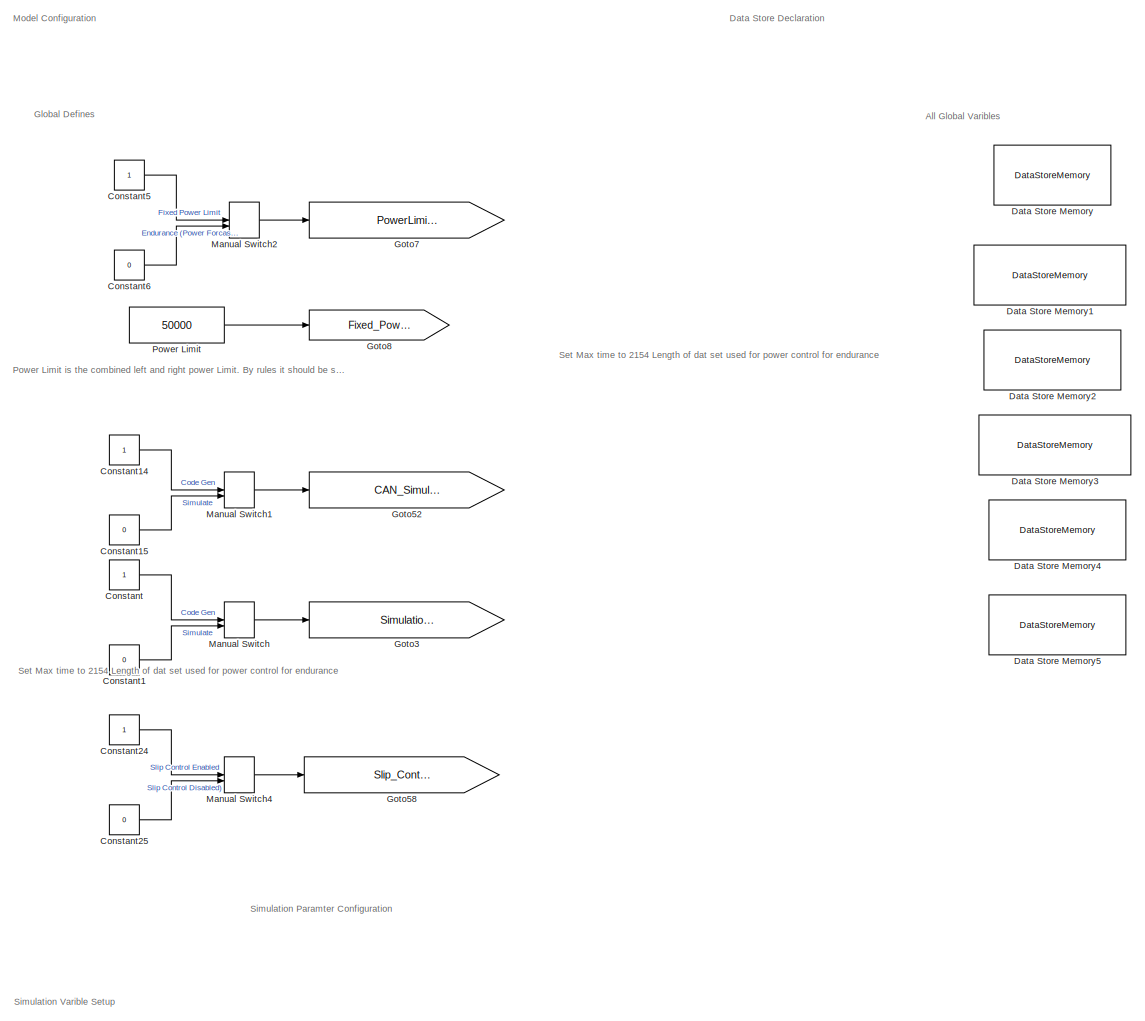
[diagram: root canvas - part 1/13, top left region]
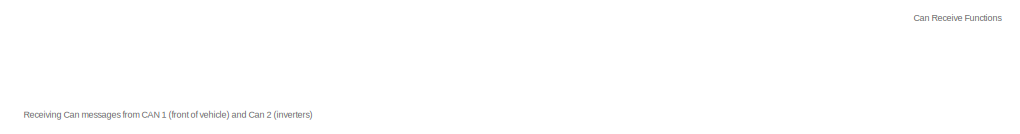
[diagram: root canvas - part 2/13, top center region]
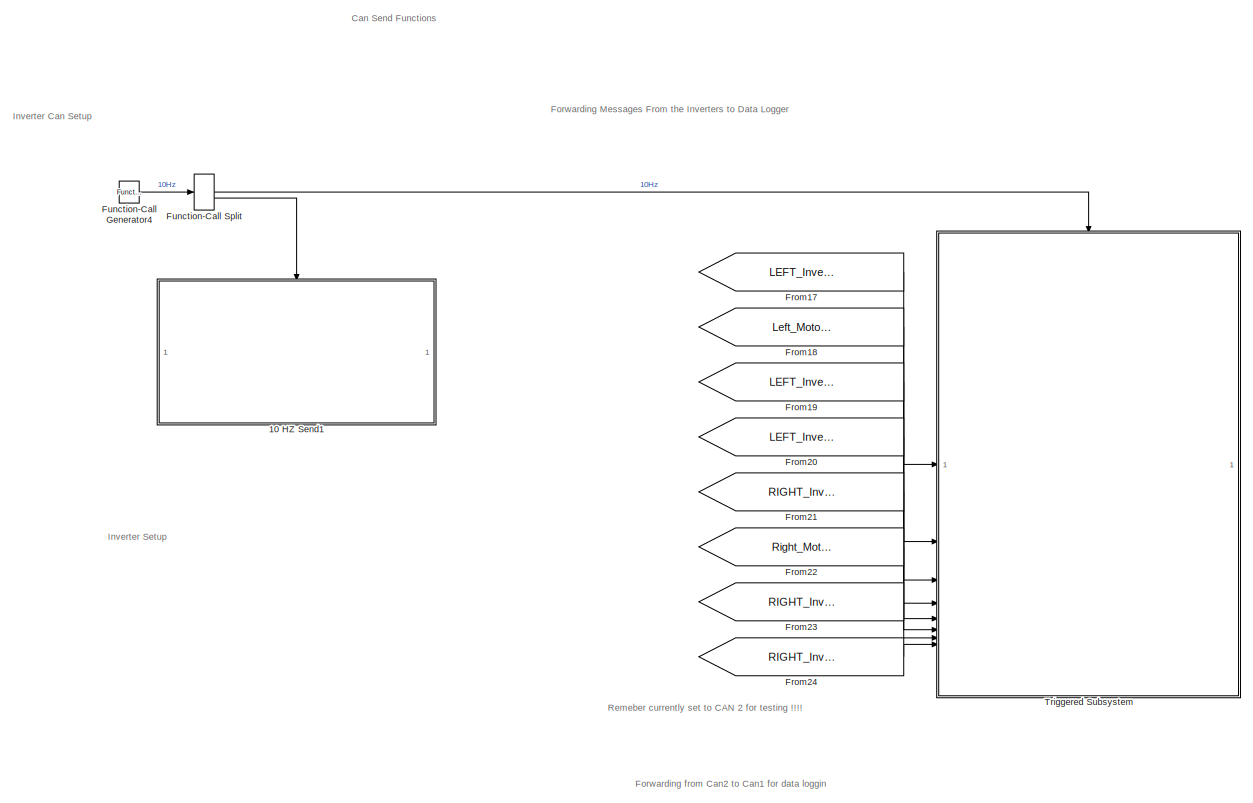
[diagram: root canvas - part 3/13, top right region]
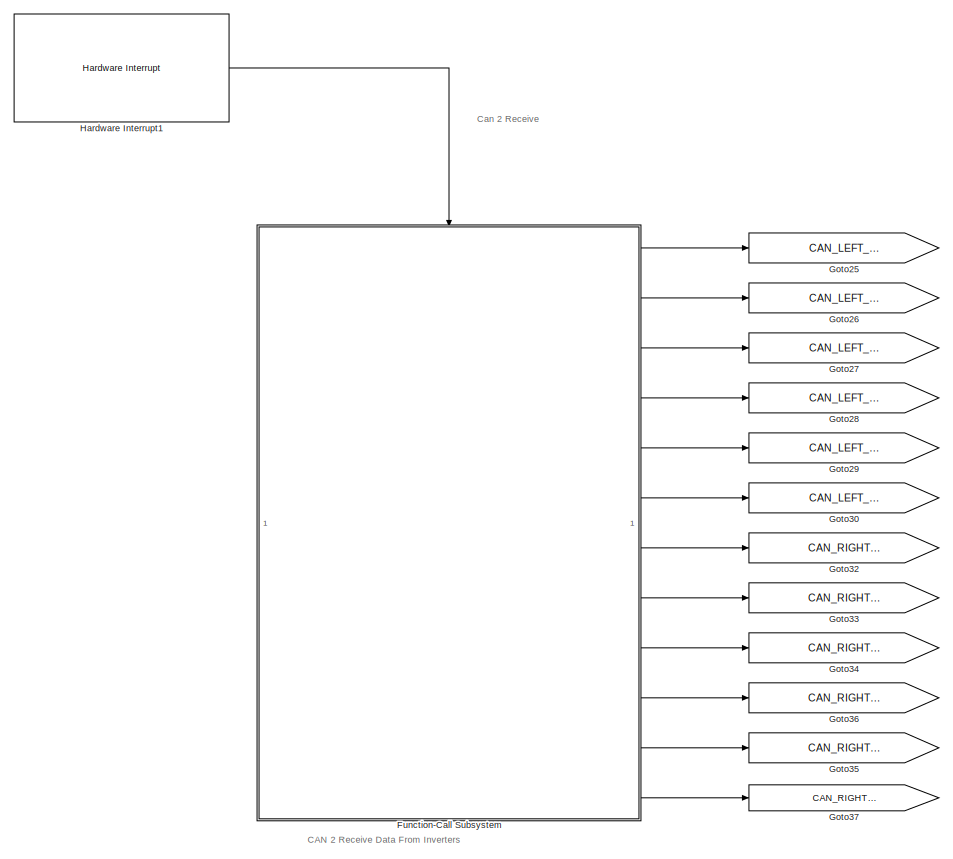
[diagram: root canvas - part 4/13, top center region]
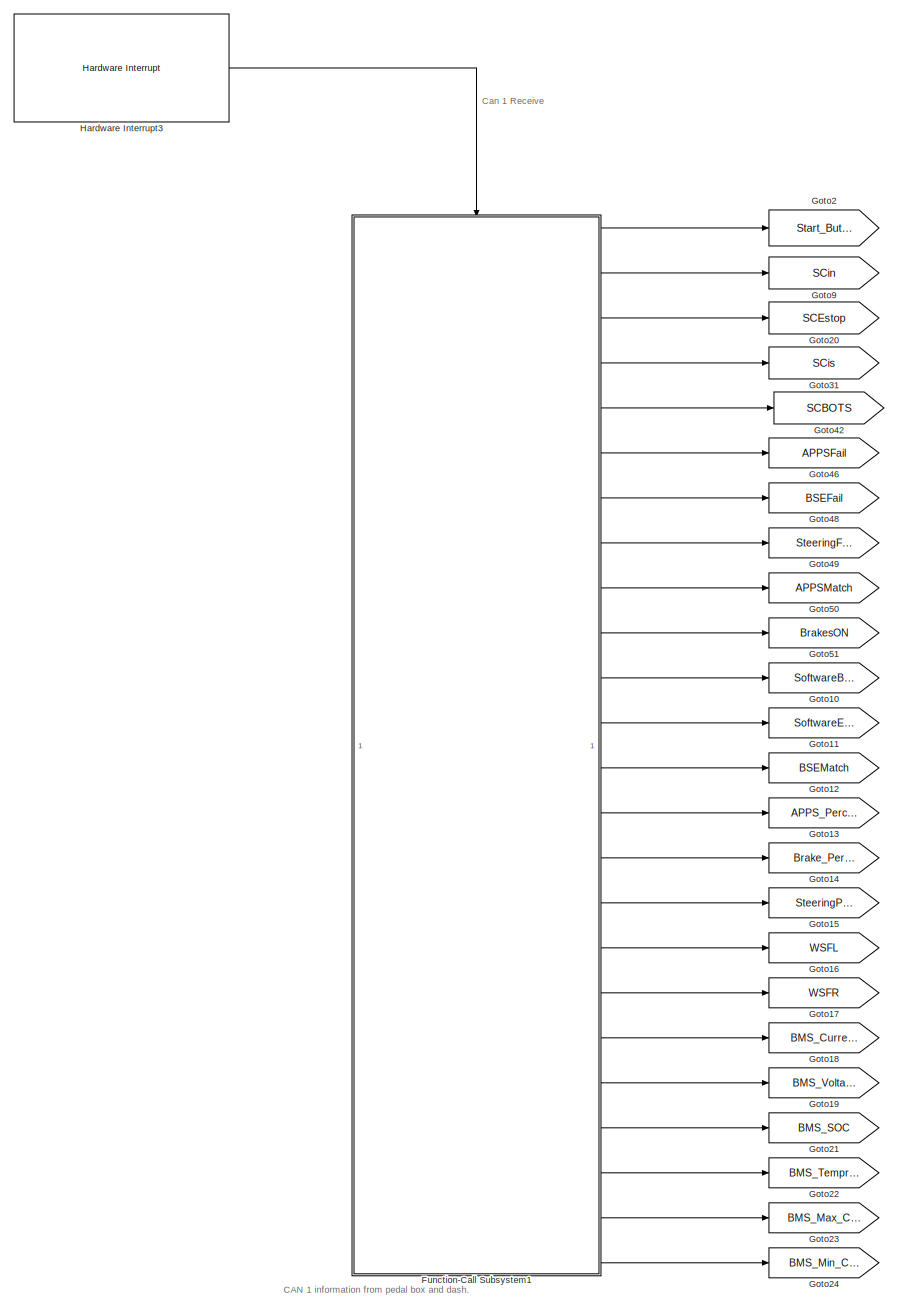
[diagram: root canvas - part 5/13, top center region]
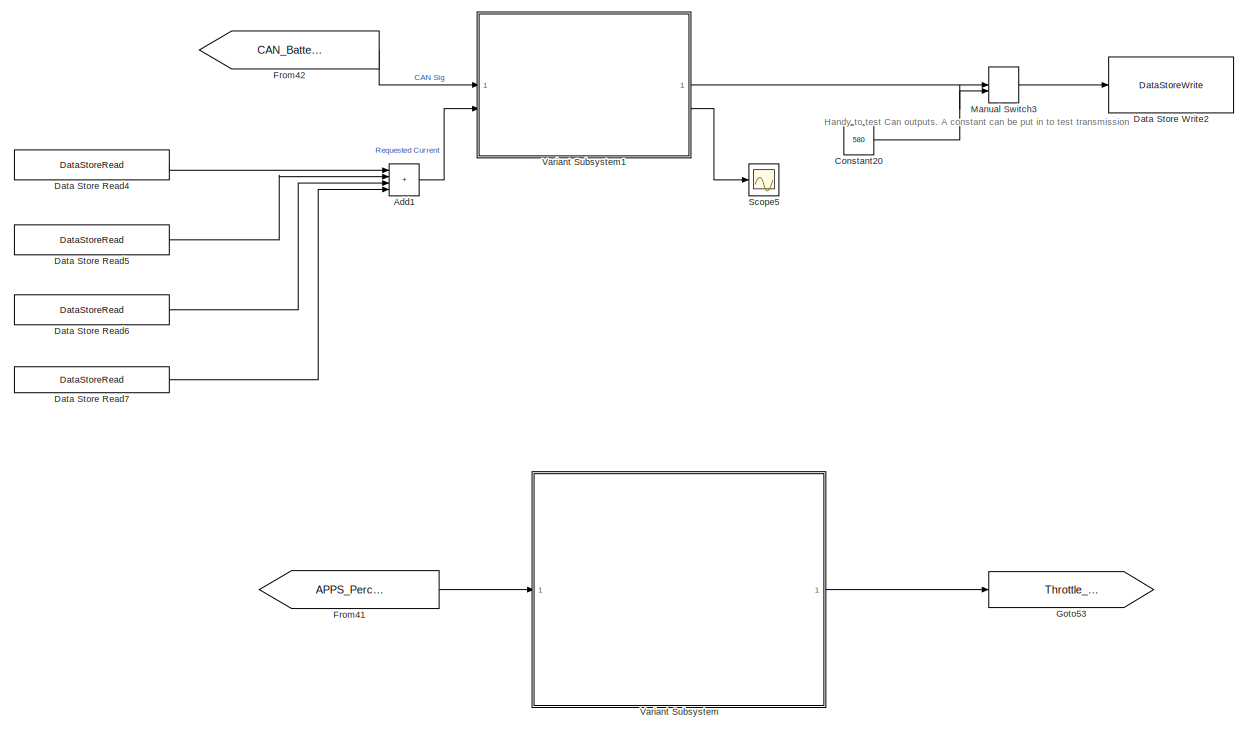
[diagram: root canvas - part 6/13, middle left region]
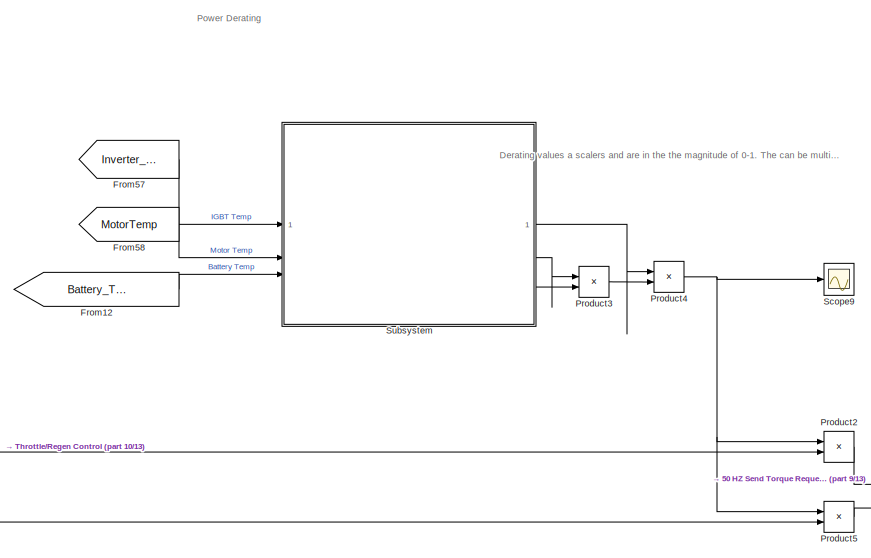
[diagram: root canvas - part 7/13, middle right region]
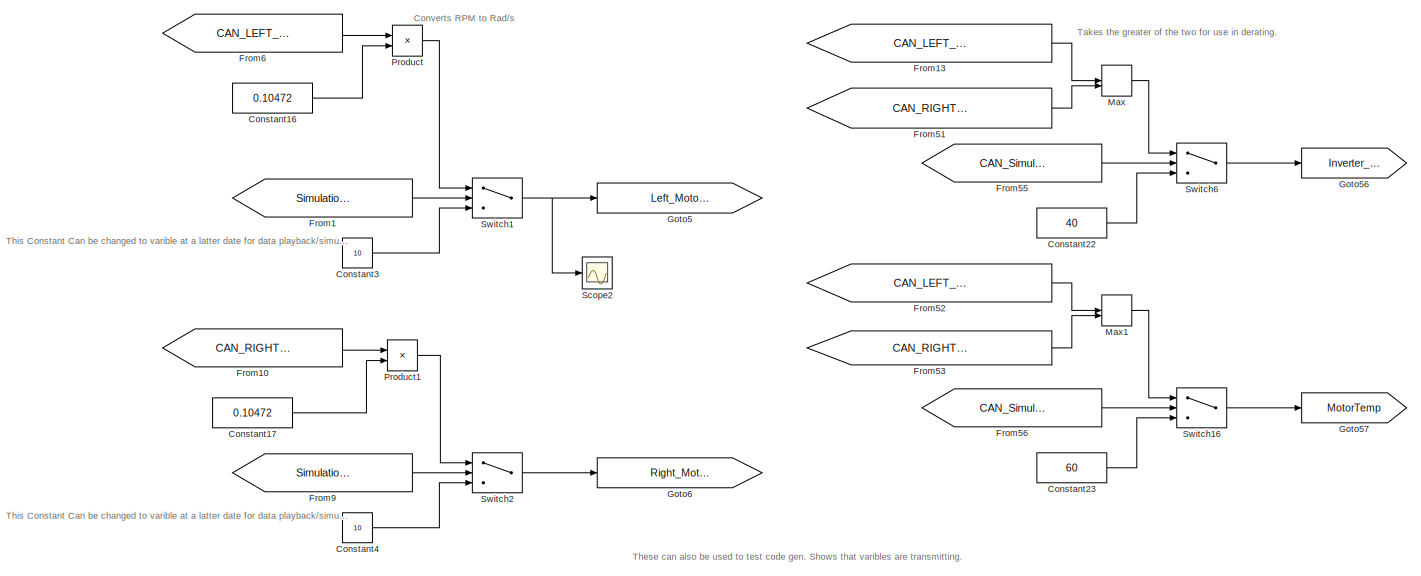
[diagram: root canvas - part 8/13, middle left region]
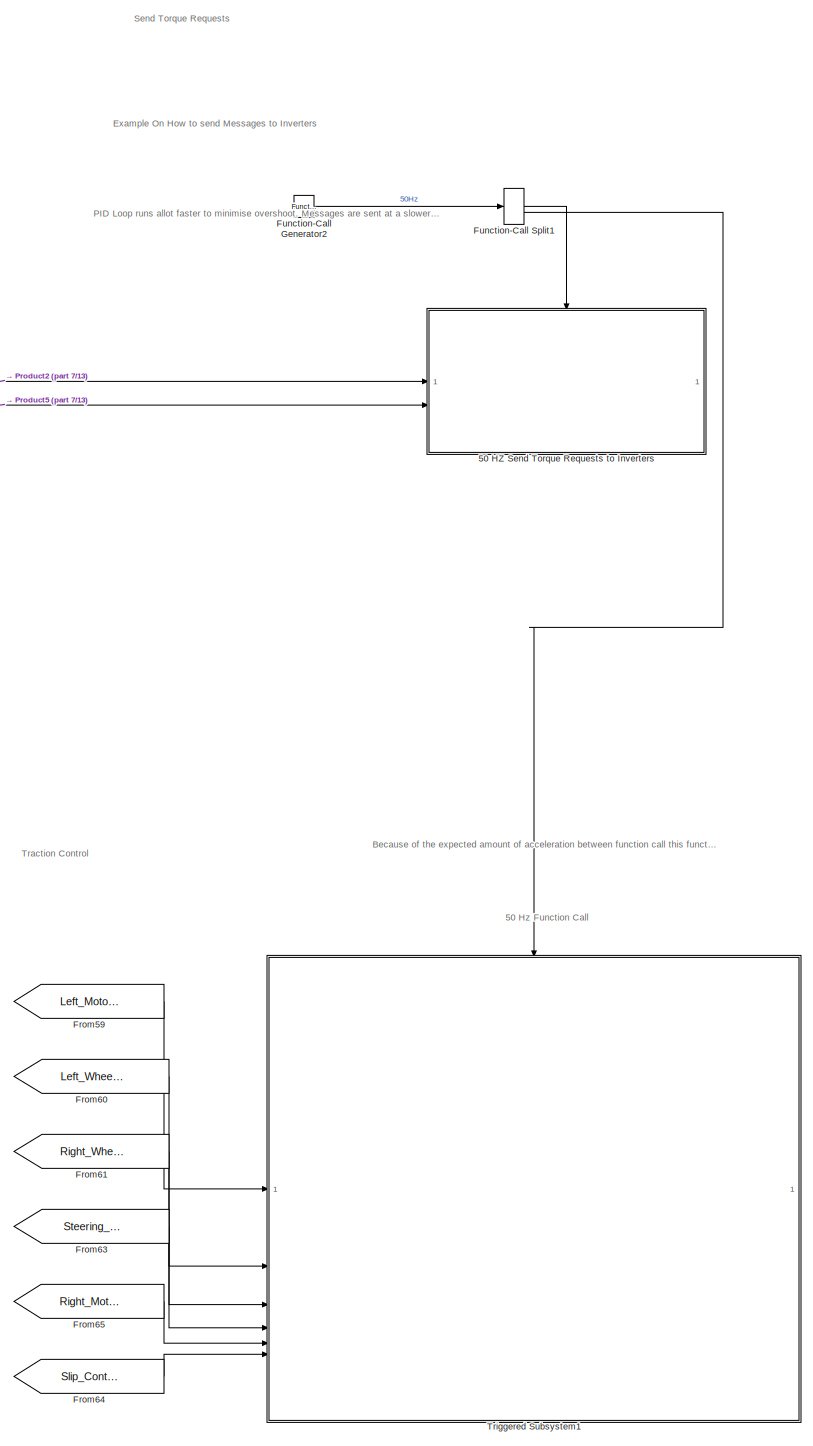
[diagram: root canvas - part 9/13, bottom right region]
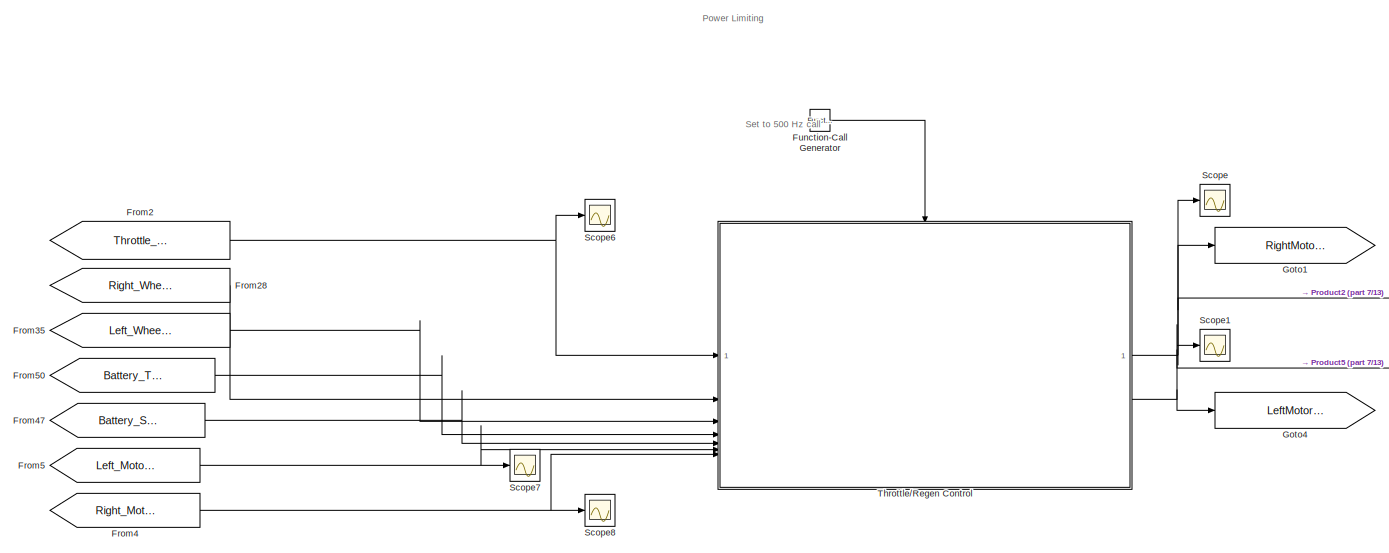
[diagram: root canvas - part 10/13, central region]
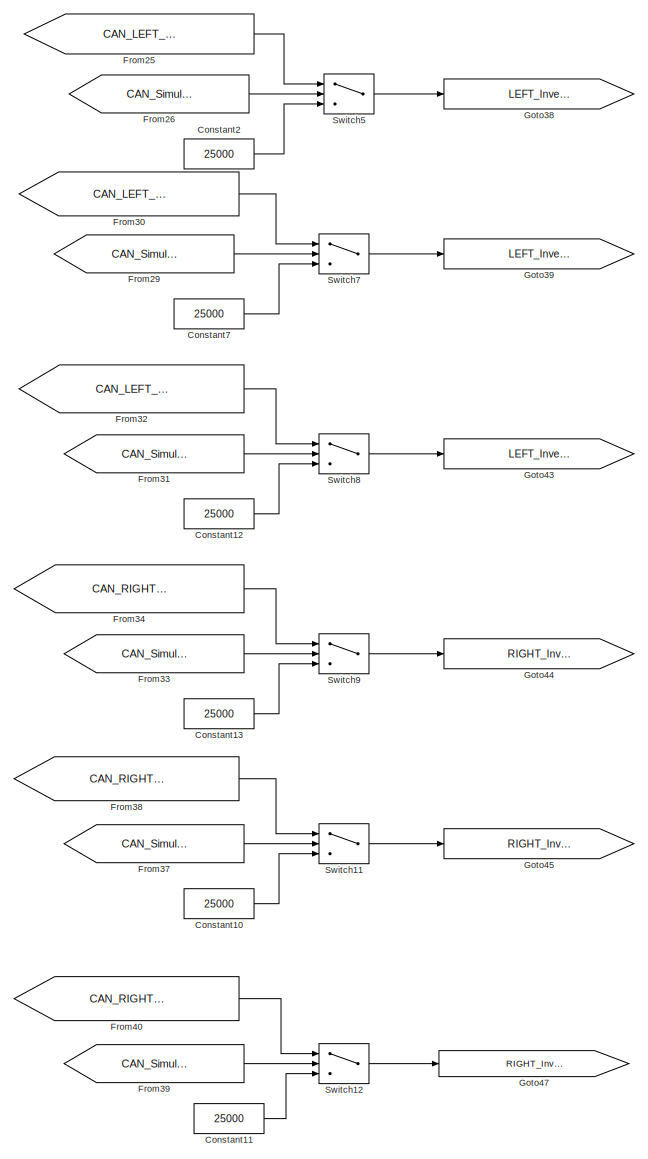
[diagram: root canvas - part 11/13, bottom left region]
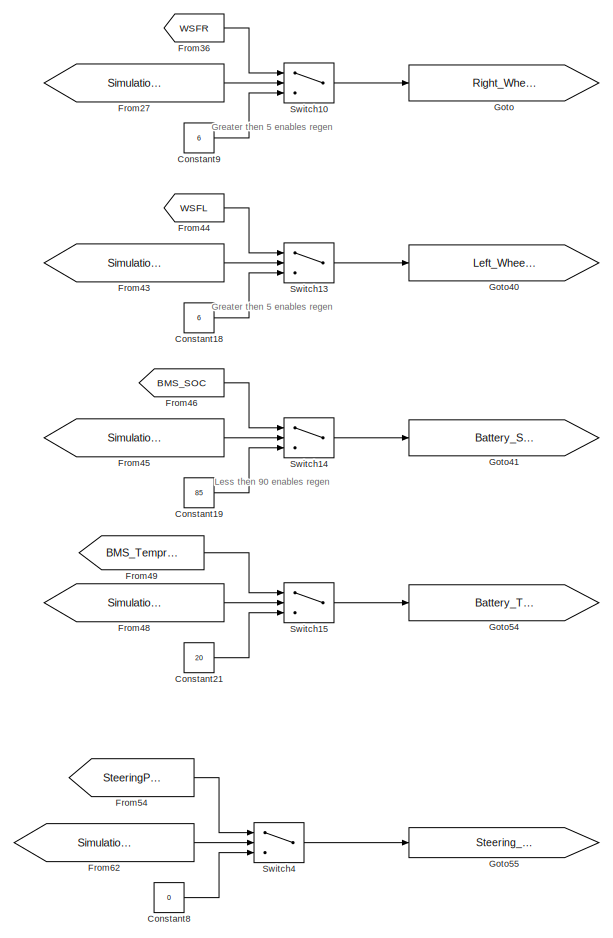
[diagram: root canvas - part 12/13, bottom left region]
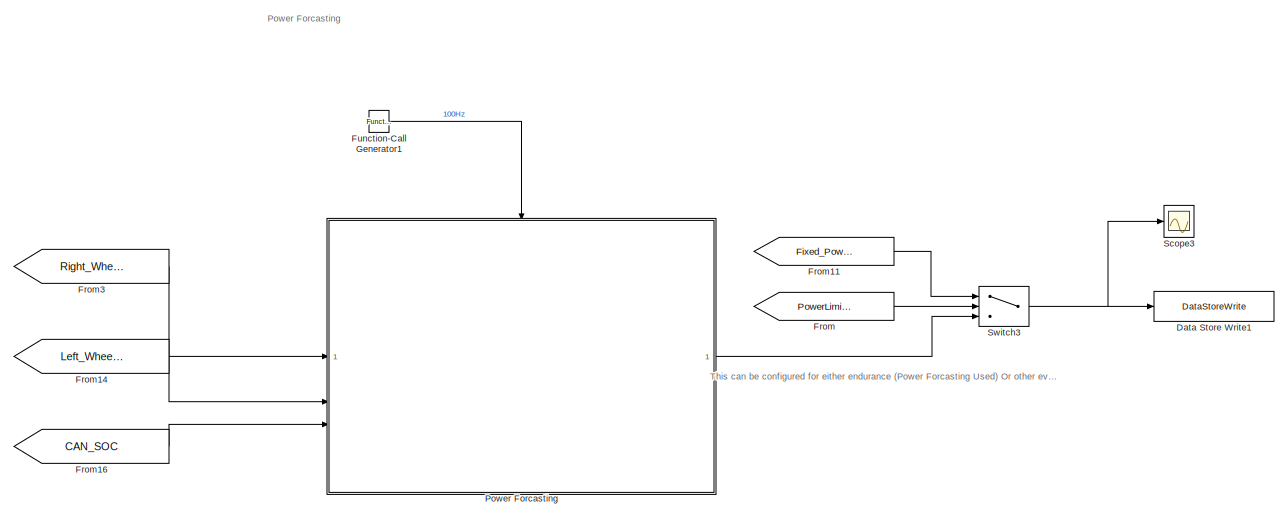
[diagram: root canvas - part 13/13, bottom center region]
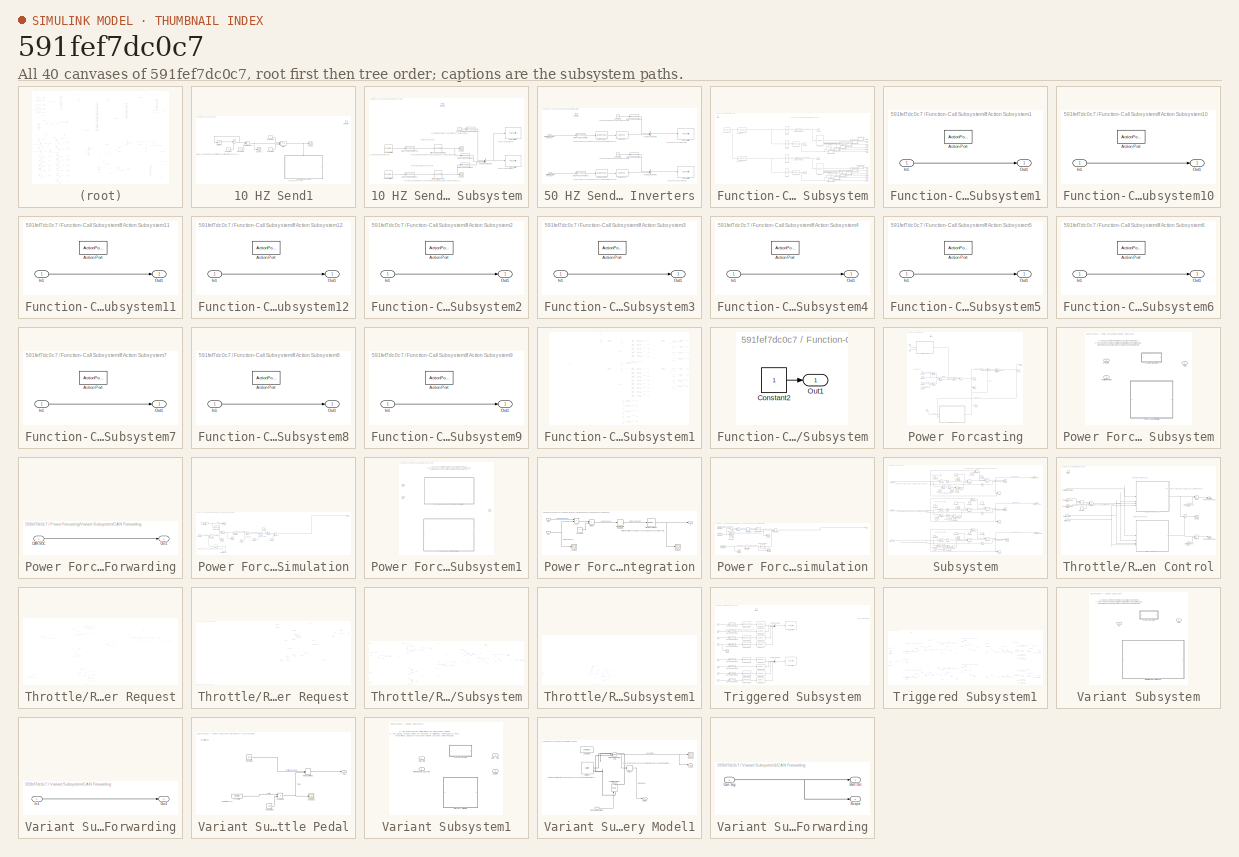
[diagram: thumbnail index - all 40 canvases of the model, root first then tree order]
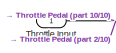
[diagram: Throttle/Regen Control/Left Side Power Request - part 1/10, top left region]
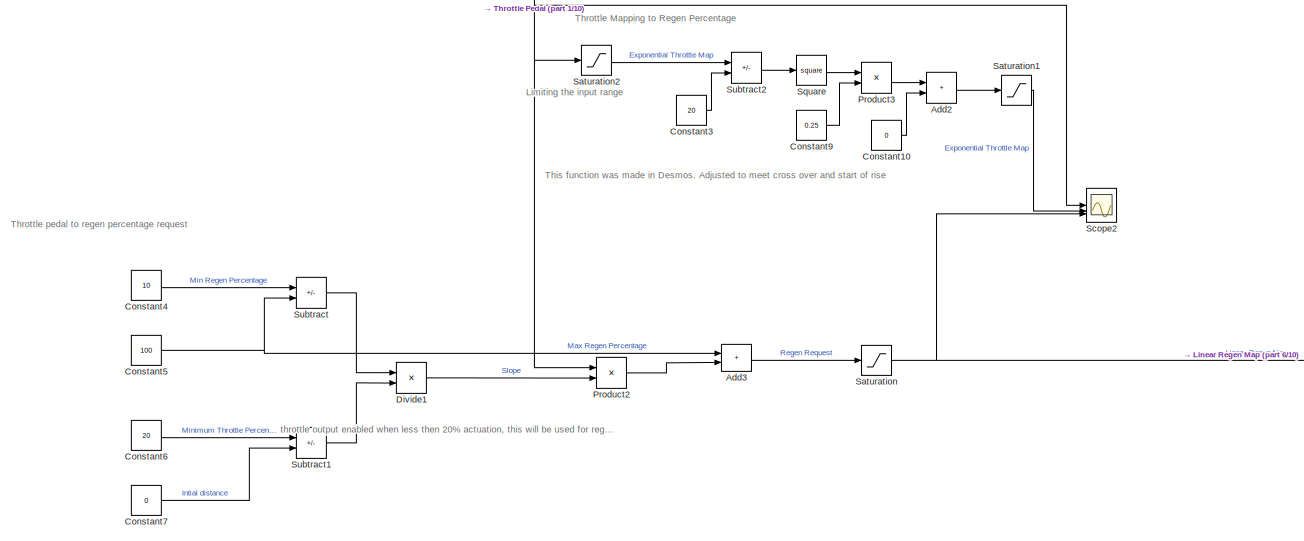
[diagram: Throttle/Regen Control/Left Side Power Request - part 2/10, top center region]
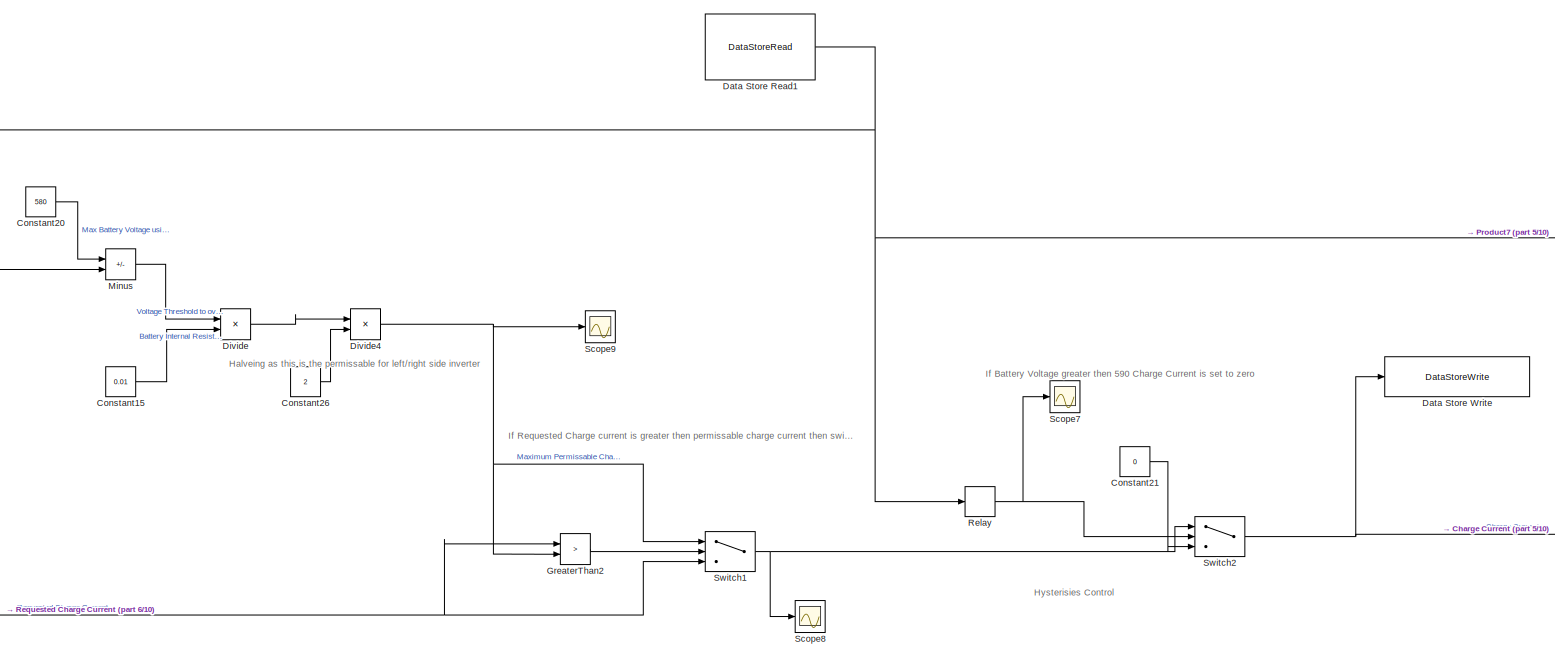
[diagram: Throttle/Regen Control/Left Side Power Request - part 3/10, top right region]
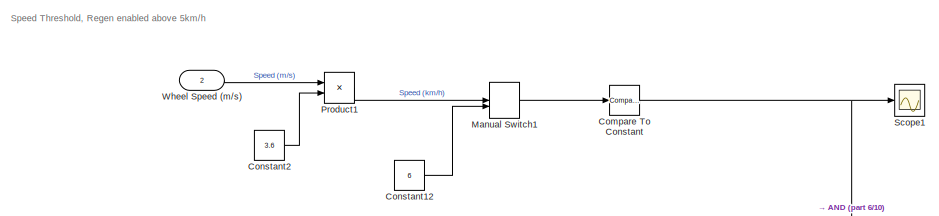
[diagram: Throttle/Regen Control/Left Side Power Request - part 4/10, top left region]
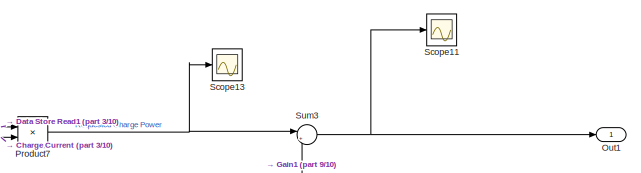
[diagram: Throttle/Regen Control/Left Side Power Request - part 5/10, top right region]
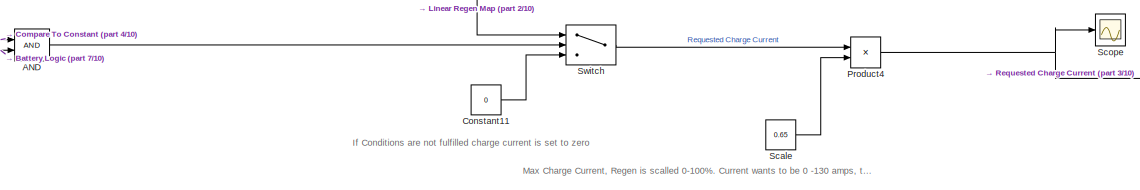
[diagram: Throttle/Regen Control/Left Side Power Request - part 6/10, central region]
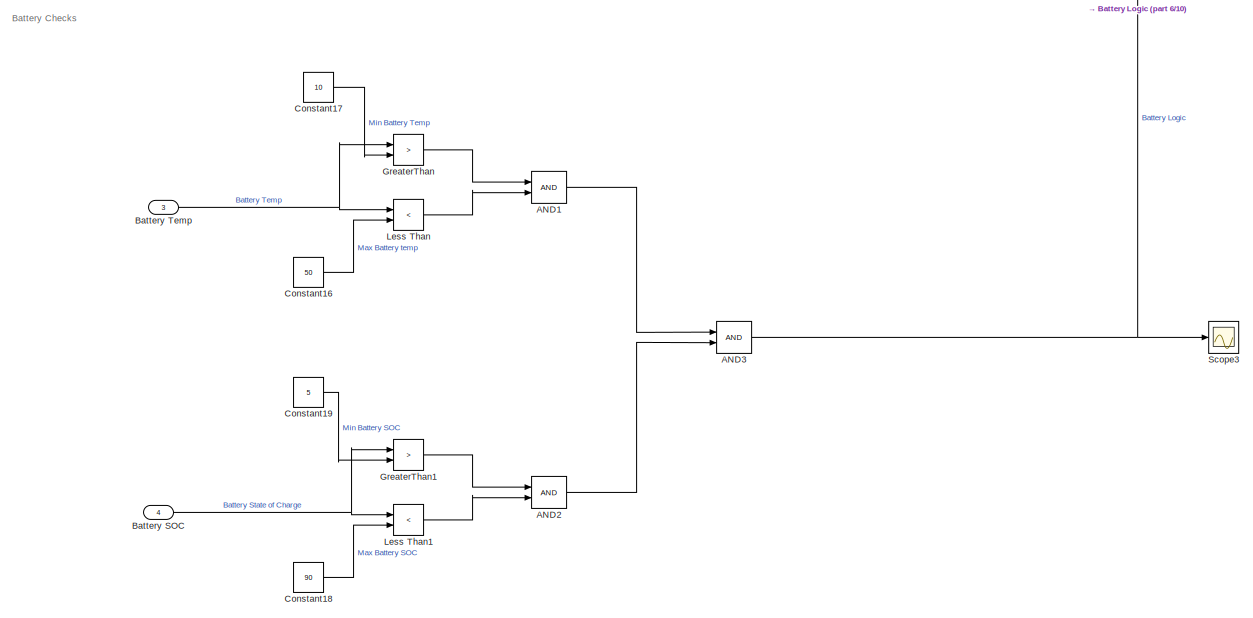
[diagram: Throttle/Regen Control/Left Side Power Request - part 7/10, central region]
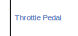
[diagram: Throttle/Regen Control/Left Side Power Request - part 8/10, middle left region]
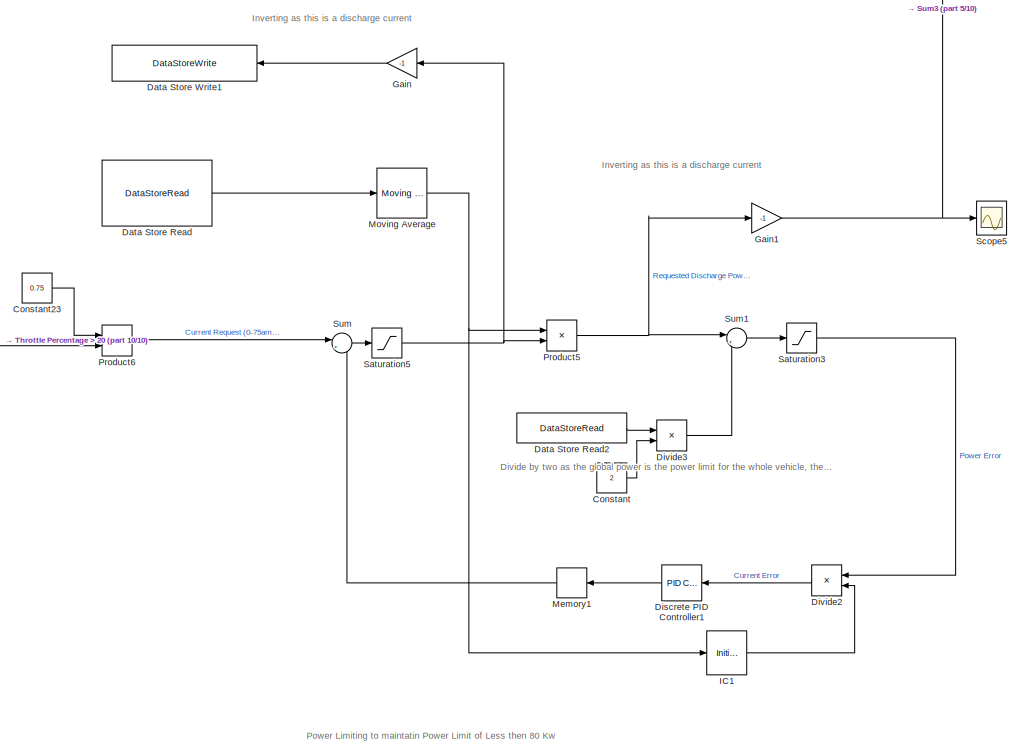
[diagram: Throttle/Regen Control/Left Side Power Request - part 9/10, bottom center region]
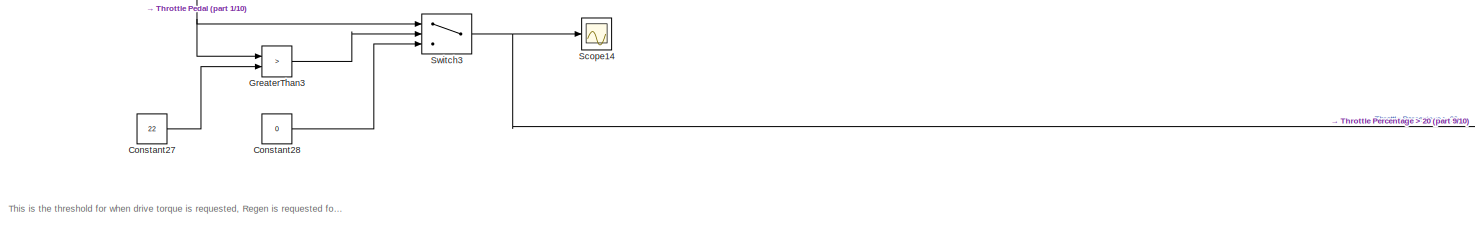
[diagram: Throttle/Regen Control/Left Side Power Request - part 10/10, bottom left region]
MODEL slx_591fef7dc0c7
KIND model
CONFIG AbsTol = auto
CONFIG EnableMultiTasking = on
CONFIG FixedStep = auto
CONFIG MaxStep = auto
CONFIG MinStep = auto
CONFIG RelTol = 1e-3
CONFIG SampleTimeConstraint = Unconstrained
CONFIG SolverName = FixedStepAuto
CONFIG StartTime = 0.0
CONFIG StopTime = 10
BLOCK [SubSystem] 10 HZ Send1
  TreatAsAtomicUnit = on
BLOCK [Constant] 10 HZ Send1/Constant
BLOCK [Constant] 10 HZ Send1/Constant1
  Value = 0
BLOCK [Constant] 10 HZ Send1/Constant2
BLOCK [Constant] 10 HZ Send1/Constant3
  Value = 12
BLOCK [SubSystem] 10 HZ Send1/Enabled Subsystem
  TreatAsAtomicUnit = on
BLOCK [Constant] 10 HZ Send1/Enabled Subsystem/Constant4
  Value = 61
BLOCK [Reference] 10 HZ Send1/Enabled Subsystem/Counter Limited  REF=simulink/Sources/Counter
Limited
  SourceBlock = simulink/Sources/Counter\nLimited
  SourceType = Counter Limited
BLOCK [Reference] 10 HZ Send1/Enabled Subsystem/Counter Limited1  REF=simulink/Sources/Counter
Limited
  SourceBlock = simulink/Sources/Counter\nLimited
  SourceType = Counter Limited
BLOCK [DataTypeConversion] 10 HZ Send1/Enabled Subsystem/Data Type Conversion1
  OutDataTypeStr = double
  RndMeth = Floor
  SaturateOnIntegerOverflow = off
BLOCK [DataTypeConversion] 10 HZ Send1/Enabled Subsystem/Data Type Conversion16
  OutDataTypeStr = double
  RndMeth = Floor
  SaturateOnIntegerOverflow = off
BLOCK [DataTypeConversion] 10 HZ Send1/Enabled Subsystem/Data Type Conversion2
  OutDataTypeStr = uint8
  RndMeth = Floor
  SaturateOnIntegerOverflow = off
BLOCK [DataTypeConversion] 10 HZ Send1/Enabled Subsystem/Data Type Conversion3
  OutDataTypeStr = uint8
  RndMeth = Floor
  SaturateOnIntegerOverflow = off
BLOCK [DataTypeConversion] 10 HZ Send1/Enabled Subsystem/Data Type Conversion4
  OutDataTypeStr = uint8
  RndMeth = Floor
  SaturateOnIntegerOverflow = off
BLOCK [LookupNDDirect] 10 HZ Send1/Enabled Subsystem/Direct Lookup Table (n-D)
  NumberOfTableDimensions = 1
  Table = [235 74 168 73 95 138]
BLOCK [LookupNDDirect] 10 HZ Send1/Enabled Subsystem/Direct Lookup Table (n-D)1
  NumberOfTableDimensions = 1
  Table = [235 74 168 73 95 138]
BLOCK [EnablePort] 10 HZ Send1/Enabled Subsystem/Enable
BLOCK [Reference] 10 HZ Send1/Enabled Subsystem/FDCAN Write2  REF=stm32blockslib/FDCAN Write
  LibrarySourceBlock = stm32l5xxblockslib/FDCAN Write
  SourceBlock = stm32blockslib/FDCAN Write
  SourceType = stm32cube.blocks.FDCANWrite
BLOCK [Reference] 10 HZ Send1/Enabled Subsystem/FDCAN Write3  REF=stm32blockslib/FDCAN Write
  LibrarySourceBlock = stm32l5xxblockslib/FDCAN Write
  SourceBlock = stm32blockslib/FDCAN Write
  SourceType = stm32cube.blocks.FDCANWrite
BLOCK [Scope] 10 HZ Send1/Enabled Subsystem/Scope2
  Floating = off
  NumInputPorts = 1
  ScopeSpecificationString = Simulink.scopes.TimeScopeBlockCfg('CurrentConfiguration', extmgr.ConfigurationSet(extmgr.Configuration('Core','General UI',true),extmgr.Configuration('Core','Source UI',true),extmgr.Configuration('Sources','WiredSimulink',true,'DataLoggingVariableName','ScopeData2'),extmgr.Configuration('Visuals','Time Domain',true,'SerializedDisplays',{struct('MinYLimReal','52.75','MaxYLimReal','255.25','YLabelRe...<+1459ch>
BLOCK [Scope] 10 HZ Send1/Enabled Subsystem/Scope3
  Floating = off
  NumInputPorts = 1
  ScopeSpecificationString = Simulink.scopes.TimeScopeBlockCfg('CurrentConfiguration', extmgr.ConfigurationSet(extmgr.Configuration('Core','General UI',true),extmgr.Configuration('Core','Source UI',true),extmgr.Configuration('Sources','WiredSimulink',true,'DataLoggingVariableName','ScopeData3'),extmgr.Configuration('Visuals','Time Domain',true,'SerializedDisplays',{struct('MinYLimReal','52.75','MaxYLimReal','255.25','YLabelRe...<+1450ch>
BLOCK [Concatenate] 10 HZ Send1/Enabled Subsystem/Vector Concatenate
  NumInputs = 3
BLOCK [RelationalOperator] 10 HZ Send1/GreaterThan
  InputSameDT = off
  Operator = >
  OutDataTypeStr = boolean
  RndMeth = Simplest
BLOCK [Scope] 10 HZ Send1/Scope
  Floating = off
  NumInputPorts = 1
  ScopeSpecificationString = Simulink.scopes.TimeScopeBlockCfg('CurrentConfiguration', extmgr.ConfigurationSet(extmgr.Configuration('Core','General UI',true),extmgr.Configuration('Core','Source UI',true),extmgr.Configuration('Sources','WiredSimulink',true,'DataLoggingVariableName','ScopeData2'),extmgr.Configuration('Visuals','Time Domain',true,'SerializedDisplays',{struct('MinYLimReal','-0.125','MaxYLimReal','1.125','YLabelRe...<+1442ch>
BLOCK [Scope] 10 HZ Send1/Scope1
  Floating = off
  NumInputPorts = 1
  ScopeSpecificationString = Simulink.scopes.TimeScopeBlockCfg('CurrentConfiguration', extmgr.ConfigurationSet(extmgr.Configuration('Core','General UI',true),extmgr.Configuration('Core','Source UI',true),extmgr.Configuration('Sources','WiredSimulink',true,'DataLoggingVariableName','ScopeData3'),extmgr.Configuration('Visuals','Time Domain',true,'SerializedDisplays',{struct('MinYLimReal','-0.125','MaxYLimReal','1.125','YLabelRe...<+1447ch>
BLOCK [Sum] 10 HZ Send1/Sum
  Inputs = |++
BLOCK [Switch] 10 HZ Send1/Switch
  Criteria = u2 > Threshold
  InputSameDT = off
  SaturateOnIntegerOverflow = off
BLOCK [UnitDelay] 10 HZ Send1/Unit Delay
  HasFrameUpgradeWarning = on
  SampleTime = -1
BLOCK [TriggerPort] 10 HZ Send1/function
  StatesWhenEnabling = held
  TriggerType = function-call
  VariantControl = (inherit)
BLOCK [SubSystem] 50 HZ Send Torque Requests to Inverters
  TreatAsAtomicUnit = on
BLOCK [Reference] 50 HZ Send Torque Requests to Inverters/Byte Pack  REF=stmutilitieslib/Byte Pack
  SourceBlock = stmutilitieslib/Byte Pack
  SourceType = Byte pack
BLOCK [Reference] 50 HZ Send Torque Requests to Inverters/Byte Pack1  REF=stmutilitieslib/Byte Pack
  SourceBlock = stmutilitieslib/Byte Pack
  SourceType = Byte pack
BLOCK [Reference] 50 HZ Send Torque Requests to Inverters/Byte Reversal  REF=stmutilitieslib/Byte Reversal
  SourceBlock = stmutilitieslib/Byte Reversal
  SourceType = Byte Reversal
BLOCK [Reference] 50 HZ Send Torque Requests to Inverters/Byte Reversal1  REF=stmutilitieslib/Byte Reversal
  SourceBlock = stmutilitieslib/Byte Reversal
  SourceType = Byte Reversal
BLOCK [Constant] 50 HZ Send Torque Requests to Inverters/Constant1
  Value = 144
BLOCK [Constant] 50 HZ Send Torque Requests to Inverters/Constant3
  Value = 144
BLOCK [DataTypeConversion] 50 HZ Send Torque Requests to Inverters/Data Type Conversion
  OutDataTypeStr = int16
  RndMeth = Floor
  SaturateOnIntegerOverflow = off
BLOCK [DataTypeConversion] 50 HZ Send Torque Requests to Inverters/Data Type Conversion1
  OutDataTypeStr = uint8
  RndMeth = Floor
  SaturateOnIntegerOverflow = off
BLOCK [DataTypeConversion] 50 HZ Send Torque Requests to Inverters/Data Type Conversion2
  OutDataTypeStr = int16
  RndMeth = Floor
  SaturateOnIntegerOverflow = off
BLOCK [DataTypeConversion] 50 HZ Send Torque Requests to Inverters/Data Type Conversion3
  OutDataTypeStr = uint8
  RndMeth = Floor
  SaturateOnIntegerOverflow = off
BLOCK [Reference] 50 HZ Send Torque Requests to Inverters/FDCAN Write1  REF=stm32blockslib/FDCAN Write
  LibrarySourceBlock = stm32l5xxblockslib/FDCAN Write
  SourceBlock = stm32blockslib/FDCAN Write
  SourceType = stm32cube.blocks.FDCANWrite
BLOCK [Reference] 50 HZ Send Torque Requests to Inverters/FDCAN Write3  REF=stm32blockslib/FDCAN Write
  LibrarySourceBlock = stm32l5xxblockslib/FDCAN Write
  SourceBlock = stm32blockslib/FDCAN Write
  SourceType = stm32cube.blocks.FDCANWrite
BLOCK [Inport] 50 HZ Send Torque Requests to Inverters/Left Motor Torque Request
  Port = 2
BLOCK [Inport] 50 HZ Send Torque Requests to Inverters/Right Motor Torque Request
BLOCK [Concatenate] 50 HZ Send Torque Requests to Inverters/Vector Concatenate
BLOCK [Concatenate] 50 HZ Send Torque Requests to Inverters/Vector Concatenate1
BLOCK [TriggerPort] 50 HZ Send Torque Requests to Inverters/function
  StatesWhenEnabling = held
  TriggerType = function-call
  VariantControl = (inherit)
BLOCK [Sum] Add1
  IconShape = rectangular
  Inputs = ++++
BLOCK [Constant] Constant
BLOCK [Constant] Constant1
  Value = 0
BLOCK [Constant] Constant10
  Value = 25000
BLOCK [Constant] Constant11
  Value = 25000
BLOCK [Constant] Constant12
  Value = 25000
BLOCK [Constant] Constant13
  Value = 25000
BLOCK [Constant] Constant14
BLOCK [Constant] Constant15
  Value = 0
BLOCK [Constant] Constant16
  Value = 0.10472
BLOCK [Constant] Constant17
  Value = 0.10472
BLOCK [Constant] Constant18
  Value = 6
BLOCK [Constant] Constant19
  Value = 85
BLOCK [Constant] Constant2
  Value = 25000
BLOCK [Constant] Constant20
  Value = 580
BLOCK [Constant] Constant21
  Value = 20
BLOCK [Constant] Constant22
  Value = 40
BLOCK [Constant] Constant23
  Value = 60
BLOCK [Constant] Constant24
BLOCK [Constant] Constant25
  Value = 0
BLOCK [Constant] Constant3
  Value = 10
BLOCK [Constant] Constant4
  Value = 10
BLOCK [Constant] Constant5
BLOCK [Constant] Constant6
  Value = 0
BLOCK [Constant] Constant7
  Value = 25000
BLOCK [Constant] Constant8
  Value = 0
BLOCK [Constant] Constant9
  Value = 6
BLOCK [DataStoreMemory] Data Store Memory
  DataStoreName = Battery_Voltage
  ShowAdditionalParam = off
  WriteAfterWriteMsg = warning
BLOCK [DataStoreMemory] Data Store Memory1
  DataStoreName = Right_Sim_Discharge_Current
  ShowAdditionalParam = off
  WriteAfterWriteMsg = warning
BLOCK [DataStoreMemory] Data Store Memory2
  DataStoreName = Right_Sim_Regen_Current
  ShowAdditionalParam = off
  WriteAfterWriteMsg = warning
BLOCK [DataStoreMemory] Data Store Memory3
  DataStoreName = Left_Sim_Discharge_Current
  ShowAdditionalParam = off
  WriteAfterWriteMsg = warning
BLOCK [DataStoreMemory] Data Store Memory4
  DataStoreName = Left_Sim_Regen_Current
  ShowAdditionalParam = off
  WriteAfterWriteMsg = warning
BLOCK [DataStoreMemory] Data Store Memory5
  DataStoreName = Global_Power_Limit
  ShowAdditionalParam = off
  WriteAfterWriteMsg = warning
BLOCK [DataStoreRead] Data Store Read4
  DataStoreName = Left_Sim_Discharge_Current
  IndexOptions = Index vector (dialog)
  Indices = 1
  OutputSizes = 1
BLOCK [DataStoreRead] Data Store Read5
  DataStoreName = Left_Sim_Regen_Current
  IndexOptions = Index vector (dialog)
  Indices = 1
  OutputSizes = 1
BLOCK [DataStoreRead] Data Store Read6
  DataStoreName = Right_Sim_Discharge_Current
  IndexOptions = Index vector (dialog)
  Indices = 1
  OutputSizes = 1
BLOCK [DataStoreRead] Data Store Read7
  DataStoreName = Right_Sim_Regen_Current
  IndexOptions = Index vector (dialog)
  Indices = 1
  OutputSizes = 1
BLOCK [DataStoreWrite] Data Store Write1
  DataStoreName = Global_Power_Limit
  IndexOptions = Index vector (dialog)
  Indices = 1
  OutputSizes = 1
BLOCK [DataStoreWrite] Data Store Write2
  DataStoreName = Battery_Voltage
  IndexOptions = Index vector (dialog)
  Indices = 1
  OutputSizes = 1
BLOCK [From] From
  GotoTag = PowerLimit_Enable
BLOCK [From] From1
  GotoTag = Simulation_Enable
BLOCK [From] From10
  GotoTag = CAN_RIGHT_Inverter_Motor_Speed
BLOCK [From] From11
  GotoTag = Fixed_Power_Limit
BLOCK [From] From12
  GotoTag = Battery_Temprature
BLOCK [From] From13
  GotoTag = CAN_LEFT_Inverter_IGBT_temp
BLOCK [From] From14
  GotoTag = Left_Wheel_Speed_Ms
BLOCK [From] From16
  GotoTag = CAN_SOC
BLOCK [From] From17
  GotoTag = LEFT_Inverter_Bus_Voltage
BLOCK [From] From18
  GotoTag = Left_Motor_Speed_Rads
BLOCK [From] From19
  GotoTag = LEFT_Inverter_Motor_Current
BLOCK [From] From2
  GotoTag = Throttle_Percent_Global
BLOCK [From] From20
  GotoTag = LEFT_Inverter_Motor_Voltage
BLOCK [From] From21
  GotoTag = RIGHT_Inverter_Bus_Voltage
BLOCK [From] From22
  GotoTag = Right_Motor_Speed_Rads
BLOCK [From] From23
  GotoTag = RIGHT_Inverter_Motor_Current
BLOCK [From] From24
  GotoTag = RIGHT_Inverter_Motor_Voltage
BLOCK [From] From25
  GotoTag = CAN_LEFT_Inverter_Bus_Voltage
BLOCK [From] From26
  GotoTag = CAN_Simulation_Enable
BLOCK [From] From27
  GotoTag = Simulation_Enable
BLOCK [From] From28
  GotoTag = Right_Wheel_Speed_Ms
BLOCK [From] From29
  GotoTag = CAN_Simulation_Enable
BLOCK [From] From3
  GotoTag = Right_Wheel_Speed_Ms
BLOCK [From] From30
  GotoTag = CAN_LEFT_Inverter_Motor_Current
BLOCK [From] From31
  GotoTag = CAN_Simulation_Enable
BLOCK [From] From32
  GotoTag = CAN_LEFT_Inverter_Motor_Voltage
BLOCK [From] From33
  GotoTag = CAN_Simulation_Enable
BLOCK [From] From34
  GotoTag = CAN_RIGHT_Inverter_Bus_Voltage
BLOCK [From] From35
  GotoTag = Left_Wheel_Speed_Ms
BLOCK [From] From36
  GotoTag = WSFR
BLOCK [From] From37
  GotoTag = CAN_Simulation_Enable
BLOCK [From] From38
  GotoTag = CAN_RIGHT_Inverter_Motor_Current
BLOCK [From] From39
  GotoTag = CAN_Simulation_Enable
BLOCK [From] From4
  GotoTag = Right_Motor_Speed_Rads
BLOCK [From] From40
  GotoTag = CAN_RIGHT_Inverter_Motor_Voltage
BLOCK [From] From41
  GotoTag = APPS_Percent
BLOCK [From] From42
  GotoTag = CAN_Battery_Voltage
BLOCK [From] From43
  GotoTag = Simulation_Enable
BLOCK [From] From44
  GotoTag = WSFL
BLOCK [From] From45
  GotoTag = Simulation_Enable
BLOCK [From] From46
  GotoTag = BMS_SOC
BLOCK [From] From47
  GotoTag = Battery_SOC
BLOCK [From] From48
  GotoTag = Simulation_Enable
BLOCK [From] From49
  GotoTag = BMS_Temprature
BLOCK [From] From5
  GotoTag = Left_Motor_Speed_Rads
BLOCK [From] From50
  GotoTag = Battery_Temprature
BLOCK [From] From51
  GotoTag = CAN_RIGHT_Inverter_IGBT_temp
BLOCK [From] From52
  GotoTag = CAN_LEFT_Inverter_Motor_Temp
BLOCK [From] From53
  GotoTag = CAN_RIGHT_Inverter_Motor_Temp
BLOCK [From] From54
  GotoTag = SteeringPercent
BLOCK [From] From55
  GotoTag = CAN_Simulation_Enable
BLOCK [From] From56
  GotoTag = CAN_Simulation_Enable
BLOCK [From] From57
  GotoTag = Inverter_Temp
BLOCK [From] From58
  GotoTag = MotorTemp
BLOCK [From] From59
  GotoTag = Left_Motor_Speed_Rads
BLOCK [From] From6
  GotoTag = CAN_LEFT_Inverter_Motor_Speed
BLOCK [From] From60
  GotoTag = Left_Wheel_Speed_Ms
BLOCK [From] From61
  GotoTag = Right_Wheel_Speed_Ms
BLOCK [From] From62
  GotoTag = Simulation_Enable
BLOCK [From] From63
  GotoTag = Steering_Angle
BLOCK [From] From64
  GotoTag = Slip_Control_Enable
BLOCK [From] From65
  GotoTag = Right_Motor_Speed_Rads
BLOCK [From] From9
  GotoTag = Simulation_Enable
BLOCK [Reference] Function-Call Generator  REF=simulink/Ports &
Subsystems/Function-Call
Generator
  SourceBlock = simulink/Ports &\nSubsystems/Function-Call\nGenerator
  SourceType = Function-Call Generator
BLOCK [Reference] Function-Call Generator1  REF=simulink/Ports &
Subsystems/Function-Call
Generator
  SourceBlock = simulink/Ports &\nSubsystems/Function-Call\nGenerator
  SourceType = Function-Call Generator
BLOCK [Reference] Function-Call Generator2  REF=simulink/Ports &
Subsystems/Function-Call
Generator
  SourceBlock = simulink/Ports &\nSubsystems/Function-Call\nGenerator
  SourceType = Function-Call Generator
BLOCK [Reference] Function-Call Generator4  REF=simulink/Ports &
Subsystems/Function-Call
Generator
  SourceBlock = simulink/Ports &\nSubsystems/Function-Call\nGenerator
  SourceType = Function-Call Generator
BLOCK [FunctionCallSplit] Function-Call Split
  IconShape = distinctive
  NumOutputPorts = 2
  OutputPortLayout = default
BLOCK [FunctionCallSplit] Function-Call Split1
  IconShape = distinctive
  NumOutputPorts = 2
BLOCK [SubSystem] Function-Call Subsystem
  TreatAsAtomicUnit = on
BLOCK [Reference] Function-Call Subsystem/Byte Unpack  REF=stmutilitieslib/Byte Unpack
  SourceBlock = stmutilitieslib/Byte Unpack
  SourceType = Byte Unpack
BLOCK [Reference] Function-Call Subsystem/Byte Unpack1  REF=stmutilitieslib/Byte Unpack
  SourceBlock = stmutilitieslib/Byte Unpack
  SourceType = Byte Unpack
BLOCK [Reference] Function-Call Subsystem/CAN FD Unpack1  REF=canfdmsglib/CAN FD Unpack
  LibrarySourceBlock = stmutilitieslib/CAN FD Unpack
  SourceBlock = canfdmsglib/CAN FD Unpack
  SourceType = CAN FD Unpack
BLOCK [Reference] Function-Call Subsystem/CAN FD Unpack2  REF=canfdmsglib/CAN FD Unpack
  LibrarySourceBlock = stmutilitieslib/CAN FD Unpack
  SourceBlock = canfdmsglib/CAN FD Unpack
  SourceType = CAN FD Unpack
BLOCK [DataTypeConversion] Function-Call Subsystem/Data Type Conversion1
  OutDataTypeStr = double
  RndMeth = Floor
  SaturateOnIntegerOverflow = off
BLOCK [DataTypeConversion] Function-Call Subsystem/Data Type Conversion3
  OutDataTypeStr = double
  RndMeth = Floor
  SaturateOnIntegerOverflow = off
BLOCK [Reference] Function-Call Subsystem/FDCAN Read1  REF=stm32blockslib/FDCAN Read
  LibrarySourceBlock = stm32l5xxblockslib/FDCAN Read
  SourceBlock = stm32blockslib/FDCAN Read
  SourceType = stm32cube.blocks.FDCANRead
BLOCK [SubSystem] Function-Call Subsystem/If Action Subsystem1
  TreatAsAtomicUnit = on
BLOCK [ActionPort] Function-Call Subsystem/If Action Subsystem1/Action Port
  ActionPortLabel = case [ 138 ]:
BLOCK [Inport] Function-Call Subsystem/If Action Subsystem1/In1
BLOCK [Outport] Function-Call Subsystem/If Action Subsystem1/Out1
BLOCK [SubSystem] Function-Call Subsystem/If Action Subsystem10
  TreatAsAtomicUnit = on
BLOCK [ActionPort] Function-Call Subsystem/If Action Subsystem10/Action Port
  ActionPortLabel = case [ 168 ]:
BLOCK [Inport] Function-Call Subsystem/If Action Subsystem10/In1
BLOCK [Outport] Function-Call Subsystem/If Action Subsystem10/Out1
BLOCK [SubSystem] Function-Call Subsystem/If Action Subsystem11
  TreatAsAtomicUnit = on
BLOCK [ActionPort] Function-Call Subsystem/If Action Subsystem11/Action Port
  ActionPortLabel = case [ 74 ]:
BLOCK [Inport] Function-Call Subsystem/If Action Subsystem11/In1
BLOCK [Outport] Function-Call Subsystem/If Action Subsystem11/Out1
BLOCK [SubSystem] Function-Call Subsystem/If Action Subsystem12
  TreatAsAtomicUnit = on
BLOCK [ActionPort] Function-Call Subsystem/If Action Subsystem12/Action Port
  ActionPortLabel = case [ 235 ]:
BLOCK [Inport] Function-Call Subsystem/If Action Subsystem12/In1
BLOCK [Outport] Function-Call Subsystem/If Action Subsystem12/Out1
BLOCK [SubSystem] Function-Call Subsystem/If Action Subsystem2
  TreatAsAtomicUnit = on
BLOCK [ActionPort] Function-Call Subsystem/If Action Subsystem2/Action Port
  ActionPortLabel = case [ 95 ]:
BLOCK [Inport] Function-Call Subsystem/If Action Subsystem2/In1
BLOCK [Outport] Function-Call Subsystem/If Action Subsystem2/Out1
BLOCK [SubSystem] Function-Call Subsystem/If Action Subsystem3
  TreatAsAtomicUnit = on
BLOCK [ActionPort] Function-Call Subsystem/If Action Subsystem3/Action Port
  ActionPortLabel = case [ 73 ]:
BLOCK [Inport] Function-Call Subsystem/If Action Subsystem3/In1
BLOCK [Outport] Function-Call Subsystem/If Action Subsystem3/Out1
BLOCK [SubSystem] Function-Call Subsystem/If Action Subsystem4
  TreatAsAtomicUnit = on
BLOCK [ActionPort] Function-Call Subsystem/If Action Subsystem4/Action Port
  ActionPortLabel = case [ 168 ]:
BLOCK [Inport] Function-Call Subsystem/If Action Subsystem4/In1
BLOCK [Outport] Function-Call Subsystem/If Action Subsystem4/Out1
BLOCK [SubSystem] Function-Call Subsystem/If Action Subsystem5
  TreatAsAtomicUnit = on
BLOCK [ActionPort] Function-Call Subsystem/If Action Subsystem5/Action Port
  ActionPortLabel = case [ 74 ]:
BLOCK [Inport] Function-Call Subsystem/If Action Subsystem5/In1
BLOCK [Outport] Function-Call Subsystem/If Action Subsystem5/Out1
BLOCK [SubSystem] Function-Call Subsystem/If Action Subsystem6
  TreatAsAtomicUnit = on
BLOCK [ActionPort] Function-Call Subsystem/If Action Subsystem6/Action Port
  ActionPortLabel = case [ 235 ]:
BLOCK [Inport] Function-Call Subsystem/If Action Subsystem6/In1
BLOCK [Outport] Function-Call Subsystem/If Action Subsystem6/Out1
BLOCK [SubSystem] Function-Call Subsystem/If Action Subsystem7
  TreatAsAtomicUnit = on
BLOCK [ActionPort] Function-Call Subsystem/If Action Subsystem7/Action Port
  ActionPortLabel = case [ 138 ]:
BLOCK [Inport] Function-Call Subsystem/If Action Subsystem7/In1
BLOCK [Outport] Function-Call Subsystem/If Action Subsystem7/Out1
BLOCK [SubSystem] Function-Call Subsystem/If Action Subsystem8
  TreatAsAtomicUnit = on
BLOCK [ActionPort] Function-Call Subsystem/If Action Subsystem8/Action Port
  ActionPortLabel = case [ 95 ]:
BLOCK [Inport] Function-Call Subsystem/If Action Subsystem8/In1
BLOCK [Outport] Function-Call Subsystem/If Action Subsystem8/Out1
BLOCK [SubSystem] Function-Call Subsystem/If Action Subsystem9
  TreatAsAtomicUnit = on
BLOCK [ActionPort] Function-Call Subsystem/If Action Subsystem9/Action Port
  ActionPortLabel = case [ 73 ]:
BLOCK [Inport] Function-Call Subsystem/If Action Subsystem9/In1
BLOCK [Outport] Function-Call Subsystem/If Action Subsystem9/Out1
BLOCK [Outport] Function-Call Subsystem/Out1
BLOCK [Outport] Function-Call Subsystem/Out10
  Port = 10
BLOCK [Outport] Function-Call Subsystem/Out11
  Port = 11
BLOCK [Outport] Function-Call Subsystem/Out12
  Port = 12
BLOCK [Outport] Function-Call Subsystem/Out2
  Port = 2
BLOCK [Outport] Function-Call Subsystem/Out3
  Port = 3
BLOCK [Outport] Function-Call Subsystem/Out4
  Port = 4
BLOCK [Outport] Function-Call Subsystem/Out5
  Port = 5
BLOCK [Outport] Function-Call Subsystem/Out6
  Port = 6
BLOCK [Outport] Function-Call Subsystem/Out7
  Port = 7
BLOCK [Outport] Function-Call Subsystem/Out8
  Port = 8
BLOCK [Outport] Function-Call Subsystem/Out9
  Port = 9
BLOCK [Scope] Function-Call Subsystem/Scope1
  Floating = off
  NumInputPorts = 1
  ScopeSpecificationString = Simulink.scopes.TimeScopeBlockCfg('CurrentConfiguration', extmgr.ConfigurationSet(extmgr.Configuration('Core','General UI',true),extmgr.Configuration('Core','Source UI',true),extmgr.Configuration('Sources','WiredSimulink',true,'DataLoggingVariableName','ScopeData14'),extmgr.Configuration('Visuals','Time Domain',true,'SerializedDisplays',{struct('MinYLimReal','52.75','MaxYLimReal','255.25','YLabelR...<+1452ch>
BLOCK [Scope] Function-Call Subsystem/Scope2
  Floating = off
  NumInputPorts = 1
  ScopeSpecificationString = Simulink.scopes.TimeScopeBlockCfg('CurrentConfiguration', extmgr.ConfigurationSet(extmgr.Configuration('Core','General UI',true),extmgr.Configuration('Core','Source UI',true),extmgr.Configuration('Sources','WiredSimulink',true,'DataLoggingVariableName','ScopeData15'),extmgr.Configuration('Visuals','Time Domain',true,'SerializedDisplays',{struct('MinYLimReal','-6425.00000','MaxYLimReal','57825.0000...<+1486ch>
BLOCK [Scope] Function-Call Subsystem/Scope4
  Floating = off
  NumInputPorts = 1
  ScopeSpecificationString = Simulink.scopes.TimeScopeBlockCfg('CurrentConfiguration', extmgr.ConfigurationSet(extmgr.Configuration('Core','General UI',true),extmgr.Configuration('Core','Source UI',true),extmgr.Configuration('Sources','WiredSimulink',true,'DataLoggingVariableName','ScopeData11'),extmgr.Configuration('Visuals','Time Domain',true,'SerializedDisplays',{struct('MinYLimReal','52.75','MaxYLimReal','255.25','YLabelR...<+1452ch>
BLOCK [Scope] Function-Call Subsystem/Scope7
  Floating = off
  NumInputPorts = 1
  ScopeSpecificationString = Simulink.scopes.TimeScopeBlockCfg('CurrentConfiguration', extmgr.ConfigurationSet(extmgr.Configuration('Core','General UI',true),extmgr.Configuration('Core','Source UI',true),extmgr.Configuration('Sources','WiredSimulink',true,'DataLoggingVariableName','ScopeData13'),extmgr.Configuration('Visuals','Time Domain',true,'SerializedDisplays',{struct('MinYLimReal','-6425.00000','MaxYLimReal','57825.0000...<+1486ch>
BLOCK [Selector] Function-Call Subsystem/Selector
  IndexOptions = Index vector (dialog)
  Indices = [1 ]
  InputPortWidth = 3
  OutputSizes = 1
BLOCK [Selector] Function-Call Subsystem/Selector1
  IndexOptions = Index vector (dialog)
  Indices = [1 ]
  InputPortWidth = 3
  OutputSizes = 1
BLOCK [Selector] Function-Call Subsystem/Selector2
  IndexOptions = Index vector (dialog)
  Indices = [2 3 ]
  InputPortWidth = 3
  OutputSizes = 1
BLOCK [Selector] Function-Call Subsystem/Selector6
  IndexOptions = Index vector (dialog)
  Indices = [2 3 ]
  InputPortWidth = 3
  OutputSizes = 1
BLOCK [SwitchCase] Function-Call Subsystem/Switch Case
  CaseConditions = {235, 74, 168, 73, 95, 138}
BLOCK [SwitchCase] Function-Call Subsystem/Switch Case1
  CaseConditions = {235, 74, 168, 73, 95, 138}
BLOCK [TriggerPort] Function-Call Subsystem/function
  StatesWhenEnabling = held
  TriggerType = function-call
  VariantControl = (inherit)
BLOCK [SubSystem] Function-Call Subsystem1
  TreatAsAtomicUnit = on
BLOCK [Reference] Function-Call Subsystem1/Byte Unpack  REF=stmutilitieslib/Byte Unpack
  SourceBlock = stmutilitieslib/Byte Unpack
  SourceType = Byte Unpack
BLOCK [Reference] Function-Call Subsystem1/Byte Unpack1  REF=stmutilitieslib/Byte Unpack
  SourceBlock = stmutilitieslib/Byte Unpack
  SourceType = Byte Unpack
BLOCK [Reference] Function-Call Subsystem1/Byte Unpack2  REF=stmutilitieslib/Byte Unpack
  SourceBlock = stmutilitieslib/Byte Unpack
  SourceType = Byte Unpack
BLOCK [Reference] Function-Call Subsystem1/Byte Unpack3  REF=stmutilitieslib/Byte Unpack
  SourceBlock = stmutilitieslib/Byte Unpack
  SourceType = Byte Unpack
BLOCK [Reference] Function-Call Subsystem1/Byte Unpack4  REF=stmutilitieslib/Byte Unpack
  SourceBlock = stmutilitieslib/Byte Unpack
  SourceType = Byte Unpack
BLOCK [Reference] Function-Call Subsystem1/Byte Unpack5  REF=stmutilitieslib/Byte Unpack
  SourceBlock = stmutilitieslib/Byte Unpack
  SourceType = Byte Unpack
BLOCK [Reference] Function-Call Subsystem1/CAN FD Unpack1  REF=canfdmsglib/CAN FD Unpack
  LibrarySourceBlock = stmutilitieslib/CAN FD Unpack
  SourceBlock = canfdmsglib/CAN FD Unpack
  SourceType = CAN FD Unpack
BLOCK [Reference] Function-Call Subsystem1/CAN FD Unpack2  REF=canfdmsglib/CAN FD Unpack
  LibrarySourceBlock = stmutilitieslib/CAN FD Unpack
  SourceBlock = canfdmsglib/CAN FD Unpack
  SourceType = CAN FD Unpack
BLOCK [Reference] Function-Call Subsystem1/CAN FD Unpack3  REF=canfdmsglib/CAN FD Unpack
  LibrarySourceBlock = stmutilitieslib/CAN FD Unpack
  SourceBlock = canfdmsglib/CAN FD Unpack
  SourceType = CAN FD Unpack
BLOCK [Reference] Function-Call Subsystem1/CAN FD Unpack4  REF=canfdmsglib/CAN FD Unpack
  LibrarySourceBlock = stmutilitieslib/CAN FD Unpack
  SourceBlock = canfdmsglib/CAN FD Unpack
  SourceType = CAN FD Unpack
BLOCK [DataTypeConversion] Function-Call Subsystem1/Data Type Conversion1
  OutDataTypeStr = boolean
  RndMeth = Floor
  SaturateOnIntegerOverflow = off
BLOCK [DataTypeConversion] Function-Call Subsystem1/Data Type Conversion10
  OutDataTypeStr = boolean
  RndMeth = Floor
  SaturateOnIntegerOverflow = off
BLOCK [DataTypeConversion] Function-Call Subsystem1/Data Type Conversion11
  OutDataTypeStr = boolean
  RndMeth = Floor
  SaturateOnIntegerOverflow = off
BLOCK [DataTypeConversion] Function-Call Subsystem1/Data Type Conversion12
  OutDataTypeStr = boolean
  RndMeth = Floor
  SaturateOnIntegerOverflow = off
BLOCK [DataTypeConversion] Function-Call Subsystem1/Data Type Conversion13
  OutDataTypeStr = boolean
  RndMeth = Floor
  SaturateOnIntegerOverflow = off
BLOCK [DataTypeConversion] Function-Call Subsystem1/Data Type Conversion14
  OutDataTypeStr = boolean
  RndMeth = Floor
  SaturateOnIntegerOverflow = off
BLOCK [DataTypeConversion] Function-Call Subsystem1/Data Type Conversion15
  OutDataTypeStr = double
  RndMeth = Floor
  SaturateOnIntegerOverflow = off
BLOCK [DataTypeConversion] Function-Call Subsystem1/Data Type Conversion16
  OutDataTypeStr = double
  RndMeth = Floor
  SaturateOnIntegerOverflow = off
BLOCK [DataTypeConversion] Function-Call Subsystem1/Data Type Conversion17
  OutDataTypeStr = double
  RndMeth = Floor
  SaturateOnIntegerOverflow = off
BLOCK [DataTypeConversion] Function-Call Subsystem1/Data Type Conversion18
  OutDataTypeStr = double
  RndMeth = Floor
  SaturateOnIntegerOverflow = off
BLOCK [DataTypeConversion] Function-Call Subsystem1/Data Type Conversion19
  OutDataTypeStr = double
  RndMeth = Floor
  SaturateOnIntegerOverflow = off
BLOCK [DataTypeConversion] Function-Call Subsystem1/Data Type Conversion2
  OutDataTypeStr = boolean
  RndMeth = Floor
  SaturateOnIntegerOverflow = off
BLOCK [DataTypeConversion] Function-Call Subsystem1/Data Type Conversion20
  OutDataTypeStr = double
  RndMeth = Floor
  SaturateOnIntegerOverflow = off
BLOCK [DataTypeConversion] Function-Call Subsystem1/Data Type Conversion21
  OutDataTypeStr = double
  RndMeth = Floor
  SaturateOnIntegerOverflow = off
BLOCK [DataTypeConversion] Function-Call Subsystem1/Data Type Conversion3
  OutDataTypeStr = boolean
  RndMeth = Floor
  SaturateOnIntegerOverflow = off
BLOCK [DataTypeConversion] Function-Call Subsystem1/Data Type Conversion4
  OutDataTypeStr = boolean
  RndMeth = Floor
  SaturateOnIntegerOverflow = off
BLOCK [DataTypeConversion] Function-Call Subsystem1/Data Type Conversion5
  OutDataTypeStr = boolean
  RndMeth = Floor
  SaturateOnIntegerOverflow = off
BLOCK [DataTypeConversion] Function-Call Subsystem1/Data Type Conversion6
  OutDataTypeStr = uint8
  RndMeth = Floor
  SaturateOnIntegerOverflow = off
BLOCK [DataTypeConversion] Function-Call Subsystem1/Data Type Conversion7
  OutDataTypeStr = boolean
  RndMeth = Floor
  SaturateOnIntegerOverflow = off
BLOCK [DataTypeConversion] Function-Call Subsystem1/Data Type Conversion8
  OutDataTypeStr = boolean
  RndMeth = Floor
  SaturateOnIntegerOverflow = off
BLOCK [DataTypeConversion] Function-Call Subsystem1/Data Type Conversion9
  OutDataTypeStr = boolean
  RndMeth = Floor
  SaturateOnIntegerOverflow = off
BLOCK [Reference] Function-Call Subsystem1/Extract Bits  REF=simulink/Logic and Bit
Operations/Extract Bits
  SourceBlock = simulink/Logic and Bit\nOperations/Extract Bits
  SourceType = Extract Bits
BLOCK [Reference] Function-Call Subsystem1/Extract Bits1  REF=simulink/Logic and Bit
Operations/Extract Bits
  SourceBlock = simulink/Logic and Bit\nOperations/Extract Bits
  SourceType = Extract Bits
BLOCK [Reference] Function-Call Subsystem1/Extract Bits10  REF=simulink/Logic and Bit
Operations/Extract Bits
  SourceBlock = simulink/Logic and Bit\nOperations/Extract Bits
  SourceType = Extract Bits
BLOCK [Reference] Function-Call Subsystem1/Extract Bits11  REF=simulink/Logic and Bit
Operations/Extract Bits
  SourceBlock = simulink/Logic and Bit\nOperations/Extract Bits
  SourceType = Extract Bits
BLOCK [Reference] Function-Call Subsystem1/Extract Bits12  REF=simulink/Logic and Bit
Operations/Extract Bits
  SourceBlock = simulink/Logic and Bit\nOperations/Extract Bits
  SourceType = Extract Bits
BLOCK [Reference] Function-Call Subsystem1/Extract Bits2  REF=simulink/Logic and Bit
Operations/Extract Bits
  SourceBlock = simulink/Logic and Bit\nOperations/Extract Bits
  SourceType = Extract Bits
BLOCK [Reference] Function-Call Subsystem1/Extract Bits3  REF=simulink/Logic and Bit
Operations/Extract Bits
  SourceBlock = simulink/Logic and Bit\nOperations/Extract Bits
  SourceType = Extract Bits
BLOCK [Reference] Function-Call Subsystem1/Extract Bits4  REF=simulink/Logic and Bit
Operations/Extract Bits
  SourceBlock = simulink/Logic and Bit\nOperations/Extract Bits
  SourceType = Extract Bits
BLOCK [Reference] Function-Call Subsystem1/Extract Bits5  REF=simulink/Logic and Bit
Operations/Extract Bits
  SourceBlock = simulink/Logic and Bit\nOperations/Extract Bits
  SourceType = Extract Bits
BLOCK [Reference] Function-Call Subsystem1/Extract Bits6  REF=simulink/Logic and Bit
Operations/Extract Bits
  SourceBlock = simulink/Logic and Bit\nOperations/Extract Bits
  SourceType = Extract Bits
BLOCK [Reference] Function-Call Subsystem1/Extract Bits7  REF=simulink/Logic and Bit
Operations/Extract Bits
  SourceBlock = simulink/Logic and Bit\nOperations/Extract Bits
  SourceType = Extract Bits
BLOCK [Reference] Function-Call Subsystem1/Extract Bits8  REF=simulink/Logic and Bit
Operations/Extract Bits
  SourceBlock = simulink/Logic and Bit\nOperations/Extract Bits
  SourceType = Extract Bits
BLOCK [Reference] Function-Call Subsystem1/Extract Bits9  REF=simulink/Logic and Bit
Operations/Extract Bits
  SourceBlock = simulink/Logic and Bit\nOperations/Extract Bits
  SourceType = Extract Bits
BLOCK [Reference] Function-Call Subsystem1/FDCAN Read1  REF=stm32blockslib/FDCAN Read
  LibrarySourceBlock = stm32l5xxblockslib/FDCAN Read
  SourceBlock = stm32blockslib/FDCAN Read
  SourceType = stm32cube.blocks.FDCANRead
BLOCK [Outport] Function-Call Subsystem1/Out1
BLOCK [Outport] Function-Call Subsystem1/Out10
  Port = 10
BLOCK [Outport] Function-Call Subsystem1/Out11
  Port = 11
BLOCK [Outport] Function-Call Subsystem1/Out12
  Port = 12
BLOCK [Outport] Function-Call Subsystem1/Out13
  Port = 13
BLOCK [Outport] Function-Call Subsystem1/Out14
  Port = 14
BLOCK [Outport] Function-Call Subsystem1/Out15
  Port = 15
BLOCK [Outport] Function-Call Subsystem1/Out16
  Port = 16
BLOCK [Outport] Function-Call Subsystem1/Out17
  Port = 17
BLOCK [Outport] Function-Call Subsystem1/Out18
  Port = 18
BLOCK [Outport] Function-Call Subsystem1/Out19
  Port = 19
BLOCK [Outport] Function-Call Subsystem1/Out2
  Port = 2
BLOCK [Outport] Function-Call Subsystem1/Out20
  Port = 20
BLOCK [Outport] Function-Call Subsystem1/Out21
  Port = 21
BLOCK [Outport] Function-Call Subsystem1/Out22
  Port = 22
BLOCK [Outport] Function-Call Subsystem1/Out23
  Port = 23
BLOCK [Outport] Function-Call Subsystem1/Out24
  Port = 24
BLOCK [Outport] Function-Call Subsystem1/Out3
  Port = 3
BLOCK [Outport] Function-Call Subsystem1/Out4
  Port = 4
BLOCK [Outport] Function-Call Subsystem1/Out5
  Port = 5
BLOCK [Outport] Function-Call Subsystem1/Out6
  Port = 6
BLOCK [Outport] Function-Call Subsystem1/Out7
  Port = 7
BLOCK [Outport] Function-Call Subsystem1/Out8
  Port = 8
BLOCK [Outport] Function-Call Subsystem1/Out9
  Port = 9
BLOCK [Selector] Function-Call Subsystem1/Selector
  IndexOptions = Index vector (dialog)
  Indices = [1 ]
  InputPortWidth = 8
  OutputSizes = 1
BLOCK [Selector] Function-Call Subsystem1/Selector1
  IndexOptions = Index vector (dialog)
  Indices = [2 ]
  InputPortWidth = 8
  OutputSizes = 1
BLOCK [Selector] Function-Call Subsystem1/Selector10
  IndexOptions = Index vector (dialog)
  Indices = [5 ]
  InputPortWidth = 8
  OutputSizes = 1
BLOCK [Selector] Function-Call Subsystem1/Selector11
  IndexOptions = Index vector (dialog)
  Indices = [5 ]
  InputPortWidth = 8
  OutputSizes = 1
BLOCK [Selector] Function-Call Subsystem1/Selector12
  IndexOptions = Index vector (dialog)
  Indices = [1 2 ]
  InputPortWidth = 8
  OutputSizes = 1
BLOCK [Selector] Function-Call Subsystem1/Selector13
  IndexOptions = Index vector (dialog)
  Indices = [3 4 ]
  InputPortWidth = 8
  OutputSizes = 1
BLOCK [Selector] Function-Call Subsystem1/Selector14
  IndexOptions = Index vector (dialog)
  Indices = [5 ]
  InputPortWidth = 8
  OutputSizes = 1
BLOCK [Selector] Function-Call Subsystem1/Selector15
  IndexOptions = Index vector (dialog)
  Indices = [5 ]
  InputPortWidth = 8
  OutputSizes = 1
BLOCK [Selector] Function-Call Subsystem1/Selector2
  IndexOptions = Index vector (dialog)
  Indices = [1 ]
  InputPortWidth = 8
  OutputSizes = 1
BLOCK [Selector] Function-Call Subsystem1/Selector3
  IndexOptions = Index vector (dialog)
  Indices = [2 ]
  InputPortWidth = 8
  OutputSizes = 1
BLOCK [Selector] Function-Call Subsystem1/Selector4
  IndexOptions = Index vector (dialog)
  Indices = [3 ]
  InputPortWidth = 8
  OutputSizes = 1
BLOCK [Selector] Function-Call Subsystem1/Selector5
  IndexOptions = Index vector (dialog)
  Indices = [4 ]
  InputPortWidth = 8
  OutputSizes = 1
BLOCK [Selector] Function-Call Subsystem1/Selector6
  IndexOptions = Index vector (dialog)
  Indices = [5 6 ]
  InputPortWidth = 8
  OutputSizes = 1
BLOCK [Selector] Function-Call Subsystem1/Selector7
  IndexOptions = Index vector (dialog)
  Indices = [7 8 ]
  InputPortWidth = 8
  OutputSizes = 1
BLOCK [Selector] Function-Call Subsystem1/Selector8
  IndexOptions = Index vector (dialog)
  Indices = [1 2 ]
  InputPortWidth = 8
  OutputSizes = 1
BLOCK [Selector] Function-Call Subsystem1/Selector9
  IndexOptions = Index vector (dialog)
  Indices = [3 4 ]
  InputPortWidth = 8
  OutputSizes = 1
BLOCK [SubSystem] Function-Call Subsystem1/Subsystem
BLOCK [Constant] Function-Call Subsystem1/Subsystem/Constant2
BLOCK [Outport] Function-Call Subsystem1/Subsystem/Out1
BLOCK [Terminator] Function-Call Subsystem1/Terminator
BLOCK [Terminator] Function-Call Subsystem1/Terminator1
BLOCK [Terminator] Function-Call Subsystem1/Terminator2
BLOCK [TriggerPort] Function-Call Subsystem1/function
  StatesWhenEnabling = held
  TriggerType = function-call
  VariantControl = (inherit)
BLOCK [Goto] Goto
  GotoTag = Right_Wheel_Speed_Ms
BLOCK [Goto] Goto1
  GotoTag = RightMotor_Torque_Request
BLOCK [Goto] Goto10
  GotoTag = SoftwareBSPD
BLOCK [Goto] Goto11
  GotoTag = SoftwareError
BLOCK [Goto] Goto12
  GotoTag = BSEMatch
BLOCK [Goto] Goto13
  GotoTag = APPS_Percent
BLOCK [Goto] Goto14
  GotoTag = Brake_Percent
BLOCK [Goto] Goto15
  GotoTag = SteeringPercent
BLOCK [Goto] Goto16
  GotoTag = WSFL
BLOCK [Goto] Goto17
  GotoTag = WSFR
BLOCK [Goto] Goto18
  GotoTag = BMS_Current
BLOCK [Goto] Goto19
  GotoTag = BMS_Voltage
BLOCK [Goto] Goto2
  GotoTag = Start_Button
BLOCK [Goto] Goto20
  GotoTag = SCEstop
BLOCK [Goto] Goto21
  GotoTag = BMS_SOC
BLOCK [Goto] Goto22
  GotoTag = BMS_Temprature
BLOCK [Goto] Goto23
  GotoTag = BMS_Max_CellTemp
BLOCK [Goto] Goto24
  GotoTag = BMS_Min_CellTemp
BLOCK [Goto] Goto25
  GotoTag = CAN_LEFT_Inverter_Bus_Voltage
BLOCK [Goto] Goto26
  GotoTag = CAN_LEFT_Inverter_IGBT_temp
BLOCK [Goto] Goto27
  GotoTag = CAN_LEFT_Inverter_Motor_Speed
BLOCK [Goto] Goto28
  GotoTag = CAN_LEFT_Inverter_Motor_Temp
BLOCK [Goto] Goto29
  GotoTag = CAN_LEFT_Inverter_Motor_Current
BLOCK [Goto] Goto3
  GotoTag = Simulation_Enable
BLOCK [Goto] Goto30
  GotoTag = CAN_LEFT_Inverter_Motor_Voltage
BLOCK [Goto] Goto31
  GotoTag = SCis
BLOCK [Goto] Goto32
  GotoTag = CAN_RIGHT_Inverter_Bus_Voltage
BLOCK [Goto] Goto33
  GotoTag = CAN_RIGHT_Inverter_IGBT_temp
BLOCK [Goto] Goto34
  GotoTag = CAN_RIGHT_Inverter_Motor_Speed
BLOCK [Goto] Goto35
  GotoTag = CAN_RIGHT_Inverter_Motor_Current
BLOCK [Goto] Goto36
  GotoTag = CAN_RIGHT_Inverter_Motor_Temp
BLOCK [Goto] Goto37
  GotoTag = CAN_RIGHT_Inverter_Motor_Voltage
BLOCK [Goto] Goto38
  GotoTag = LEFT_Inverter_Bus_Voltage
BLOCK [Goto] Goto39
  GotoTag = LEFT_Inverter_Motor_Current
BLOCK [Goto] Goto4
  GotoTag = LeftMotor_Torque_Request
BLOCK [Goto] Goto40
  GotoTag = Left_Wheel_Speed_Ms
BLOCK [Goto] Goto41
  GotoTag = Battery_SOC
BLOCK [Goto] Goto42
  GotoTag = SCBOTS
BLOCK [Goto] Goto43
  GotoTag = LEFT_Inverter_Motor_Voltage
BLOCK [Goto] Goto44
  GotoTag = RIGHT_Inverter_Bus_Voltage
BLOCK [Goto] Goto45
  GotoTag = RIGHT_Inverter_Motor_Current
BLOCK [Goto] Goto46
  GotoTag = APPSFail
BLOCK [Goto] Goto47
  GotoTag = RIGHT_Inverter_Motor_Voltage
BLOCK [Goto] Goto48
  GotoTag = BSEFail
BLOCK [Goto] Goto49
  GotoTag = SteeringFail
BLOCK [Goto] Goto5
  GotoTag = Left_Motor_Speed_Rads
BLOCK [Goto] Goto50
  GotoTag = APPSMatch
BLOCK [Goto] Goto51
  GotoTag = BrakesON
BLOCK [Goto] Goto52
  GotoTag = CAN_Simulation_Enable
BLOCK [Goto] Goto53
  GotoTag = Throttle_Percent_Global
BLOCK [Goto] Goto54
  GotoTag = Battery_Temprature
BLOCK [Goto] Goto55
  GotoTag = Steering_Angle
BLOCK [Goto] Goto56
  GotoTag = Inverter_Temp
BLOCK [Goto] Goto57
  GotoTag = MotorTemp
BLOCK [Goto] Goto58
  GotoTag = Slip_Control_Enable
BLOCK [Goto] Goto6
  GotoTag = Right_Motor_Speed_Rads
BLOCK [Goto] Goto7
  GotoTag = PowerLimit_Enable
BLOCK [Goto] Goto8
  GotoTag = Fixed_Power_Limit
BLOCK [Goto] Goto9
  GotoTag = SCin
BLOCK [Reference] Hardware Interrupt1  REF=stm32h7xxblockslib/Hardware Interrupt
  SourceBlock = stm32h7xxblockslib/Hardware Interrupt
  SourceType = stm32cube.blocks.HardwareInterrupt
  UserDataPersistent = on
BLOCK [Reference] Hardware Interrupt3  REF=stm32h7xxblockslib/Hardware Interrupt
  SourceBlock = stm32h7xxblockslib/Hardware Interrupt
  SourceType = stm32cube.blocks.HardwareInterrupt
  UserDataPersistent = on
BLOCK [ManualSwitch] Manual Switch
  CurrentSetting = 0
BLOCK [ManualSwitch] Manual Switch1
  CurrentSetting = 0
BLOCK [ManualSwitch] Manual Switch2
  CurrentSetting = 0
BLOCK [ManualSwitch] Manual Switch3
BLOCK [ManualSwitch] Manual Switch4
BLOCK [MinMax] Max
  Function = max
  Inputs = 2
BLOCK [MinMax] Max1
  Function = max
  Inputs = 2
BLOCK [SubSystem] Power Forcasting
  TreatAsAtomicUnit = on
BLOCK [Sum] Power Forcasting/Add3
  IconShape = rectangular
BLOCK [Constant] Power Forcasting/Constant4
  Value = 5
BLOCK [Constant] Power Forcasting/Constant5
  Value = 100
BLOCK [Constant] Power Forcasting/Constant6
  Value = 22000
BLOCK [Constant] Power Forcasting/Constant7
  Value = 0
BLOCK [Reference] Power Forcasting/Discrete PID Controller  REF=slpidlib/PID Controller
  LibrarySourceBlock = simulink/Discrete/Discrete PID Controller
  SourceBlock = slpidlib/PID Controller
  SourceType = PID 1dof
BLOCK [Product] Power Forcasting/Divide1
  Inputs = */
BLOCK [Inport] Power Forcasting/In1
BLOCK [Inport] Power Forcasting/In2
  Port = 2
BLOCK [Inport] Power Forcasting/Inport
  Port = 3
BLOCK [Outport] Power Forcasting/Out1
BLOCK [Product] Power Forcasting/Product
BLOCK [Scope] Power Forcasting/Scope1
  Floating = off
  NumInputPorts = 1
  ScopeSpecificationString = Simulink.scopes.TimeScopeBlockCfg('CurrentConfiguration', extmgr.ConfigurationSet(extmgr.Configuration('Core','General UI',true),extmgr.Configuration('Core','Source UI',true),extmgr.Configuration('Sources','WiredSimulink',true,'DataLoggingVariableName','ScopeData5'),extmgr.Configuration('Visuals','Time Domain',true,'SerializedDisplays',{struct('MinYLimReal','-6.6807','MaxYLimReal','111.85341','YLa...<+1504ch>
BLOCK [Scope] Power Forcasting/Scope3
  Floating = off
  NumInputPorts = 1
  ScopeSpecificationString = Simulink.scopes.TimeScopeBlockCfg('CurrentConfiguration', extmgr.ConfigurationSet(extmgr.Configuration('Core','General UI',true),extmgr.Configuration('Core','Source UI',true),extmgr.Configuration('Sources','WiredSimulink',true,'DataLoggingVariableName','ScopeData8'),extmgr.Configuration('Visuals','Time Domain',true,'SerializedDisplays',{struct('MinYLimReal','9553.71563','MaxYLimReal','10101.08274'...<+1511ch>
BLOCK [Scope] Power Forcasting/Scope4
  Floating = off
  NumInputPorts = 1
  ScopeSpecificationString = Simulink.scopes.TimeScopeBlockCfg('CurrentConfiguration', extmgr.ConfigurationSet(extmgr.Configuration('Core','General UI',true),extmgr.Configuration('Core','Source UI',true),extmgr.Configuration('Sources','WiredSimulink',true,'DataLoggingVariableName','ScopeData9'),extmgr.Configuration('Visuals','Time Domain',true,'SerializedDisplays',{struct('MinYLimReal','51.46084','MaxYLimReal','105.39324','YL...<+1469ch>
BLOCK [Scope] Power Forcasting/Scope6
  Floating = off
  NumInputPorts = 2
  ScopeSpecificationString = Simulink.scopes.TimeScopeBlockCfg('CurrentConfiguration', extmgr.ConfigurationSet(extmgr.Configuration('Core','General UI',true),extmgr.Configuration('Core','Source UI',true),extmgr.Configuration('Sources','WiredSimulink',true,'DataLoggingVariableName','ScopeData11'),extmgr.Configuration('Visuals','Time Domain',true,'SerializedDisplays',{struct('MinYLimReal','-12.05319','MaxYLimReal','112.45035','...<+1540ch>
BLOCK [Sum] Power Forcasting/Subtract
  IconShape = rectangular
  Inputs = +-
BLOCK [Sum] Power Forcasting/Subtract1
  IconShape = rectangular
  Inputs = +-
BLOCK [Sum] Power Forcasting/Sum
  Inputs = |+-
BLOCK [TriggerPort] Power Forcasting/Trigger
  StatesWhenEnabling = held
  TriggerType = function-call
  VariantControl = (inherit)
BLOCK [SubSystem] Power Forcasting/Variant Subsystem
  Variant = on
  VariantControlMode = sim codegen switching
BLOCK [Inport] Power Forcasting/Variant Subsystem/Available Power
  Port = 2
BLOCK [SubSystem] Power Forcasting/Variant Subsystem/CAN Forwarding
  VariantControl = (codegen)
BLOCK [Inport] Power Forcasting/Variant Subsystem/CAN Forwarding/CAN SOC
BLOCK [Outport] Power Forcasting/Variant Subsystem/CAN Forwarding/Out1
BLOCK [Inport] Power Forcasting/Variant Subsystem/CAN SOC
BLOCK [Outport] Power Forcasting/Variant Subsystem/Out1
BLOCK [SubSystem] Power Forcasting/Variant Subsystem/PowerUsage Simulation
  VariantControl = (sim)
BLOCK [Inport] Power Forcasting/Variant Subsystem/PowerUsage Simulation/Available Power
BLOCK [Constant] Power Forcasting/Variant Subsystem/PowerUsage Simulation/Constant
  Value = 4200
BLOCK [Constant] Power Forcasting/Variant Subsystem/PowerUsage Simulation/Constant2
  Value = 3600
BLOCK [Constant] Power Forcasting/Variant Subsystem/PowerUsage Simulation/Constant3
BLOCK [Constant] Power Forcasting/Variant Subsystem/PowerUsage Simulation/Constant8
  Value = 10000
BLOCK [Constant] Power Forcasting/Variant Subsystem/PowerUsage Simulation/Constant9
  Value = 100
BLOCK [Delay] Power Forcasting/Variant Subsystem/PowerUsage Simulation/Delay
  DelayLength = 1
  InitialCondition = 10000
  InputPortMap = u0
BLOCK [DiscreteIntegrator] Power Forcasting/Variant Subsystem/PowerUsage Simulation/Discrete-Time Integrator1
  ICPrevOutput = DiscIntNeverNeededParam
  ICPrevScaledInput = DiscIntNeverNeededParam
  InitialConditionSetting = Auto
  SampleTime = -1
BLOCK [Product] Power Forcasting/Variant Subsystem/PowerUsage Simulation/Divide
  Inputs = */
BLOCK [Product] Power Forcasting/Variant Subsystem/PowerUsage Simulation/Divide3
  Inputs = */
BLOCK [FromFile] Power Forcasting/Variant Subsystem/PowerUsage Simulation/From File
  FileName = endurancedata.mat
BLOCK [ManualSwitch] Power Forcasting/Variant Subsystem/PowerUsage Simulation/Manual Switch
  CurrentSetting = 0
BLOCK [Reference] Power Forcasting/Variant Subsystem/PowerUsage Simulation/Moving Average  REF=dspstat3/Moving
Average
  SourceBlock = dspstat3/Moving\nAverage
  SourceType = dsp.simulink.MovingAverage
BLOCK [Outport] Power Forcasting/Variant Subsystem/PowerUsage Simulation/Out1
BLOCK [Product] Power Forcasting/Variant Subsystem/PowerUsage Simulation/Product1
BLOCK [Product] Power Forcasting/Variant Subsystem/PowerUsage Simulation/Product2
BLOCK [Scope] Power Forcasting/Variant Subsystem/PowerUsage Simulation/Scope11
  Floating = off
  NumInputPorts = 1
  ScopeSpecificationString = Simulink.scopes.TimeScopeBlockCfg('CurrentConfiguration', extmgr.ConfigurationSet(extmgr.Configuration('Core','General UI',true),extmgr.Configuration('Core','Source UI',true),extmgr.Configuration('Sources','WiredSimulink',true,'DataLoggingVariableName','ScopeData6'),extmgr.Configuration('Visuals','Time Domain',true,'SerializedDisplays',{struct('MinYLimReal','-1373.6153','MaxYLimReal','12359.40527'...<+1535ch>
BLOCK [Scope] Power Forcasting/Variant Subsystem/PowerUsage Simulation/Scope2
  Floating = off
  NumInputPorts = 2
  ScopeSpecificationString = Simulink.scopes.TimeScopeBlockCfg('CurrentConfiguration', extmgr.ConfigurationSet(extmgr.Configuration('Core','General UI',true),extmgr.Configuration('Core','Source UI',true),extmgr.Configuration('Sources','WiredSimulink',true,'DataLoggingVariableName','ScopeData7'),extmgr.Configuration('Visuals','Time Domain',true,'SerializedDisplays',{struct('MinYLimReal','0.99117','MaxYLimReal','1.00417','YLabe...<+1515ch>
BLOCK [Scope] Power Forcasting/Variant Subsystem/PowerUsage Simulation/Scope5
  Floating = off
  NumInputPorts = 1
  ScopeSpecificationString = Simulink.scopes.TimeScopeBlockCfg('CurrentConfiguration', extmgr.ConfigurationSet(extmgr.Configuration('Core','General UI',true),extmgr.Configuration('Core','Source UI',true),extmgr.Configuration('Sources','WiredSimulink',true,'DataLoggingVariableName','ScopeData10'),extmgr.Configuration('Visuals','Time Domain',true,'SerializedDisplays',{struct('MinYLimReal','7999.98222','MaxYLimReal','8000.01146'...<+1498ch>
BLOCK [Sum] Power Forcasting/Variant Subsystem/PowerUsage Simulation/Subtract2
  IconShape = rectangular
  Inputs = +-
BLOCK [SubSystem] Power Forcasting/Variant Subsystem1
  Variant = on
  VariantControlMode = sim codegen switching
BLOCK [Outport] Power Forcasting/Variant Subsystem1/1
BLOCK [SubSystem] Power Forcasting/Variant Subsystem1/Code Gen, Wheel speed averaging and integration
  VariantControl = (codegen)
BLOCK [Outport] Power Forcasting/Variant Subsystem1/Code Gen, Wheel speed averaging and integration/1
BLOCK [Sum] Power Forcasting/Variant Subsystem1/Code Gen, Wheel speed averaging and integration/Add2
  IconShape = rectangular
BLOCK [Constant] Power Forcasting/Variant Subsystem1/Code Gen, Wheel speed averaging and integration/Constant2
  Value = 2
BLOCK [DiscreteIntegrator] Power Forcasting/Variant Subsystem1/Code Gen, Wheel speed averaging and integration/Discrete-Time Integrator2
  ICPrevOutput = DiscIntNeverNeededParam
  ICPrevScaledInput = DiscIntNeverNeededParam
  InitialConditionSetting = Auto
  SampleTime = -1
BLOCK [Product] Power Forcasting/Variant Subsystem1/Code Gen, Wheel speed averaging and integration/Divide
  Inputs = */
BLOCK [Inport] Power Forcasting/Variant Subsystem1/Code Gen, Wheel speed averaging and integration/In1
  Port = 2
BLOCK [Inport] Power Forcasting/Variant Subsystem1/Code Gen, Wheel speed averaging and integration/In2
BLOCK [Reference] Power Forcasting/Variant Subsystem1/Code Gen, Wheel speed averaging and integration/Moving Average1  REF=dspstat3/Moving
Average
  SourceBlock = dspstat3/Moving\nAverage
  SourceType = dsp.simulink.MovingAverage
BLOCK [Scope] Power Forcasting/Variant Subsystem1/Code Gen, Wheel speed averaging and integration/Scope
  Floating = off
  NumInputPorts = 1
  ScopeSpecificationString = Simulink.scopes.TimeScopeBlockCfg('CurrentConfiguration', extmgr.ConfigurationSet(extmgr.Configuration('Core','General UI',true),extmgr.Configuration('Core','Source UI',true),extmgr.Configuration('Sources','WiredSimulink',true,'DataLoggingVariableName','ScopeData1'),extmgr.Configuration('Visuals','Time Domain',true,'SerializedDisplays',{struct('MinYLimReal','-1.00000','MaxYLimReal','1.00000','YLab...<+1499ch>
BLOCK [Scope] Power Forcasting/Variant Subsystem1/Code Gen, Wheel speed averaging and integration/Scope1
  Floating = off
  NumInputPorts = 1
  ScopeSpecificationString = Simulink.scopes.TimeScopeBlockCfg('CurrentConfiguration', extmgr.ConfigurationSet(extmgr.Configuration('Core','General UI',true),extmgr.Configuration('Core','Source UI',true),extmgr.Configuration('Sources','WiredSimulink',true,'DataLoggingVariableName','ScopeData2'),extmgr.Configuration('Visuals','Time Domain',true),extmgr.Configuration('Tools','Plot Navigation',true),extmgr.Configuration('Tools',...<+40ch>
BLOCK [SubSystem] Power Forcasting/Variant Subsystem1/Fake wheel speed from simulation
  VariantControl = (sim)
BLOCK [Outport] Power Forcasting/Variant Subsystem1/Fake wheel speed from simulation/1
BLOCK [Sum] Power Forcasting/Variant Subsystem1/Fake wheel speed from simulation/Add2
  IconShape = rectangular
BLOCK [Constant] Power Forcasting/Variant Subsystem1/Fake wheel speed from simulation/Constant1
  Value = 2
BLOCK [DiscreteIntegrator] Power Forcasting/Variant Subsystem1/Fake wheel speed from simulation/Discrete-Time Integrator2
  ICPrevOutput = DiscIntNeverNeededParam
  ICPrevScaledInput = DiscIntNeverNeededParam
  InitialConditionSetting = Auto
  SampleTime = -1
BLOCK [DiscreteIntegrator] Power Forcasting/Variant Subsystem1/Fake wheel speed from simulation/Discrete-Time Integrator3
  ICPrevOutput = DiscIntNeverNeededParam
  ICPrevScaledInput = DiscIntNeverNeededParam
  InitialConditionSetting = Auto
  SampleTime = -1
BLOCK [Product] Power Forcasting/Variant Subsystem1/Fake wheel speed from simulation/Divide2
  Inputs = */
BLOCK [FromFile] Power Forcasting/Variant Subsystem1/Fake wheel speed from simulation/From File1
  FileName = simspeed.mat
BLOCK [FromFile] Power Forcasting/Variant Subsystem1/Fake wheel speed from simulation/From File2
  FileName = simspeed.mat
BLOCK [FromFile] Power Forcasting/Variant Subsystem1/Fake wheel speed from simulation/From File3
  FileName = simspeed.mat
BLOCK [ManualSwitch] Power Forcasting/Variant Subsystem1/Fake wheel speed from simulation/Manual Switch2
  CurrentSetting = 0
BLOCK [Reference] Power Forcasting/Variant Subsystem1/Fake wheel speed from simulation/Moving Average1  REF=dspstat3/Moving
Average
  SourceBlock = dspstat3/Moving\nAverage
  SourceType = dsp.simulink.MovingAverage
BLOCK [Reference] Power Forcasting/Variant Subsystem1/Fake wheel speed from simulation/Moving Average2  REF=dspstat3/Moving
Average
  SourceBlock = dspstat3/Moving\nAverage
  SourceType = dsp.simulink.MovingAverage
BLOCK [Scope] Power Forcasting/Variant Subsystem1/Fake wheel speed from simulation/Scope
  Floating = off
  NumInputPorts = 1
  ScopeSpecificationString = Simulink.scopes.TimeScopeBlockCfg('CurrentConfiguration', extmgr.ConfigurationSet(extmgr.Configuration('Core','General UI',true),extmgr.Configuration('Core','Source UI',true),extmgr.Configuration('Sources','WiredSimulink',true,'DataLoggingVariableName','ScopeData3'),extmgr.Configuration('Visuals','Time Domain',true,'SerializedDisplays',{struct('MinYLimReal','-0.75784','MaxYLimReal','28.34903','YLa...<+1503ch>
BLOCK [Scope] Power Forcasting/Variant Subsystem1/Fake wheel speed from simulation/Scope7
  Floating = off
  NumInputPorts = 1
  ScopeSpecificationString = Simulink.scopes.TimeScopeBlockCfg('CurrentConfiguration', extmgr.ConfigurationSet(extmgr.Configuration('Core','General UI',true),extmgr.Configuration('Core','Source UI',true),extmgr.Configuration('Sources','WiredSimulink',true,'DataLoggingVariableName','ScopeData23'),extmgr.Configuration('Visuals','Time Domain',true,'SerializedDisplays',{struct('MinYLimReal','-0.75784','MaxYLimReal','28.34903','YL...<+1466ch>
BLOCK [Scope] Power Forcasting/Variant Subsystem1/Fake wheel speed from simulation/Scope8
  Floating = off
  NumInputPorts = 2
  ScopeSpecificationString = Simulink.scopes.TimeScopeBlockCfg('CurrentConfiguration', extmgr.ConfigurationSet(extmgr.Configuration('Core','General UI',true),extmgr.Configuration('Core','Source UI',true),extmgr.Configuration('Sources','WiredSimulink',true,'DataLoggingVariableName','ScopeData24'),extmgr.Configuration('Visuals','Time Domain',true,'SerializedDisplays',{struct('MinYLimReal','-1286.18525','MaxYLimReal','11575.6672...<+1554ch>
BLOCK [Scope] Power Forcasting/Variant Subsystem1/Fake wheel speed from simulation/Scope9
  Floating = off
  NumInputPorts = 1
  ScopeSpecificationString = Simulink.scopes.TimeScopeBlockCfg('CurrentConfiguration', extmgr.ConfigurationSet(extmgr.Configuration('Core','General UI',true),extmgr.Configuration('Core','Source UI',true),extmgr.Configuration('Sources','WiredSimulink',true,'DataLoggingVariableName','ScopeData4'),extmgr.Configuration('Visuals','Time Domain',true,'SerializedDisplays',{struct('MinYLimReal','-1219.56244','MaxYLimReal','10976.06196...<+1491ch>
BLOCK [Inport] Power Forcasting/Variant Subsystem1/In1
BLOCK [Inport] Power Forcasting/Variant Subsystem1/In2
  Port = 2
BLOCK [Constant] Power Limit
  Value = 50000
BLOCK [Product] Product
BLOCK [Product] Product1
BLOCK [Product] Product2
BLOCK [Product] Product3
BLOCK [Product] Product4
BLOCK [Product] Product5
BLOCK [Scope] Scope
  Floating = off
  NumInputPorts = 1
  ScopeSpecificationString = Simulink.scopes.TimeScopeBlockCfg('CurrentConfiguration', extmgr.ConfigurationSet(extmgr.Configuration('Core','General UI',true),extmgr.Configuration('Core','Source UI',true),extmgr.Configuration('Sources','WiredSimulink',true,'DataLoggingVariableName','ScopeData15'),extmgr.Configuration('Visuals','Time Domain',true,'SerializedDisplays',{struct('MinYLimReal','-4694.89692','MaxYLimReal','4701.15513...<+1495ch>
BLOCK [Scope] Scope1
  Floating = off
  NumInputPorts = 1
  ScopeSpecificationString = Simulink.scopes.TimeScopeBlockCfg('CurrentConfiguration', extmgr.ConfigurationSet(extmgr.Configuration('Core','General UI',true),extmgr.Configuration('Core','Source UI',true),extmgr.Configuration('Sources','WiredSimulink',true,'DataLoggingVariableName','ScopeData26'),extmgr.Configuration('Visuals','Time Domain',true,'SerializedDisplays',{struct('MinYLimReal','-4241.25','MaxYLimReal','471.25','YLab...<+1519ch>
BLOCK [Scope] Scope2
  Floating = off
  NumInputPorts = 1
  ScopeSpecificationString = Simulink.scopes.TimeScopeBlockCfg('CurrentConfiguration', extmgr.ConfigurationSet(extmgr.Configuration('Core','General UI',true),extmgr.Configuration('Core','Source UI',true),extmgr.Configuration('Sources','WiredSimulink',true,'DataLoggingVariableName','ScopeData27'),extmgr.Configuration('Visuals','Time Domain',true,'SerializedDisplays',{struct('MinYLimReal','4.00000','MaxYLimReal','6.00000','YLab...<+1454ch>
BLOCK [Scope] Scope3
  Floating = off
  NumInputPorts = 1
  ScopeSpecificationString = Simulink.scopes.TimeScopeBlockCfg('CurrentConfiguration', extmgr.ConfigurationSet(extmgr.Configuration('Core','General UI',true),extmgr.Configuration('Core','Source UI',true),extmgr.Configuration('Sources','WiredSimulink',true,'DataLoggingVariableName','ScopeData28'),extmgr.Configuration('Visuals','Time Domain',true,'SerializedDisplays',{struct('MinYLimReal','9445.85568','MaxYLimReal','10175.44976...<+1482ch>
BLOCK [Scope] Scope5
  Floating = off
  NumInputPorts = 1
  ScopeSpecificationString = Simulink.scopes.TimeScopeBlockCfg('CurrentConfiguration', extmgr.ConfigurationSet(extmgr.Configuration('Core','General UI',true),extmgr.Configuration('Core','Source UI',true),extmgr.Configuration('Sources','WiredSimulink',true,'DataLoggingVariableName','ScopeData1'),extmgr.Configuration('Visuals','Time Domain',true,'SerializedDisplays',{struct('MinYLimReal','576.26527','MaxYLimReal','579.08462','Y...<+1496ch>
BLOCK [Scope] Scope6
  Floating = off
  NumInputPorts = 1
  ScopeSpecificationString = Simulink.scopes.TimeScopeBlockCfg('CurrentConfiguration', extmgr.ConfigurationSet(extmgr.Configuration('Core','General UI',true),extmgr.Configuration('Core','Source UI',true),extmgr.Configuration('Sources','WiredSimulink',true,'DataLoggingVariableName','ScopeData1'),extmgr.Configuration('Visuals','Time Domain',true,'SerializedDisplays',{struct('MinYLimReal','-12.5','MaxYLimReal','112.5','YLabelRea...<+1451ch>
BLOCK [Scope] Scope7
  Floating = off
  NumInputPorts = 1
  ScopeSpecificationString = Simulink.scopes.TimeScopeBlockCfg('CurrentConfiguration', extmgr.ConfigurationSet(extmgr.Configuration('Core','General UI',true),extmgr.Configuration('Core','Source UI',true),extmgr.Configuration('Sources','WiredSimulink',true,'DataLoggingVariableName','ScopeData2'),extmgr.Configuration('Visuals','Time Domain',true,'SerializedDisplays',{struct('MinYLimReal','9.00000','MaxYLimReal','11.00000','YLab...<+1464ch>
BLOCK [Scope] Scope8
  Floating = off
  NumInputPorts = 1
  ScopeSpecificationString = Simulink.scopes.TimeScopeBlockCfg('CurrentConfiguration', extmgr.ConfigurationSet(extmgr.Configuration('Core','General UI',true),extmgr.Configuration('Core','Source UI',true),extmgr.Configuration('Sources','WiredSimulink',true,'DataLoggingVariableName','ScopeData3'),extmgr.Configuration('Visuals','Time Domain',true,'SerializedDisplays',{struct('MinYLimReal','9.00000','MaxYLimReal','11.00000','YLab...<+1464ch>
BLOCK [Scope] Scope9
  Floating = off
  NumInputPorts = 1
  ScopeSpecificationString = Simulink.scopes.TimeScopeBlockCfg('CurrentConfiguration', extmgr.ConfigurationSet(extmgr.Configuration('Core','General UI',true),extmgr.Configuration('Core','Source UI',true),extmgr.Configuration('Sources','WiredSimulink',true,'DataLoggingVariableName','ScopeData1'),extmgr.Configuration('Visuals','Time Domain',true,'SerializedDisplays',{struct('MinYLimReal','0.9','MaxYLimReal','1.1','YLabelReal','...<+1422ch>
BLOCK [SubSystem] Subsystem
BLOCK [Sum] Subsystem/Add
  IconShape = rectangular
BLOCK [Sum] Subsystem/Add1
  IconShape = rectangular
BLOCK [Sum] Subsystem/Add2
  IconShape = rectangular
BLOCK [Inport] Subsystem/Battery Temp
  Port = 3
BLOCK [Constant] Subsystem/Constant
  Value = 45
BLOCK [Constant] Subsystem/Constant1
BLOCK [Constant] Subsystem/Constant10
  Value = 120
BLOCK [Constant] Subsystem/Constant11
  Value = 0
BLOCK [Constant] Subsystem/Constant12
  Value = 60
BLOCK [Constant] Subsystem/Constant13
  Value = 0
BLOCK [Constant] Subsystem/Constant14
  Value = 40
BLOCK [Constant] Subsystem/Constant15
BLOCK [Constant] Subsystem/Constant16
  Value = 40
BLOCK [Constant] Subsystem/Constant17
  Value = -1/400
BLOCK [Constant] Subsystem/Constant18
BLOCK [Constant] Subsystem/Constant19
BLOCK [Constant] Subsystem/Constant2
  Value = 45
BLOCK [Constant] Subsystem/Constant20
BLOCK [Constant] Subsystem/Constant3
  Value = -1/900
BLOCK [Constant] Subsystem/Constant4
  Value = 75
BLOCK [Constant] Subsystem/Constant5
  Value = 0
BLOCK [Constant] Subsystem/Constant6
  Value = 100
BLOCK [Constant] Subsystem/Constant7
BLOCK [Constant] Subsystem/Constant8
  Value = 100
BLOCK [Constant] Subsystem/Constant9
  Value = -1/400
BLOCK [Outport] Subsystem/Derating Constant
BLOCK [Outport] Subsystem/Derating Constant1
  Port = 2
BLOCK [Outport] Subsystem/Derating Constant2
  Port = 3
BLOCK [Gain] Subsystem/Gain
  Gain = 0.01
BLOCK [Gain] Subsystem/Gain1
  Gain = 0.01
BLOCK [Gain] Subsystem/Gain2
  Gain = 0.01
BLOCK [RelationalOperator] Subsystem/GreaterThan
  InputSameDT = off
  Operator = >
  OutDataTypeStr = boolean
  RndMeth = Simplest
BLOCK [RelationalOperator] Subsystem/GreaterThan1
  InputSameDT = off
  Operator = >
  OutDataTypeStr = boolean
  RndMeth = Simplest
BLOCK [RelationalOperator] Subsystem/GreaterThan2
  InputSameDT = off
  Operator = >
  OutDataTypeStr = boolean
  RndMeth = Simplest
BLOCK [Inport] Subsystem/IGBT Temp
BLOCK [RelationalOperator] Subsystem/Less Than
  InputSameDT = off
  Operator = <
  OutDataTypeStr = boolean
  RndMeth = Simplest
BLOCK [RelationalOperator] Subsystem/Less Than1
  InputSameDT = off
  Operator = <
  OutDataTypeStr = boolean
  RndMeth = Simplest
BLOCK [RelationalOperator] Subsystem/Less Than2
  InputSameDT = off
  Operator = <
  OutDataTypeStr = boolean
  RndMeth = Simplest
BLOCK [Inport] Subsystem/Motor Temp
  Port = 2
BLOCK [Logic] Subsystem/NOT
  AllPortsSameDT = off
  IconShape = distinctive
  Operator = NOT
  OutDataTypeStr = boolean
BLOCK [Logic] Subsystem/NOT1
  AllPortsSameDT = off
  IconShape = distinctive
  Operator = NOT
  OutDataTypeStr = boolean
BLOCK [Logic] Subsystem/NOT2
  AllPortsSameDT = off
  IconShape = distinctive
  Operator = NOT
  OutDataTypeStr = boolean
BLOCK [Product] Subsystem/Product
BLOCK [Product] Subsystem/Product1
BLOCK [Product] Subsystem/Product2
BLOCK [Scope] Subsystem/Scope
  Floating = off
  NumInputPorts = 2
  ScopeSpecificationString = Simulink.scopes.TimeScopeBlockCfg('CurrentConfiguration', extmgr.ConfigurationSet(extmgr.Configuration('Core','General UI',true,'FigureColor',[1 1 1]),extmgr.Configuration('Core','Source UI',true),extmgr.Configuration('Sources','WiredSimulink',true),extmgr.Configuration('Visuals','Time Domain',true,'SerializedDisplays',{struct('MinYLimReal','0.325','MaxYLimReal','1.075','YLabelReal','','MinYLimMag...<+1530ch>
BLOCK [Scope] Subsystem/Scope1
  Floating = off
  NumInputPorts = 1
  ScopeSpecificationString = Simulink.scopes.TimeScopeBlockCfg('CurrentConfiguration', extmgr.ConfigurationSet(extmgr.Configuration('Core','General UI',true),extmgr.Configuration('Core','Source UI',true),extmgr.Configuration('Sources','WiredSimulink',true,'DataLoggingVariableName','ScopeData1'),extmgr.Configuration('Visuals','Time Domain',true,'SerializedDisplays',{struct('MinYLimReal','-0.125','MaxYLimReal','1.125','YLabelRe...<+1439ch>
BLOCK [Scope] Subsystem/Scope2
  Floating = off
  NumInputPorts = 2
  ScopeSpecificationString = Simulink.scopes.TimeScopeBlockCfg('CurrentConfiguration', extmgr.ConfigurationSet(extmgr.Configuration('Core','General UI',true,'FigureColor',[1 1 1]),extmgr.Configuration('Core','Source UI',true),extmgr.Configuration('Sources','WiredSimulink',true,'DataLoggingVariableName','ScopeData2'),extmgr.Configuration('Visuals','Time Domain',true,'SerializedDisplays',{struct('MinYLimReal','-0.17767','MaxYLi...<+1750ch>
BLOCK [Scope] Subsystem/Scope3
  Floating = off
  NumInputPorts = 1
  ScopeSpecificationString = Simulink.scopes.TimeScopeBlockCfg('CurrentConfiguration', extmgr.ConfigurationSet(extmgr.Configuration('Core','General UI',true),extmgr.Configuration('Core','Source UI',true),extmgr.Configuration('Sources','WiredSimulink',true,'DataLoggingVariableName','ScopeData3'),extmgr.Configuration('Visuals','Time Domain',true,'SerializedDisplays',{struct('MinYLimReal','-0.125','MaxYLimReal','1.125','YLabelRe...<+1439ch>
BLOCK [Scope] Subsystem/Scope4
  Floating = off
  NumInputPorts = 2
  ScopeSpecificationString = Simulink.scopes.TimeScopeBlockCfg('CurrentConfiguration', extmgr.ConfigurationSet(extmgr.Configuration('Core','General UI',true,'FigureColor',[1 1 1]),extmgr.Configuration('Core','Source UI',true),extmgr.Configuration('Sources','WiredSimulink',true,'DataLoggingVariableName','ScopeData4'),extmgr.Configuration('Visuals','Time Domain',true,'SerializedDisplays',{struct('MinYLimReal','-0.12512','MaxYLi...<+1744ch>
BLOCK [Scope] Subsystem/Scope5
  Floating = off
  NumInputPorts = 1
  ScopeSpecificationString = Simulink.scopes.TimeScopeBlockCfg('CurrentConfiguration', extmgr.ConfigurationSet(extmgr.Configuration('Core','General UI',true),extmgr.Configuration('Core','Source UI',true),extmgr.Configuration('Sources','WiredSimulink',true,'DataLoggingVariableName','ScopeData5'),extmgr.Configuration('Visuals','Time Domain',true,'SerializedDisplays',{struct('MinYLimReal','-0.125','MaxYLimReal','1.125','YLabelRe...<+1439ch>
BLOCK [Math] Subsystem/Square
  Operator = square
BLOCK [Math] Subsystem/Square1
  Operator = square
BLOCK [Math] Subsystem/Square2
  Operator = square
BLOCK [Sum] Subsystem/Subtract
  IconShape = rectangular
  Inputs = +-
BLOCK [Sum] Subsystem/Subtract1
  IconShape = rectangular
  Inputs = +-
BLOCK [Sum] Subsystem/Subtract2
  IconShape = rectangular
  Inputs = +-
BLOCK [Switch] Subsystem/Switch
  Criteria = u2 > Threshold
  InputSameDT = off
  SaturateOnIntegerOverflow = off
BLOCK [Switch] Subsystem/Switch1
  Criteria = u2 > Threshold
  InputSameDT = off
  SaturateOnIntegerOverflow = off
BLOCK [Switch] Subsystem/Switch2
  Criteria = u2 > Threshold
  InputSameDT = off
  SaturateOnIntegerOverflow = off
BLOCK [Switch] Subsystem/Switch3
  Criteria = u2 > Threshold
  InputSameDT = off
  SaturateOnIntegerOverflow = off
BLOCK [Switch] Subsystem/Switch4
  Criteria = u2 > Threshold
  InputSameDT = off
  SaturateOnIntegerOverflow = off
BLOCK [Switch] Subsystem/Switch5
  Criteria = u2 > Threshold
  InputSameDT = off
  SaturateOnIntegerOverflow = off
BLOCK [Record] Subsystem/XY Graph
  CompatibilityTag = XY
  FileSettingsInternal = {"entries":[{"content":{"excelSettings":{"content":{},"type":"Streamout.ExcelSettings"}},"type":"Streamout.FileSettingStorage","uuid":""}],"packageUris":["http:\/\/schema.mathworks.com\/mf0\/streamout_blocks\/R2020a"],"version":"1.0"}  <repeated x3 — deduplicated; at blocks: XY Graph, XY Graph1, XY Graph2>
  Layout = [1 1]
  SignalsInternal = {"entries":[{"content":{"signals":[{"content":{"blockPath":[],"dimensions":[1],"domain":"","lineColor":"#a2142f","plots":[ 1 ],"port":1,"signalID":1,"signalName":"IGBT Temp"},"type":"RecordBlkView.Signal","uuid":""},{"content":{"blockPath":[],"dimensions":[1],"domain":"","lineColor":"#139fff","plots":[ 1 ],"port":2,"signalID":2,"signalName":"Derating Constant"},"type":"RecordBlkView.Signal","uuid"...<+150ch>
  VisualizationBindings = {"xyplotplugin":{"info":[{"series":[{"bindingParametersList":[{"parameter":"X-Axis","signalID":1,"signalName":"IGBT Temp"},{"parameter":"Y-Axis","signalID":2,"signalName":"Derating Constant"}],"seriesID":0}],"subplotID":1}]}}
BLOCK [Record] Subsystem/XY Graph1
  CompatibilityTag = XY
  Layout = [1 1]
  SignalsInternal = {"entries":[{"content":{"signals":[{"content":{"blockPath":[],"dimensions":[1],"domain":"","lineColor":"#a2142f","plots":[ 1 ],"port":1,"signalID":1,"signalName":"Motor Temp"},"type":"RecordBlkView.Signal","uuid":""},{"content":{"blockPath":[],"dimensions":[1],"domain":"","lineColor":"#139fff","plots":[ 1 ],"port":2,"signalID":2,"signalName":"Derating Constant"},"type":"RecordBlkView.Signal","uuid...<+151ch>
  VisualizationBindings = {"xyplotplugin":{"info":[{"series":[{"bindingParametersList":[{"parameter":"X-Axis","signalID":1,"signalName":"Motor Temp"},{"parameter":"Y-Axis","signalID":2,"signalName":"Derating Constant"}],"seriesID":0}],"subplotID":1}]}}
BLOCK [Record] Subsystem/XY Graph2
  CompatibilityTag = XY
  Layout = [1 1]
  SignalsInternal = {"entries":[{"content":{"signals":[{"content":{"blockPath":[],"dimensions":[1],"domain":"","lineColor":"#a2142f","plots":[ 1 ],"port":1,"signalID":1,"signalName":"Battery Temp"},"type":"RecordBlkView.Signal","uuid":""},{"content":{"blockPath":[],"dimensions":[1],"domain":"","lineColor":"#139fff","plots":[ 1 ],"port":2,"signalID":2,"signalName":"Derating Constant"},"type":"RecordBlkView.Signal","uu...<+153ch>
  VisualizationBindings = {"xyplotplugin":{"info":[{"series":[{"bindingParametersList":[{"parameter":"X-Axis","signalID":1,"signalName":"Battery Temp"},{"parameter":"Y-Axis","signalID":2,"signalName":"Derating Constant"}],"seriesID":0}],"subplotID":1}]}}
BLOCK [Switch] Switch1
  Criteria = u2 > Threshold
  InputSameDT = off
  SaturateOnIntegerOverflow = off
  Threshold = 0.5
BLOCK [Switch] Switch10
  Criteria = u2 > Threshold
  InputSameDT = off
  SaturateOnIntegerOverflow = off
  Threshold = 0.5
BLOCK [Switch] Switch11
  Criteria = u2 > Threshold
  InputSameDT = off
  SaturateOnIntegerOverflow = off
  Threshold = 0.5
BLOCK [Switch] Switch12
  Criteria = u2 > Threshold
  InputSameDT = off
  SaturateOnIntegerOverflow = off
  Threshold = 0.5
BLOCK [Switch] Switch13
  Criteria = u2 > Threshold
  InputSameDT = off
  SaturateOnIntegerOverflow = off
  Threshold = 0.5
BLOCK [Switch] Switch14
  Criteria = u2 > Threshold
  InputSameDT = off
  SaturateOnIntegerOverflow = off
  Threshold = 0.5
BLOCK [Switch] Switch15
  Criteria = u2 > Threshold
  InputSameDT = off
  SaturateOnIntegerOverflow = off
  Threshold = 0.5
BLOCK [Switch] Switch16
  Criteria = u2 > Threshold
  InputSameDT = off
  SaturateOnIntegerOverflow = off
  Threshold = 0.5
BLOCK [Switch] Switch2
  Criteria = u2 > Threshold
  InputSameDT = off
  SaturateOnIntegerOverflow = off
  Threshold = 0.5
BLOCK [Switch] Switch3
  Criteria = u2 > Threshold
  InputSameDT = off
  SaturateOnIntegerOverflow = off
  Threshold = 0.5
BLOCK [Switch] Switch4
  Criteria = u2 > Threshold
  InputSameDT = off
  SaturateOnIntegerOverflow = off
  Threshold = 0.5
BLOCK [Switch] Switch5
  Criteria = u2 > Threshold
  InputSameDT = off
  SaturateOnIntegerOverflow = off
  Threshold = 0.5
BLOCK [Switch] Switch6
  Criteria = u2 > Threshold
  InputSameDT = off
  SaturateOnIntegerOverflow = off
  Threshold = 0.5
BLOCK [Switch] Switch7
  Criteria = u2 > Threshold
  InputSameDT = off
  SaturateOnIntegerOverflow = off
  Threshold = 0.5
BLOCK [Switch] Switch8
  Criteria = u2 > Threshold
  InputSameDT = off
  SaturateOnIntegerOverflow = off
  Threshold = 0.5
BLOCK [Switch] Switch9
  Criteria = u2 > Threshold
  InputSameDT = off
  SaturateOnIntegerOverflow = off
  Threshold = 0.5
BLOCK [SubSystem] Throttle//Regen Control
  TreatAsAtomicUnit = on
BLOCK [Sum] Throttle//Regen Control/Add
  IconShape = rectangular
BLOCK [Inport] Throttle//Regen Control/Battery SOC
  Port = 5
BLOCK [Inport] Throttle//Regen Control/Battery Temp
  Port = 4
BLOCK [Constant] Throttle//Regen Control/Constant
  Value = 2
BLOCK [Product] Throttle//Regen Control/Divide
  Inputs = */
BLOCK [Product] Throttle//Regen Control/Divide1
  Inputs = */
BLOCK [Product] Throttle//Regen Control/Divide2
  Inputs = */
BLOCK [Inport] Throttle//Regen Control/FL Wheel Speed (m//s)1
  Port = 3
BLOCK [Inport] Throttle//Regen Control/FR Wheel Speed (m//s)
  Port = 2
BLOCK [Outport] Throttle//Regen Control/Left Motor Requested Torque
  Port = 2
BLOCK [Inport] Throttle//Regen Control/Left Motor Speed (rads)
  Port = 6
BLOCK [SubSystem] Throttle//Regen Control/Left Side Power Request
  NameLocation = right
BLOCK [Logic] Throttle//Regen Control/Left Side Power Request/AND
  AllPortsSameDT = off
  IconShape = distinctive
  OutDataTypeStr = boolean
BLOCK [Logic] Throttle//Regen Control/Left Side Power Request/AND1
  AllPortsSameDT = off
  IconShape = distinctive
  OutDataTypeStr = boolean
BLOCK [Logic] Throttle//Regen Control/Left Side Power Request/AND2
  AllPortsSameDT = off
  IconShape = distinctive
  OutDataTypeStr = boolean
BLOCK [Logic] Throttle//Regen Control/Left Side Power Request/AND3
  AllPortsSameDT = off
  IconShape = distinctive
  OutDataTypeStr = boolean
BLOCK [Sum] Throttle//Regen Control/Left Side Power Request/Add2
  IconShape = rectangular
BLOCK [Sum] Throttle//Regen Control/Left Side Power Request/Add3
  IconShape = rectangular
BLOCK [Inport] Throttle//Regen Control/Left Side Power Request/Battery SOC
  Port = 4
BLOCK [Inport] Throttle//Regen Control/Left Side Power Request/Battery Temp
  Port = 3
BLOCK [Reference] Throttle//Regen Control/Left Side Power Request/Compare To Constant  REF=simulink/Logic and Bit
Operations/Compare
To Constant
  SourceBlock = simulink/Logic and Bit\nOperations/Compare\nTo Constant
  SourceType = Compare To Constant
BLOCK [Constant] Throttle//Regen Control/Left Side Power Request/Constant
  Value = 2
BLOCK [Constant] Throttle//Regen Control/Left Side Power Request/Constant10
  Value = 0
BLOCK [Constant] Throttle//Regen Control/Left Side Power Request/Constant11
  Value = 0
BLOCK [Constant] Throttle//Regen Control/Left Side Power Request/Constant12
  Value = 6
BLOCK [Constant] Throttle//Regen Control/Left Side Power Request/Constant15
  Value = 0.01
BLOCK [Constant] Throttle//Regen Control/Left Side Power Request/Constant16
  Value = 50
BLOCK [Constant] Throttle//Regen Control/Left Side Power Request/Constant17
  Value = 10
BLOCK [Constant] Throttle//Regen Control/Left Side Power Request/Constant18
  Value = 90
BLOCK [Constant] Throttle//Regen Control/Left Side Power Request/Constant19
  Value = 5
BLOCK [Constant] Throttle//Regen Control/Left Side Power Request/Constant2
  Value = 3.6
BLOCK [Constant] Throttle//Regen Control/Left Side Power Request/Constant20
  Value = 580
BLOCK [Constant] Throttle//Regen Control/Left Side Power Request/Constant21
  Value = 0
BLOCK [Constant] Throttle//Regen Control/Left Side Power Request/Constant23
  Value = 0.75
BLOCK [Constant] Throttle//Regen Control/Left Side Power Request/Constant26
  Value = 2
BLOCK [Constant] Throttle//Regen Control/Left Side Power Request/Constant27
  Value = 22
BLOCK [Constant] Throttle//Regen Control/Left Side Power Request/Constant28
  Value = 0
BLOCK [Constant] Throttle//Regen Control/Left Side Power Request/Constant3
  Value = 20
BLOCK [Constant] Throttle//Regen Control/Left Side Power Request/Constant4
  Value = 10
BLOCK [Constant] Throttle//Regen Control/Left Side Power Request/Constant5
  Value = 100
BLOCK [Constant] Throttle//Regen Control/Left Side Power Request/Constant6
  Value = 20
BLOCK [Constant] Throttle//Regen Control/Left Side Power Request/Constant7
  Value = 0
BLOCK [Constant] Throttle//Regen Control/Left Side Power Request/Constant9
  Value = 0.25
BLOCK [DataStoreRead] Throttle//Regen Control/Left Side Power Request/Data Store Read
  DataStoreName = Battery_Voltage
  IndexOptions = Index vector (dialog)
  Indices = 1
  OutputSizes = 1
BLOCK [DataStoreRead] Throttle//Regen Control/Left Side Power Request/Data Store Read1
  DataStoreName = Battery_Voltage
  IndexOptions = Index vector (dialog)
  Indices = 1
  OutputSizes = 1
BLOCK [DataStoreRead] Throttle//Regen Control/Left Side Power Request/Data Store Read2
  DataStoreName = Global_Power_Limit
  IndexOptions = Index vector (dialog)
  Indices = 1
  OutputSizes = 1
BLOCK [DataStoreWrite] Throttle//Regen Control/Left Side Power Request/Data Store Write
  DataStoreName = Left_Sim_Regen_Current
  IndexOptions = Index vector (dialog)
  Indices = 1
  OutputSizes = 1
BLOCK [DataStoreWrite] Throttle//Regen Control/Left Side Power Request/Data Store Write1
  DataStoreName = Left_Sim_Discharge_Current
  IndexOptions = Index vector (dialog)
  Indices = 1
  OutputSizes = 1
BLOCK [Reference] Throttle//Regen Control/Left Side Power Request/Discrete PID Controller1  REF=slpidlib/PID Controller
  LibrarySourceBlock = simulink/Discrete/Discrete PID Controller
  SourceBlock = slpidlib/PID Controller
  SourceType = PID 1dof
BLOCK [Product] Throttle//Regen Control/Left Side Power Request/Divide
  Inputs = */
BLOCK [Product] Throttle//Regen Control/Left Side Power Request/Divide1
  Inputs = */
BLOCK [Product] Throttle//Regen Control/Left Side Power Request/Divide2
  Inputs = */
BLOCK [Product] Throttle//Regen Control/Left Side Power Request/Divide3
  Inputs = */
BLOCK [Product] Throttle//Regen Control/Left Side Power Request/Divide4
  Inputs = */
BLOCK [Gain] Throttle//Regen Control/Left Side Power Request/Gain
  Gain = -1
BLOCK [Gain] Throttle//Regen Control/Left Side Power Request/Gain1
  Gain = -1
BLOCK [RelationalOperator] Throttle//Regen Control/Left Side Power Request/GreaterThan
  InputSameDT = off
  Operator = >
  OutDataTypeStr = boolean
  RndMeth = Simplest
BLOCK [RelationalOperator] Throttle//Regen Control/Left Side Power Request/GreaterThan1
  InputSameDT = off
  Operator = >
  OutDataTypeStr = boolean
  RndMeth = Simplest
BLOCK [RelationalOperator] Throttle//Regen Control/Left Side Power Request/GreaterThan2
  InputSameDT = off
  Operator = >
  OutDataTypeStr = boolean
  RndMeth = Simplest
BLOCK [RelationalOperator] Throttle//Regen Control/Left Side Power Request/GreaterThan3
  InputSameDT = off
  Operator = >
  OutDataTypeStr = boolean
  RndMeth = Simplest
BLOCK [InitialCondition] Throttle//Regen Control/Left Side Power Request/IC1
  Value = 600
BLOCK [RelationalOperator] Throttle//Regen Control/Left Side Power Request/Less Than
  InputSameDT = off
  Operator = <
  OutDataTypeStr = boolean
  RndMeth = Simplest
BLOCK [RelationalOperator] Throttle//Regen Control/Left Side Power Request/Less Than1
  InputSameDT = off
  Operator = <
  OutDataTypeStr = boolean
  RndMeth = Simplest
BLOCK [ManualSwitch] Throttle//Regen Control/Left Side Power Request/Manual Switch1
  CurrentSetting = 0
BLOCK [Memory] Throttle//Regen Control/Left Side Power Request/Memory1
  InheritSampleTime = on
  InitialCondition = 14
BLOCK [Sum] Throttle//Regen Control/Left Side Power Request/Minus
  IconShape = rectangular
  Inputs = +-
BLOCK [Reference] Throttle//Regen Control/Left Side Power Request/Moving Average  REF=dspstat3/Moving
Average
  SourceBlock = dspstat3/Moving\nAverage
  SourceType = dsp.simulink.MovingAverage
BLOCK [Outport] Throttle//Regen Control/Left Side Power Request/Out1
BLOCK [Product] Throttle//Regen Control/Left Side Power Request/Product1
BLOCK [Product] Throttle//Regen Control/Left Side Power Request/Product2
BLOCK [Product] Throttle//Regen Control/Left Side Power Request/Product3
BLOCK [Product] Throttle//Regen Control/Left Side Power Request/Product4
BLOCK [Product] Throttle//Regen Control/Left Side Power Request/Product5
BLOCK [Product] Throttle//Regen Control/Left Side Power Request/Product6
BLOCK [Product] Throttle//Regen Control/Left Side Power Request/Product7
BLOCK [Relay] Throttle//Regen Control/Left Side Power Request/Relay
  OffOutputValue = 1
  OffSwitchValue = 585
  OnOutputValue = 0
  OnSwitchValue = 590
BLOCK [Saturate] Throttle//Regen Control/Left Side Power Request/Saturation
  LowerLimit = 0
  UpperLimit = 100
BLOCK [Saturate] Throttle//Regen Control/Left Side Power Request/Saturation1
  LowerLimit = 0
  UpperLimit = 100
BLOCK [Saturate] Throttle//Regen Control/Left Side Power Request/Saturation2
  LowerLimit = 0
  UpperLimit = 20
BLOCK [Saturate] Throttle//Regen Control/Left Side Power Request/Saturation3
  LowerLimit = 0
  UpperLimit = inf
BLOCK [Saturate] Throttle//Regen Control/Left Side Power Request/Saturation5
  LowerLimit = 0
  UpperLimit = inf
BLOCK [Constant] Throttle//Regen Control/Left Side Power Request/Scale
  Value = 0.65
BLOCK [Scope] Throttle//Regen Control/Left Side Power Request/Scope
  Floating = off
  NumInputPorts = 1
  ScopeSpecificationString = Simulink.scopes.TimeScopeBlockCfg('CurrentConfiguration', extmgr.ConfigurationSet(extmgr.Configuration('Core','General UI',true),extmgr.Configuration('Core','Source UI',true),extmgr.Configuration('Sources','WiredSimulink',true,'DataLoggingVariableName','ScopeData1'),extmgr.Configuration('Visuals','Time Domain',true,'SerializedDisplays',{struct('MinYLimReal','-8.125','MaxYLimReal','73.125','YLabelR...<+1464ch>
BLOCK [Scope] Throttle//Regen Control/Left Side Power Request/Scope1
  Floating = off
  NumInputPorts = 1
  ScopeSpecificationString = Simulink.scopes.TimeScopeBlockCfg('CurrentConfiguration', extmgr.ConfigurationSet(extmgr.Configuration('Core','General UI',true),extmgr.Configuration('Core','Source UI',true),extmgr.Configuration('Sources','WiredSimulink',true,'DataLoggingVariableName','ScopeData2'),extmgr.Configuration('Visuals','Time Domain',true),extmgr.Configuration('Tools','Plot Navigation',true),extmgr.Configuration('Tools',...<+40ch>
BLOCK [Scope] Throttle//Regen Control/Left Side Power Request/Scope11
  Floating = off
  NumInputPorts = 1
  ScopeSpecificationString = Simulink.scopes.TimeScopeBlockCfg('CurrentConfiguration', extmgr.ConfigurationSet(extmgr.Configuration('Core','General UI',true),extmgr.Configuration('Core','Source UI',true),extmgr.Configuration('Sources','WiredSimulink',true,'DataLoggingVariableName','ScopeData4'),extmgr.Configuration('Visuals','Time Domain',true,'SerializedDisplays',{struct('MinYLimReal','-34263.86531','MaxYLimReal','45602.0819...<+1482ch>
BLOCK [Scope] Throttle//Regen Control/Left Side Power Request/Scope13
  Floating = off
  NumInputPorts = 1
  ScopeSpecificationString = Simulink.scopes.TimeScopeBlockCfg('CurrentConfiguration', extmgr.ConfigurationSet(extmgr.Configuration('Core','General UI',true),extmgr.Configuration('Core','Source UI',true),extmgr.Configuration('Sources','WiredSimulink',true,'DataLoggingVariableName','ScopeData5'),extmgr.Configuration('Visuals','Time Domain',true,'SerializedDisplays',{struct('MinYLimReal','-9397.75851','MaxYLimReal','84579.82655...<+1496ch>
BLOCK [Scope] Throttle//Regen Control/Left Side Power Request/Scope14
  Floating = off
  NumInputPorts = 1
  ScopeSpecificationString = Simulink.scopes.TimeScopeBlockCfg('CurrentConfiguration', extmgr.ConfigurationSet(extmgr.Configuration('Core','General UI',true),extmgr.Configuration('Core','Source UI',true),extmgr.Configuration('Sources','WiredSimulink',true,'DataLoggingVariableName','ScopeData6'),extmgr.Configuration('Visuals','Time Domain',true,'SerializedDisplays',{struct('MinYLimReal','-12.5','MaxYLimReal','112.5','YLabelRea...<+1458ch>
BLOCK [Scope] Throttle//Regen Control/Left Side Power Request/Scope2
  Floating = off
  NumInputPorts = 3
  ScopeSpecificationString = Simulink.scopes.TimeScopeBlockCfg('CurrentConfiguration', extmgr.ConfigurationSet(extmgr.Configuration('Core','General UI',true),extmgr.Configuration('Core','Source UI',true),extmgr.Configuration('Sources','WiredSimulink',true,'DataLoggingVariableName','ScopeData7'),extmgr.Configuration('Visuals','Time Domain',true,'SerializedDisplays',{struct('MinYLimReal','-12.5','MaxYLimReal','112.49998','YLabe...<+1562ch>
BLOCK [Scope] Throttle//Regen Control/Left Side Power Request/Scope3
  Floating = off
  NumInputPorts = 1
  ScopeSpecificationString = Simulink.scopes.TimeScopeBlockCfg('CurrentConfiguration', extmgr.ConfigurationSet(extmgr.Configuration('Core','General UI',true),extmgr.Configuration('Core','Source UI',true),extmgr.Configuration('Sources','WiredSimulink',true,'DataLoggingVariableName','ScopeData8'),extmgr.Configuration('Visuals','Time Domain',true,'SerializedDisplays',{struct('MinYLimReal','0.9','MaxYLimReal','1.1','YLabelReal','...<+1462ch>
BLOCK [Scope] Throttle//Regen Control/Left Side Power Request/Scope5
  Floating = off
  NumInputPorts = 1
  ScopeSpecificationString = Simulink.scopes.TimeScopeBlockCfg('CurrentConfiguration', extmgr.ConfigurationSet(extmgr.Configuration('Core','General UI',true),extmgr.Configuration('Core','Source UI',true),extmgr.Configuration('Sources','WiredSimulink',true,'DataLoggingVariableName','ScopeData10'),extmgr.Configuration('Visuals','Time Domain',true,'SerializedDisplays',{struct('MinYLimReal','-76780.9487','MaxYLimReal','8531.21652...<+1553ch>
BLOCK [Scope] Throttle//Regen Control/Left Side Power Request/Scope7
  Floating = off
  NumInputPorts = 1
  ScopeSpecificationString = Simulink.scopes.TimeScopeBlockCfg('CurrentConfiguration', extmgr.ConfigurationSet(extmgr.Configuration('Core','General UI',true),extmgr.Configuration('Core','Source UI',true),extmgr.Configuration('Sources','WiredSimulink',true,'DataLoggingVariableName','ScopeData11'),extmgr.Configuration('Visuals','Time Domain',true,'SerializedDisplays',{struct('MinYLimReal','-0.125','MaxYLimReal','1.125','YLabelR...<+1486ch>
BLOCK [Scope] Throttle//Regen Control/Left Side Power Request/Scope8
  Floating = off
  NumInputPorts = 1
  ScopeSpecificationString = Simulink.scopes.TimeScopeBlockCfg('CurrentConfiguration', extmgr.ConfigurationSet(extmgr.Configuration('Core','General UI',true),extmgr.Configuration('Core','Source UI',true),extmgr.Configuration('Sources','WiredSimulink',true,'DataLoggingVariableName','ScopeData12'),extmgr.Configuration('Visuals','Time Domain',true,'SerializedDisplays',{struct('MinYLimReal','-12.85079','MaxYLimReal','115.65712','...<+1490ch>
BLOCK [Scope] Throttle//Regen Control/Left Side Power Request/Scope9
  Floating = off
  NumInputPorts = 1
  ScopeSpecificationString = Simulink.scopes.TimeScopeBlockCfg('CurrentConfiguration', extmgr.ConfigurationSet(extmgr.Configuration('Core','General UI',true),extmgr.Configuration('Core','Source UI',true),extmgr.Configuration('Sources','WiredSimulink',true,'DataLoggingVariableName','ScopeData13'),extmgr.Configuration('Visuals','Time Domain',true,'SerializedDisplays',{struct('MinYLimReal','-43.15314','MaxYLimReal','388.37824','...<+1537ch>
BLOCK [Math] Throttle//Regen Control/Left Side Power Request/Square
  Operator = square
BLOCK [Sum] Throttle//Regen Control/Left Side Power Request/Subtract
  IconShape = rectangular
  Inputs = +-
BLOCK [Sum] Throttle//Regen Control/Left Side Power Request/Subtract1
  IconShape = rectangular
  Inputs = +-
BLOCK [Sum] Throttle//Regen Control/Left Side Power Request/Subtract2
  IconShape = rectangular
  Inputs = +-
BLOCK [Sum] Throttle//Regen Control/Left Side Power Request/Sum
  Inputs = |+-
BLOCK [Sum] Throttle//Regen Control/Left Side Power Request/Sum1
  Inputs = |+-
BLOCK [Sum] Throttle//Regen Control/Left Side Power Request/Sum3
  Inputs = |++
BLOCK [Switch] Throttle//Regen Control/Left Side Power Request/Switch
  Criteria = u2 > Threshold
  InputSameDT = off
  SaturateOnIntegerOverflow = off
BLOCK [Switch] Throttle//Regen Control/Left Side Power Request/Switch1
  Criteria = u2 > Threshold
  InputSameDT = off
  SaturateOnIntegerOverflow = off
BLOCK [Switch] Throttle//Regen Control/Left Side Power Request/Switch2
  Criteria = u2 > Threshold
  InputSameDT = off
  SaturateOnIntegerOverflow = off
  Threshold = 0.5
BLOCK [Switch] Throttle//Regen Control/Left Side Power Request/Switch3
  Criteria = u2 > Threshold
  InputSameDT = off
  SaturateOnIntegerOverflow = off
BLOCK [Inport] Throttle//Regen Control/Left Side Power Request/Throttle Input
BLOCK [Inport] Throttle//Regen Control/Left Side Power Request/Wheel Speed (m//s)
  Port = 2
BLOCK [Outport] Throttle//Regen Control/Right Motor Requested Torque
BLOCK [Inport] Throttle//Regen Control/Right Motor Speed (rads)
  Port = 7
BLOCK [SubSystem] Throttle//Regen Control/Right Side Power Request
  NameLocation = right
BLOCK [Inport] Throttle//Regen Control/Right Side Power Request/Battery SOC
  Port = 4
BLOCK [Inport] Throttle//Regen Control/Right Side Power Request/Battery Temp
  Port = 3
BLOCK [Constant] Throttle//Regen Control/Right Side Power Request/Constant27
  Value = 22
BLOCK [Constant] Throttle//Regen Control/Right Side Power Request/Constant28
  Value = 0
BLOCK [RelationalOperator] Throttle//Regen Control/Right Side Power Request/GreaterThan3
  InputSameDT = off
  Operator = >
  OutDataTypeStr = boolean
  RndMeth = Simplest
BLOCK [Outport] Throttle//Regen Control/Right Side Power Request/Out1
BLOCK [Scope] Throttle//Regen Control/Right Side Power Request/Scope11
  Floating = off
  NumInputPorts = 1
  ScopeSpecificationString = Simulink.scopes.TimeScopeBlockCfg('CurrentConfiguration', extmgr.ConfigurationSet(extmgr.Configuration('Core','General UI',true),extmgr.Configuration('Core','Source UI',true),extmgr.Configuration('Sources','WiredSimulink',true,'DataLoggingVariableName','ScopeData4'),extmgr.Configuration('Visuals','Time Domain',true,'SerializedDisplays',{struct('MinYLimReal','-46948.9692','MaxYLimReal','47011.5513'...<+1476ch>
BLOCK [Scope] Throttle//Regen Control/Right Side Power Request/Scope13
  Floating = off
  NumInputPorts = 2
  ScopeSpecificationString = Simulink.scopes.TimeScopeBlockCfg('CurrentConfiguration', extmgr.ConfigurationSet(extmgr.Configuration('Core','General UI',true),extmgr.Configuration('Core','Source UI',true),extmgr.Configuration('Sources','WiredSimulink',true,'DataLoggingVariableName','ScopeData5'),extmgr.Configuration('Visuals','Time Domain',true,'SerializedDisplays',{struct('MinYLimReal','-4701.93741','MaxYLimReal','42317.43666...<+1496ch>
BLOCK [Scope] Throttle//Regen Control/Right Side Power Request/Scope14
  Floating = off
  NumInputPorts = 1
  ScopeSpecificationString = Simulink.scopes.TimeScopeBlockCfg('CurrentConfiguration', extmgr.ConfigurationSet(extmgr.Configuration('Core','General UI',true),extmgr.Configuration('Core','Source UI',true),extmgr.Configuration('Sources','WiredSimulink',true,'DataLoggingVariableName','ScopeData6'),extmgr.Configuration('Visuals','Time Domain',true,'SerializedDisplays',{struct('MinYLimReal','40.00000','MaxYLimReal','60.00000','YLa...<+1478ch>
BLOCK [SubSystem] Throttle//Regen Control/Right Side Power Request/Subsystem
BLOCK [Logic] Throttle//Regen Control/Right Side Power Request/Subsystem/AND
  AllPortsSameDT = off
  IconShape = distinctive
  OutDataTypeStr = boolean
BLOCK [Logic] Throttle//Regen Control/Right Side Power Request/Subsystem/AND1
  AllPortsSameDT = off
  IconShape = distinctive
  OutDataTypeStr = boolean
BLOCK [Logic] Throttle//Regen Control/Right Side Power Request/Subsystem/AND2
  AllPortsSameDT = off
  IconShape = distinctive
  OutDataTypeStr = boolean
BLOCK [Logic] Throttle//Regen Control/Right Side Power Request/Subsystem/AND3
  AllPortsSameDT = off
  IconShape = distinctive
  OutDataTypeStr = boolean
BLOCK [Sum] Throttle//Regen Control/Right Side Power Request/Subsystem/Add3
  IconShape = rectangular
BLOCK [Inport] Throttle//Regen Control/Right Side Power Request/Subsystem/Battery State of Charge
  Port = 4
BLOCK [Inport] Throttle//Regen Control/Right Side Power Request/Subsystem/Battery Temp
  Port = 3
BLOCK [Reference] Throttle//Regen Control/Right Side Power Request/Subsystem/Compare To Constant  REF=simulink/Logic and Bit
Operations/Compare
To Constant
  SourceBlock = simulink/Logic and Bit\nOperations/Compare\nTo Constant
  SourceType = Compare To Constant
BLOCK [Constant] Throttle//Regen Control/Right Side Power Request/Subsystem/Constant11
  Value = 0
BLOCK [Constant] Throttle//Regen Control/Right Side Power Request/Subsystem/Constant12
  Value = 6
BLOCK [Constant] Throttle//Regen Control/Right Side Power Request/Subsystem/Constant15
  Value = 0.01
BLOCK [Constant] Throttle//Regen Control/Right Side Power Request/Subsystem/Constant16
  Value = 50
BLOCK [Constant] Throttle//Regen Control/Right Side Power Request/Subsystem/Constant17
  Value = 10
BLOCK [Constant] Throttle//Regen Control/Right Side Power Request/Subsystem/Constant18
  Value = 90
BLOCK [Constant] Throttle//Regen Control/Right Side Power Request/Subsystem/Constant19
  Value = 5
BLOCK [Constant] Throttle//Regen Control/Right Side Power Request/Subsystem/Constant2
  Value = 3.6
BLOCK [Constant] Throttle//Regen Control/Right Side Power Request/Subsystem/Constant20
  Value = 580
BLOCK [Constant] Throttle//Regen Control/Right Side Power Request/Subsystem/Constant21
  Value = 0
BLOCK [Constant] Throttle//Regen Control/Right Side Power Request/Subsystem/Constant26
  Value = 2
BLOCK [Constant] Throttle//Regen Control/Right Side Power Request/Subsystem/Constant4
  Value = 10
BLOCK [Constant] Throttle//Regen Control/Right Side Power Request/Subsystem/Constant5
  Value = 100
BLOCK [Constant] Throttle//Regen Control/Right Side Power Request/Subsystem/Constant6
  Value = 20
BLOCK [Constant] Throttle//Regen Control/Right Side Power Request/Subsystem/Constant7
  Value = 0
BLOCK [DataStoreRead] Throttle//Regen Control/Right Side Power Request/Subsystem/Data Store Read1
  DataStoreName = Battery_Voltage
  IndexOptions = Index vector (dialog)
  Indices = 1
  OutputSizes = 1
BLOCK [DataStoreWrite] Throttle//Regen Control/Right Side Power Request/Subsystem/Data Store Write1
  DataStoreName = Right_Sim_Regen_Current
  IndexOptions = Index vector (dialog)
  Indices = 1
  OutputSizes = 1
BLOCK [Product] Throttle//Regen Control/Right Side Power Request/Subsystem/Divide
  Inputs = */
BLOCK [Product] Throttle//Regen Control/Right Side Power Request/Subsystem/Divide1
  Inputs = */
BLOCK [Product] Throttle//Regen Control/Right Side Power Request/Subsystem/Divide4
  Inputs = */
BLOCK [RelationalOperator] Throttle//Regen Control/Right Side Power Request/Subsystem/GreaterThan
  InputSameDT = off
  Operator = >
  OutDataTypeStr = boolean
  RndMeth = Simplest
BLOCK [RelationalOperator] Throttle//Regen Control/Right Side Power Request/Subsystem/GreaterThan1
  InputSameDT = off
  Operator = >
  OutDataTypeStr = boolean
  RndMeth = Simplest
BLOCK [RelationalOperator] Throttle//Regen Control/Right Side Power Request/Subsystem/GreaterThan2
  InputSameDT = off
  Operator = >
  OutDataTypeStr = boolean
  RndMeth = Simplest
BLOCK [RelationalOperator] Throttle//Regen Control/Right Side Power Request/Subsystem/Less Than
  InputSameDT = off
  Operator = <
  OutDataTypeStr = boolean
  RndMeth = Simplest
BLOCK [RelationalOperator] Throttle//Regen Control/Right Side Power Request/Subsystem/Less Than1
  InputSameDT = off
  Operator = <
  OutDataTypeStr = boolean
  RndMeth = Simplest
BLOCK [ManualSwitch] Throttle//Regen Control/Right Side Power Request/Subsystem/Manual Switch1
BLOCK [Sum] Throttle//Regen Control/Right Side Power Request/Subsystem/Minus
  IconShape = rectangular
  Inputs = +-
BLOCK [Product] Throttle//Regen Control/Right Side Power Request/Subsystem/Product1
BLOCK [Product] Throttle//Regen Control/Right Side Power Request/Subsystem/Product2
BLOCK [Product] Throttle//Regen Control/Right Side Power Request/Subsystem/Product4
BLOCK [Product] Throttle//Regen Control/Right Side Power Request/Subsystem/Product7
BLOCK [Relay] Throttle//Regen Control/Right Side Power Request/Subsystem/Relay
  OffOutputValue = 1
  OffSwitchValue = 585
  OnOutputValue = 0
  OnSwitchValue = 590
BLOCK [Outport] Throttle//Regen Control/Right Side Power Request/Subsystem/Requested Charge Power
BLOCK [Saturate] Throttle//Regen Control/Right Side Power Request/Subsystem/Saturation
  LowerLimit = 0
  UpperLimit = 100
BLOCK [Constant] Throttle//Regen Control/Right Side Power Request/Subsystem/Scale
  Value = 0.65
BLOCK [Scope] Throttle//Regen Control/Right Side Power Request/Subsystem/Scope
  Floating = off
  NumInputPorts = 1
  ScopeSpecificationString = Simulink.scopes.TimeScopeBlockCfg('CurrentConfiguration', extmgr.ConfigurationSet(extmgr.Configuration('Core','General UI',true),extmgr.Configuration('Core','Source UI',true),extmgr.Configuration('Sources','WiredSimulink',true,'DataLoggingVariableName','ScopeData1'),extmgr.Configuration('Visuals','Time Domain',true,'SerializedDisplays',{struct('MinYLimReal','-8.125','MaxYLimReal','73.125','YLabelR...<+1464ch>
BLOCK [Scope] Throttle//Regen Control/Right Side Power Request/Subsystem/Scope1
  Floating = off
  NumInputPorts = 1
  ScopeSpecificationString = Simulink.scopes.TimeScopeBlockCfg('CurrentConfiguration', extmgr.ConfigurationSet(extmgr.Configuration('Core','General UI',true),extmgr.Configuration('Core','Source UI',true),extmgr.Configuration('Sources','WiredSimulink',true,'DataLoggingVariableName','ScopeData2'),extmgr.Configuration('Visuals','Time Domain',true,'SerializedDisplays',{struct('MinYLimReal','0.9','MaxYLimReal','1.1','YLabelReal','...<+1433ch>
BLOCK [Scope] Throttle//Regen Control/Right Side Power Request/Subsystem/Scope15
  Floating = off
  NumInputPorts = 1
  ScopeSpecificationString = Simulink.scopes.TimeScopeBlockCfg('CurrentConfiguration', extmgr.ConfigurationSet(extmgr.Configuration('Core','General UI',true),extmgr.Configuration('Core','Source UI',true),extmgr.Configuration('Sources','WiredSimulink',true,'DataLoggingVariableName','ScopeData1'),extmgr.Configuration('Visuals','Time Domain',true,'SerializedDisplays',{struct('MinYLimReal','576.11691','MaxYLimReal','580.43145','Y...<+1478ch>
BLOCK [Scope] Throttle//Regen Control/Right Side Power Request/Subsystem/Scope2
  Floating = off
  NumInputPorts = 2
  ScopeSpecificationString = Simulink.scopes.TimeScopeBlockCfg('CurrentConfiguration', extmgr.ConfigurationSet(extmgr.Configuration('Core','General UI',true),extmgr.Configuration('Core','Source UI',true),extmgr.Configuration('Sources','WiredSimulink',true,'DataLoggingVariableName','ScopeData7'),extmgr.Configuration('Visuals','Time Domain',true,'SerializedDisplays',{struct('MinYLimReal','-3.38078','MaxYLimReal','102.34282','YL...<+1560ch>
BLOCK [Scope] Throttle//Regen Control/Right Side Power Request/Subsystem/Scope3
  Floating = off
  NumInputPorts = 1
  ScopeSpecificationString = Simulink.scopes.TimeScopeBlockCfg('CurrentConfiguration', extmgr.ConfigurationSet(extmgr.Configuration('Core','General UI',true),extmgr.Configuration('Core','Source UI',true),extmgr.Configuration('Sources','WiredSimulink',true,'DataLoggingVariableName','ScopeData8'),extmgr.Configuration('Visuals','Time Domain',true,'SerializedDisplays',{struct('MinYLimReal','0.9','MaxYLimReal','1.1','YLabelReal','...<+1481ch>
BLOCK [Scope] Throttle//Regen Control/Right Side Power Request/Subsystem/Scope7
  Floating = off
  NumInputPorts = 1
  ScopeSpecificationString = Simulink.scopes.TimeScopeBlockCfg('CurrentConfiguration', extmgr.ConfigurationSet(extmgr.Configuration('Core','General UI',true),extmgr.Configuration('Core','Source UI',true),extmgr.Configuration('Sources','WiredSimulink',true,'DataLoggingVariableName','ScopeData11'),extmgr.Configuration('Visuals','Time Domain',true,'SerializedDisplays',{struct('MinYLimReal','-0.125','MaxYLimReal','1.125','YLabelR...<+1486ch>
BLOCK [Scope] Throttle//Regen Control/Right Side Power Request/Subsystem/Scope8
  Floating = off
  NumInputPorts = 1
  ScopeSpecificationString = Simulink.scopes.TimeScopeBlockCfg('CurrentConfiguration', extmgr.ConfigurationSet(extmgr.Configuration('Core','General UI',true),extmgr.Configuration('Core','Source UI',true),extmgr.Configuration('Sources','WiredSimulink',true,'DataLoggingVariableName','ScopeData12'),extmgr.Configuration('Visuals','Time Domain',true,'SerializedDisplays',{struct('MinYLimReal','-8.125','MaxYLimReal','73.125','YLabel...<+1473ch>
BLOCK [Scope] Throttle//Regen Control/Right Side Power Request/Subsystem/Scope9
  Floating = off
  NumInputPorts = 1
  ScopeSpecificationString = Simulink.scopes.TimeScopeBlockCfg('CurrentConfiguration', extmgr.ConfigurationSet(extmgr.Configuration('Core','General UI',true),extmgr.Configuration('Core','Source UI',true),extmgr.Configuration('Sources','WiredSimulink',true,'DataLoggingVariableName','ScopeData13'),extmgr.Configuration('Visuals','Time Domain',true,'SerializedDisplays',{struct('MinYLimReal','-43.15314','MaxYLimReal','388.37824','...<+1537ch>
BLOCK [Inport] Throttle//Regen Control/Right Side Power Request/Subsystem/Speed (m//s)
  NameLocation = right
  Port = 2
BLOCK [Sum] Throttle//Regen Control/Right Side Power Request/Subsystem/Subtract
  IconShape = rectangular
  Inputs = +-
BLOCK [Sum] Throttle//Regen Control/Right Side Power Request/Subsystem/Subtract1
  IconShape = rectangular
  Inputs = +-
BLOCK [Switch] Throttle//Regen Control/Right Side Power Request/Subsystem/Switch
  Criteria = u2 > Threshold
  InputSameDT = off
  SaturateOnIntegerOverflow = off
BLOCK [Switch] Throttle//Regen Control/Right Side Power Request/Subsystem/Switch1
  Criteria = u2 > Threshold
  InputSameDT = off
  SaturateOnIntegerOverflow = off
BLOCK [Switch] Throttle//Regen Control/Right Side Power Request/Subsystem/Switch2
  Criteria = u2 > Threshold
  InputSameDT = off
  SaturateOnIntegerOverflow = off
  Threshold = 0.5
BLOCK [Inport] Throttle//Regen Control/Right Side Power Request/Subsystem/Throttle Pedal
BLOCK [SubSystem] Throttle//Regen Control/Right Side Power Request/Subsystem1
BLOCK [Constant] Throttle//Regen Control/Right Side Power Request/Subsystem1/Constant
  Value = 2
BLOCK [Constant] Throttle//Regen Control/Right Side Power Request/Subsystem1/Constant23
  Value = 0.75
BLOCK [DataStoreRead] Throttle//Regen Control/Right Side Power Request/Subsystem1/Data Store Read
  DataStoreName = Battery_Voltage
  IndexOptions = Index vector (dialog)
  Indices = 1
  OutputSizes = 1
BLOCK [DataStoreRead] Throttle//Regen Control/Right Side Power Request/Subsystem1/Data Store Read2
  DataStoreName = Global_Power_Limit
  IndexOptions = Index vector (dialog)
  Indices = 1
  OutputSizes = 1
BLOCK [DataStoreWrite] Throttle//Regen Control/Right Side Power Request/Subsystem1/Data Store Write
  DataStoreName = Right_Sim_Discharge_Current
  IndexOptions = Index vector (dialog)
  Indices = 1
  OutputSizes = 1
BLOCK [Reference] Throttle//Regen Control/Right Side Power Request/Subsystem1/Discrete PID Controller1  REF=slpidlib/PID Controller
  LibrarySourceBlock = simulink/Discrete/Discrete PID Controller
  SourceBlock = slpidlib/PID Controller
  SourceType = PID 1dof
BLOCK [Product] Throttle//Regen Control/Right Side Power Request/Subsystem1/Divide2
  Inputs = */
BLOCK [Product] Throttle//Regen Control/Right Side Power Request/Subsystem1/Divide3
  Inputs = */
BLOCK [Gain] Throttle//Regen Control/Right Side Power Request/Subsystem1/Gain
  Gain = -1
BLOCK [Gain] Throttle//Regen Control/Right Side Power Request/Subsystem1/Gain1
  Gain = -1
BLOCK [InitialCondition] Throttle//Regen Control/Right Side Power Request/Subsystem1/IC2
  Value = 600
BLOCK [Memory] Throttle//Regen Control/Right Side Power Request/Subsystem1/Memory1
  InheritSampleTime = on
  InitialCondition = 14
BLOCK [Reference] Throttle//Regen Control/Right Side Power Request/Subsystem1/Moving Average  REF=dspstat3/Moving
Average
  SourceBlock = dspstat3/Moving\nAverage
  SourceType = dsp.simulink.MovingAverage
BLOCK [Outport] Throttle//Regen Control/Right Side Power Request/Subsystem1/Out1
BLOCK [Product] Throttle//Regen Control/Right Side Power Request/Subsystem1/Product5
BLOCK [Product] Throttle//Regen Control/Right Side Power Request/Subsystem1/Product6
BLOCK [Saturate] Throttle//Regen Control/Right Side Power Request/Subsystem1/Saturation3
  LowerLimit = 0
  UpperLimit = inf
BLOCK [Saturate] Throttle//Regen Control/Right Side Power Request/Subsystem1/Saturation5
  LowerLimit = 0
  UpperLimit = inf
BLOCK [Scope] Throttle//Regen Control/Right Side Power Request/Subsystem1/Scope10
  Floating = off
  NumInputPorts = 1
  ScopeSpecificationString = Simulink.scopes.TimeScopeBlockCfg('CurrentConfiguration', extmgr.ConfigurationSet(extmgr.Configuration('Core','General UI',true),extmgr.Configuration('Core','Source UI',true),extmgr.Configuration('Sources','WiredSimulink',true,'DataLoggingVariableName','ScopeData2'),extmgr.Configuration('Visuals','Time Domain',true,'SerializedDisplays',{struct('MinYLimReal','-9.375','MaxYLimReal','84.375','YLabelR...<+1466ch>
BLOCK [Scope] Throttle//Regen Control/Right Side Power Request/Subsystem1/Scope12
  Floating = off
  NumInputPorts = 1
  ScopeSpecificationString = Simulink.scopes.TimeScopeBlockCfg('CurrentConfiguration', extmgr.ConfigurationSet(extmgr.Configuration('Core','General UI',true),extmgr.Configuration('Core','Source UI',true),extmgr.Configuration('Sources','WiredSimulink',true,'DataLoggingVariableName','ScopeData3'),extmgr.Configuration('Visuals','Time Domain',true,'SerializedDisplays',{struct('MinYLimReal','0.59108','MaxYLimReal','94.68027','YLab...<+1457ch>
BLOCK [Scope] Throttle//Regen Control/Right Side Power Request/Subsystem1/Scope4
  Floating = off
  NumInputPorts = 1
  ScopeSpecificationString = Simulink.scopes.TimeScopeBlockCfg('CurrentConfiguration', extmgr.ConfigurationSet(extmgr.Configuration('Core','General UI',true),extmgr.Configuration('Core','Source UI',true),extmgr.Configuration('Sources','WiredSimulink',true,'DataLoggingVariableName','ScopeData25'),extmgr.Configuration('Visuals','Time Domain',true,'SerializedDisplays',{struct('MinYLimReal','576.05929','MaxYLimReal','580.43786','...<+1513ch>
BLOCK [Scope] Throttle//Regen Control/Right Side Power Request/Subsystem1/Scope5
  Floating = off
  NumInputPorts = 1
  ScopeSpecificationString = Simulink.scopes.TimeScopeBlockCfg('CurrentConfiguration', extmgr.ConfigurationSet(extmgr.Configuration('Core','General UI',true),extmgr.Configuration('Core','Source UI',true),extmgr.Configuration('Sources','WiredSimulink',true,'DataLoggingVariableName','ScopeData10'),extmgr.Configuration('Visuals','Time Domain',true,'SerializedDisplays',{struct('MinYLimReal','-76780.9487','MaxYLimReal','8531.21652...<+1553ch>
BLOCK [Scope] Throttle//Regen Control/Right Side Power Request/Subsystem1/Scope6
  Floating = off
  NumInputPorts = 1
  ScopeSpecificationString = Simulink.scopes.TimeScopeBlockCfg('CurrentConfiguration', extmgr.ConfigurationSet(extmgr.Configuration('Core','General UI',true),extmgr.Configuration('Core','Source UI',true),extmgr.Configuration('Sources','WiredSimulink',true,'DataLoggingVariableName','ScopeData29'),extmgr.Configuration('Visuals','Time Domain',true,'SerializedDisplays',{struct('MinYLimReal','15000.00000','MaxYLimReal','35000.0000...<+1486ch>
BLOCK [Sum] Throttle//Regen Control/Right Side Power Request/Subsystem1/Sum
  Inputs = |+-
BLOCK [Sum] Throttle//Regen Control/Right Side Power Request/Subsystem1/Sum1
  Inputs = |+-
BLOCK [Inport] Throttle//Regen Control/Right Side Power Request/Subsystem1/Throttle Percentage > 20
BLOCK [Sum] Throttle//Regen Control/Right Side Power Request/Sum3
  Inputs = |++
BLOCK [Switch] Throttle//Regen Control/Right Side Power Request/Switch3
  Criteria = u2 > Threshold
  InputSameDT = off
  SaturateOnIntegerOverflow = off
BLOCK [Inport] Throttle//Regen Control/Right Side Power Request/Throttle Input
BLOCK [Inport] Throttle//Regen Control/Right Side Power Request/Wheel Speed (m//s)
  Port = 2
BLOCK [Scope] Throttle//Regen Control/Scope
  Floating = off
  NumInputPorts = 1
  ScopeSpecificationString = Simulink.scopes.TimeScopeBlockCfg('CurrentConfiguration', extmgr.ConfigurationSet(extmgr.Configuration('Core','General UI',true),extmgr.Configuration('Core','Source UI',true),extmgr.Configuration('Sources','WiredSimulink',true,'DataLoggingVariableName','ScopeData3'),extmgr.Configuration('Visuals','Time Domain',true,'SerializedDisplays',{struct('MinYLimReal','-68527.73062','MaxYLimReal','91204.1639...<+1481ch>
BLOCK [Sum] Throttle//Regen Control/Sum
  Inputs = |++
BLOCK [Inport] Throttle//Regen Control/Throttle Percentage
BLOCK [TriggerPort] Throttle//Regen Control/Trigger
  StatesWhenEnabling = held
  TriggerType = function-call
  VariantControl = (inherit)
BLOCK [SubSystem] Triggered Subsystem
  TreatAsAtomicUnit = on
BLOCK [Reference] Triggered Subsystem/Byte Pack  REF=stmutilitieslib/Byte Pack
  SourceBlock = stmutilitieslib/Byte Pack
  SourceType = Byte pack
BLOCK [Reference] Triggered Subsystem/Byte Pack1  REF=stmutilitieslib/Byte Pack
  SourceBlock = stmutilitieslib/Byte Pack
  SourceType = Byte pack
BLOCK [Reference] Triggered Subsystem/Byte Pack2  REF=stmutilitieslib/Byte Pack
  SourceBlock = stmutilitieslib/Byte Pack
  SourceType = Byte pack
BLOCK [Reference] Triggered Subsystem/Byte Pack3  REF=stmutilitieslib/Byte Pack
  SourceBlock = stmutilitieslib/Byte Pack
  SourceType = Byte pack
BLOCK [Reference] Triggered Subsystem/Byte Pack4  REF=stmutilitieslib/Byte Pack
  SourceBlock = stmutilitieslib/Byte Pack
  SourceType = Byte pack
BLOCK [Reference] Triggered Subsystem/Byte Pack5  REF=stmutilitieslib/Byte Pack
  SourceBlock = stmutilitieslib/Byte Pack
  SourceType = Byte pack
BLOCK [Reference] Triggered Subsystem/Byte Pack6  REF=stmutilitieslib/Byte Pack
  SourceBlock = stmutilitieslib/Byte Pack
  SourceType = Byte pack
BLOCK [Reference] Triggered Subsystem/Byte Pack7  REF=stmutilitieslib/Byte Pack
  SourceBlock = stmutilitieslib/Byte Pack
  SourceType = Byte pack
BLOCK [Reference] Triggered Subsystem/Byte Reversal  REF=stmutilitieslib/Byte Reversal
  SourceBlock = stmutilitieslib/Byte Reversal
  SourceType = Byte Reversal
BLOCK [Reference] Triggered Subsystem/Byte Reversal2  REF=stmutilitieslib/Byte Reversal
  SourceBlock = stmutilitieslib/Byte Reversal
  SourceType = Byte Reversal
BLOCK [Reference] Triggered Subsystem/Byte Reversal3  REF=stmutilitieslib/Byte Reversal
  SourceBlock = stmutilitieslib/Byte Reversal
  SourceType = Byte Reversal
BLOCK [Reference] Triggered Subsystem/Byte Reversal4  REF=stmutilitieslib/Byte Reversal
  SourceBlock = stmutilitieslib/Byte Reversal
  SourceType = Byte Reversal
BLOCK [Reference] Triggered Subsystem/Byte Reversal6  REF=stmutilitieslib/Byte Reversal
  SourceBlock = stmutilitieslib/Byte Reversal
  SourceType = Byte Reversal
BLOCK [Reference] Triggered Subsystem/Byte Reversal7  REF=stmutilitieslib/Byte Reversal
  SourceBlock = stmutilitieslib/Byte Reversal
  SourceType = Byte Reversal
BLOCK [DataTypeConversion] Triggered Subsystem/Data Type Conversion
  OutDataTypeStr = uint16
  RndMeth = Floor
  SaturateOnIntegerOverflow = off
BLOCK [DataTypeConversion] Triggered Subsystem/Data Type Conversion1
  OutDataTypeStr = uint16
  RndMeth = Floor
  SaturateOnIntegerOverflow = off
BLOCK [DataTypeConversion] Triggered Subsystem/Data Type Conversion2
  OutDataTypeStr = uint16
  RndMeth = Floor
  SaturateOnIntegerOverflow = off
BLOCK [DataTypeConversion] Triggered Subsystem/Data Type Conversion3
  OutDataTypeStr = uint16
  RndMeth = Floor
  SaturateOnIntegerOverflow = off
BLOCK [DataTypeConversion] Triggered Subsystem/Data Type Conversion4
  OutDataTypeStr = uint16
  RndMeth = Floor
  SaturateOnIntegerOverflow = off
BLOCK [DataTypeConversion] Triggered Subsystem/Data Type Conversion5
  OutDataTypeStr = uint16
  RndMeth = Floor
  SaturateOnIntegerOverflow = off
BLOCK [DataTypeConversion] Triggered Subsystem/Data Type Conversion6
  OutDataTypeStr = uint16
  RndMeth = Floor
  SaturateOnIntegerOverflow = off
BLOCK [DataTypeConversion] Triggered Subsystem/Data Type Conversion7
  OutDataTypeStr = uint16
  RndMeth = Floor
  SaturateOnIntegerOverflow = off
BLOCK [Reference] Triggered Subsystem/FDCAN Write1  REF=stm32blockslib/FDCAN Write
  LibrarySourceBlock = stm32l5xxblockslib/FDCAN Write
  SourceBlock = stm32blockslib/FDCAN Write
  SourceType = stm32cube.blocks.FDCANWrite
BLOCK [Reference] Triggered Subsystem/FDCAN Write3  REF=stm32blockslib/FDCAN Write
  LibrarySourceBlock = stm32l5xxblockslib/FDCAN Write
  SourceBlock = stm32blockslib/FDCAN Write
  SourceType = stm32cube.blocks.FDCANWrite
BLOCK [Inport] Triggered Subsystem/In1
BLOCK [Inport] Triggered Subsystem/In2
  Port = 2
BLOCK [Inport] Triggered Subsystem/In3
  Port = 3
BLOCK [Inport] Triggered Subsystem/In4
  Port = 4
BLOCK [Inport] Triggered Subsystem/In5
  Port = 5
BLOCK [Inport] Triggered Subsystem/In6
  Port = 6
BLOCK [Inport] Triggered Subsystem/In7
  Port = 7
BLOCK [Inport] Triggered Subsystem/In8
  Port = 8
BLOCK [Scope] Triggered Subsystem/Scope
  Floating = off
  NumInputPorts = 1
  ScopeSpecificationString = Simulink.scopes.TimeScopeBlockCfg('CurrentConfiguration', extmgr.ConfigurationSet(extmgr.Configuration('Core','General UI',true),extmgr.Configuration('Core','Source UI',true),extmgr.Configuration('Sources','WiredSimulink',true,'DataLoggingVariableName','ScopeData1'),extmgr.Configuration('Visuals','Time Domain',true),extmgr.Configuration('Tools','Plot Navigation',true),extmgr.Configuration('Tools',...<+40ch>
BLOCK [TriggerPort] Triggered Subsystem/Trigger
  StatesWhenEnabling = held
  TriggerType = function-call
  VariantControl = (inherit)
BLOCK [Concatenate] Triggered Subsystem/Vector Concatenate
  NumInputs = 4
BLOCK [Concatenate] Triggered Subsystem/Vector Concatenate1
  NumInputs = 4
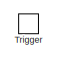
[diagram: Triggered Subsystem1 - part 1/6, top left region]
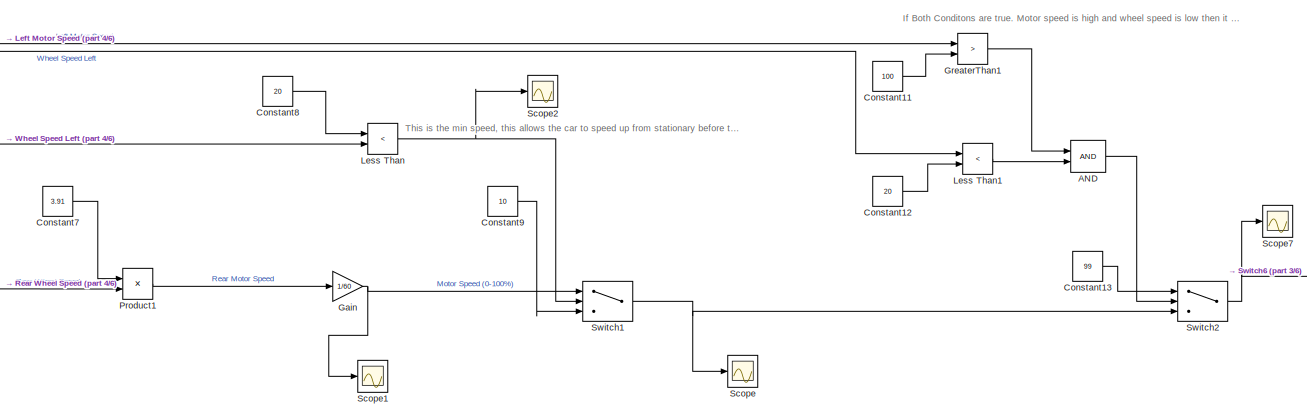
[diagram: Triggered Subsystem1 - part 2/6, top center region]
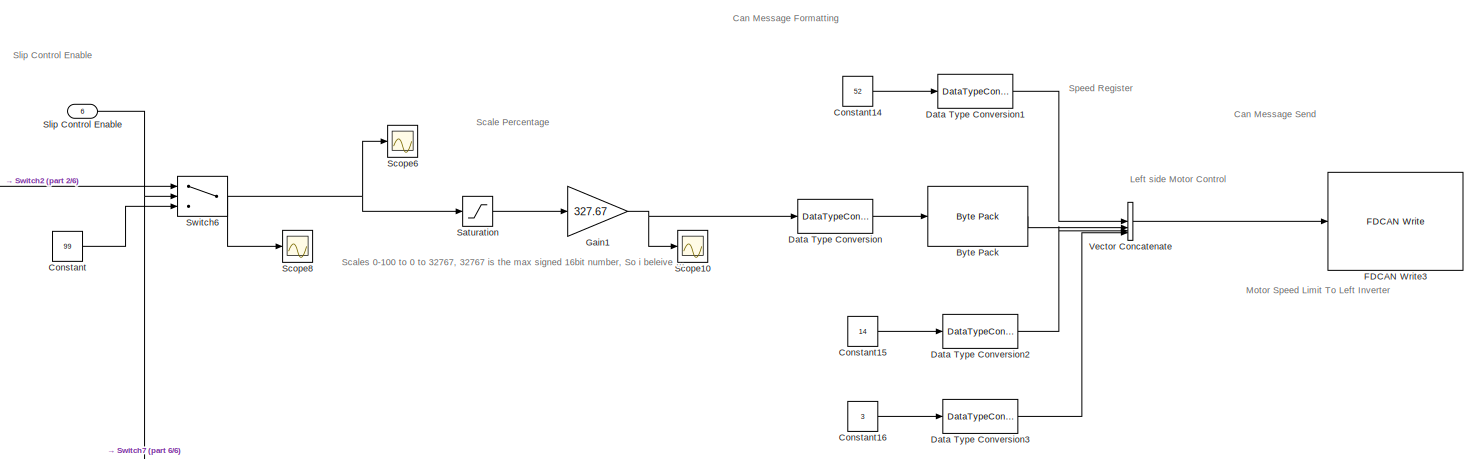
[diagram: Triggered Subsystem1 - part 3/6, middle right region]
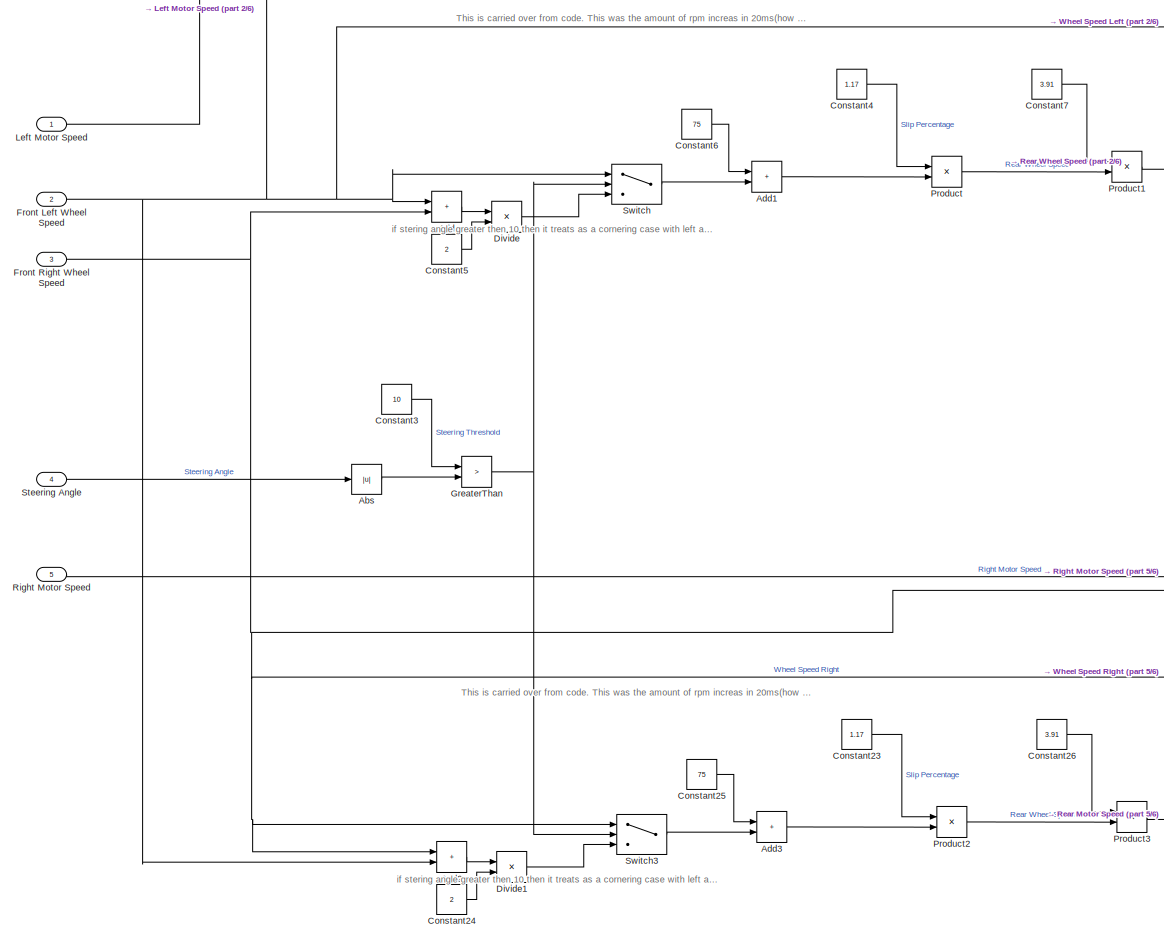
[diagram: Triggered Subsystem1 - part 4/6, middle left region]
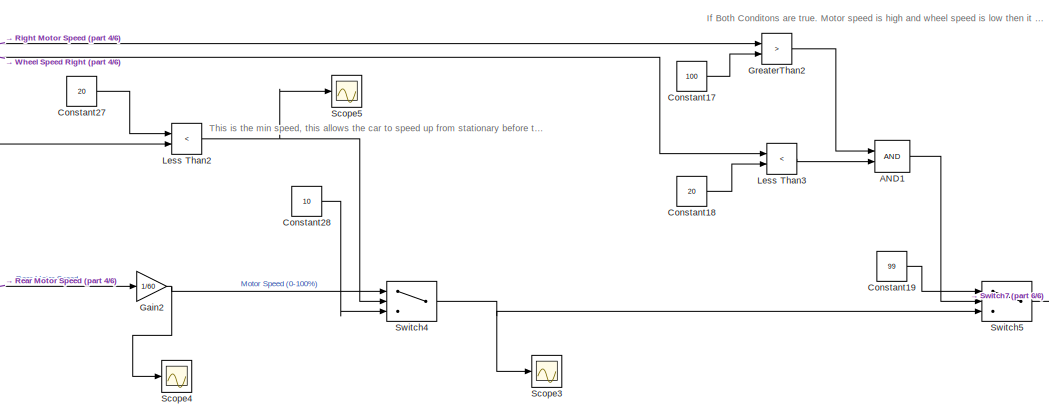
[diagram: Triggered Subsystem1 - part 5/6, bottom center region]
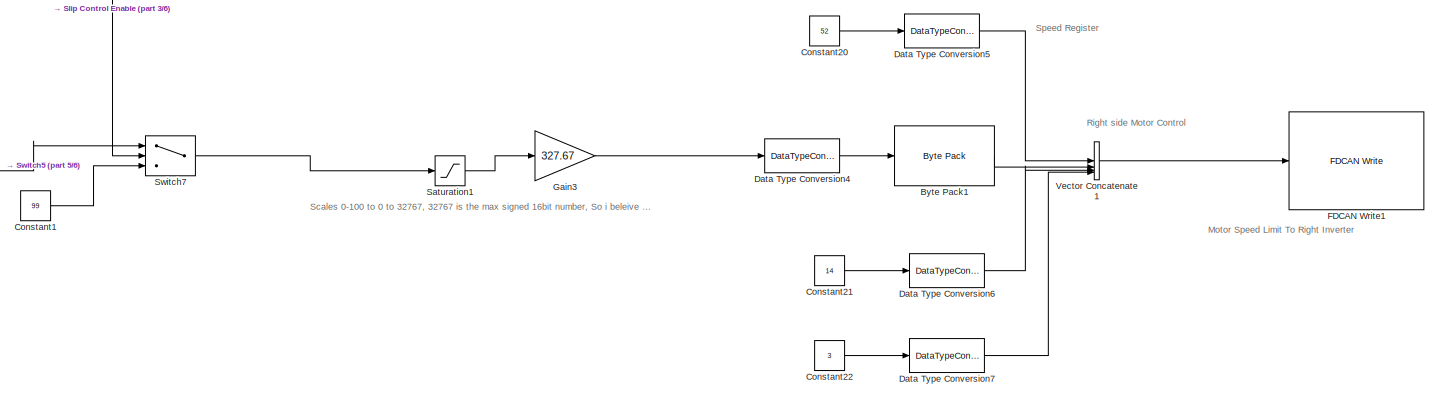
[diagram: Triggered Subsystem1 - part 6/6, bottom right region]
BLOCK [SubSystem] Triggered Subsystem1
  TreatAsAtomicUnit = on
BLOCK [Logic] Triggered Subsystem1/AND
  AllPortsSameDT = off
  IconShape = distinctive
  OutDataTypeStr = boolean
BLOCK [Logic] Triggered Subsystem1/AND1
  AllPortsSameDT = off
  IconShape = distinctive
  OutDataTypeStr = boolean
BLOCK [Abs] Triggered Subsystem1/Abs
  SaturateOnIntegerOverflow = off
BLOCK [Sum] Triggered Subsystem1/Add
  IconShape = rectangular
BLOCK [Sum] Triggered Subsystem1/Add1
  IconShape = rectangular
BLOCK [Sum] Triggered Subsystem1/Add2
  IconShape = rectangular
BLOCK [Sum] Triggered Subsystem1/Add3
  IconShape = rectangular
BLOCK [Reference] Triggered Subsystem1/Byte Pack  REF=stmutilitieslib/Byte Pack
  SourceBlock = stmutilitieslib/Byte Pack
  SourceType = Byte pack
BLOCK [Reference] Triggered Subsystem1/Byte Pack1  REF=stmutilitieslib/Byte Pack
  SourceBlock = stmutilitieslib/Byte Pack
  SourceType = Byte pack
BLOCK [Constant] Triggered Subsystem1/Constant
  Value = 99
BLOCK [Constant] Triggered Subsystem1/Constant1
  Value = 99
BLOCK [Constant] Triggered Subsystem1/Constant11
  Value = 100
BLOCK [Constant] Triggered Subsystem1/Constant12
  Value = 20
BLOCK [Constant] Triggered Subsystem1/Constant13
  Value = 99
BLOCK [Constant] Triggered Subsystem1/Constant14
  Value = 52
BLOCK [Constant] Triggered Subsystem1/Constant15
  Value = 14
BLOCK [Constant] Triggered Subsystem1/Constant16
  Value = 3
BLOCK [Constant] Triggered Subsystem1/Constant17
  Value = 100
BLOCK [Constant] Triggered Subsystem1/Constant18
  Value = 20
BLOCK [Constant] Triggered Subsystem1/Constant19
  Value = 99
BLOCK [Constant] Triggered Subsystem1/Constant20
  Value = 52
BLOCK [Constant] Triggered Subsystem1/Constant21
  Value = 14
BLOCK [Constant] Triggered Subsystem1/Constant22
  Value = 3
BLOCK [Constant] Triggered Subsystem1/Constant23
  Value = 1.17
BLOCK [Constant] Triggered Subsystem1/Constant24
  Value = 2
BLOCK [Constant] Triggered Subsystem1/Constant25
  Value = 75
BLOCK [Constant] Triggered Subsystem1/Constant26
  Value = 3.91
BLOCK [Constant] Triggered Subsystem1/Constant27
  Value = 20
BLOCK [Constant] Triggered Subsystem1/Constant28
  Value = 10
BLOCK [Constant] Triggered Subsystem1/Constant3
  Value = 10
BLOCK [Constant] Triggered Subsystem1/Constant4
  Value = 1.17
BLOCK [Constant] Triggered Subsystem1/Constant5
  Value = 2
BLOCK [Constant] Triggered Subsystem1/Constant6
  Value = 75
BLOCK [Constant] Triggered Subsystem1/Constant7
  Value = 3.91
BLOCK [Constant] Triggered Subsystem1/Constant8
  Value = 20
BLOCK [Constant] Triggered Subsystem1/Constant9
  Value = 10
BLOCK [DataTypeConversion] Triggered Subsystem1/Data Type Conversion
  OutDataTypeStr = int16
  RndMeth = Floor
  SaturateOnIntegerOverflow = off
BLOCK [DataTypeConversion] Triggered Subsystem1/Data Type Conversion1
  OutDataTypeStr = uint8
  RndMeth = Floor
  SaturateOnIntegerOverflow = off
BLOCK [DataTypeConversion] Triggered Subsystem1/Data Type Conversion2
  OutDataTypeStr = uint8
  RndMeth = Floor
  SaturateOnIntegerOverflow = off
BLOCK [DataTypeConversion] Triggered Subsystem1/Data Type Conversion3
  OutDataTypeStr = uint8
  RndMeth = Floor
  SaturateOnIntegerOverflow = off
BLOCK [DataTypeConversion] Triggered Subsystem1/Data Type Conversion4
  OutDataTypeStr = int16
  RndMeth = Floor
  SaturateOnIntegerOverflow = off
BLOCK [DataTypeConversion] Triggered Subsystem1/Data Type Conversion5
  OutDataTypeStr = uint8
  RndMeth = Floor
  SaturateOnIntegerOverflow = off
BLOCK [DataTypeConversion] Triggered Subsystem1/Data Type Conversion6
  OutDataTypeStr = uint8
  RndMeth = Floor
  SaturateOnIntegerOverflow = off
BLOCK [DataTypeConversion] Triggered Subsystem1/Data Type Conversion7
  OutDataTypeStr = uint8
  RndMeth = Floor
  SaturateOnIntegerOverflow = off
BLOCK [Product] Triggered Subsystem1/Divide
  Inputs = */
BLOCK [Product] Triggered Subsystem1/Divide1
  Inputs = */
BLOCK [Reference] Triggered Subsystem1/FDCAN Write1  REF=stm32blockslib/FDCAN Write
  LibrarySourceBlock = stm32l5xxblockslib/FDCAN Write
  SourceBlock = stm32blockslib/FDCAN Write
  SourceType = stm32cube.blocks.FDCANWrite
BLOCK [Reference] Triggered Subsystem1/FDCAN Write3  REF=stm32blockslib/FDCAN Write
  LibrarySourceBlock = stm32l5xxblockslib/FDCAN Write
  SourceBlock = stm32blockslib/FDCAN Write
  SourceType = stm32cube.blocks.FDCANWrite
BLOCK [Inport] Triggered Subsystem1/Front Left Wheel Speed
  Port = 2
BLOCK [Inport] Triggered Subsystem1/Front Right Wheel Speed
  Port = 3
BLOCK [Gain] Triggered Subsystem1/Gain
  Gain = 1/60
BLOCK [Gain] Triggered Subsystem1/Gain1
  Gain = 327.67
BLOCK [Gain] Triggered Subsystem1/Gain2
  Gain = 1/60
BLOCK [Gain] Triggered Subsystem1/Gain3
  Gain = 327.67
BLOCK [RelationalOperator] Triggered Subsystem1/GreaterThan
  InputSameDT = off
  Operator = >
  OutDataTypeStr = boolean
  RndMeth = Simplest
BLOCK [RelationalOperator] Triggered Subsystem1/GreaterThan1
  InputSameDT = off
  Operator = >
  OutDataTypeStr = boolean
  RndMeth = Simplest
BLOCK [RelationalOperator] Triggered Subsystem1/GreaterThan2
  InputSameDT = off
  Operator = >
  OutDataTypeStr = boolean
  RndMeth = Simplest
BLOCK [Inport] Triggered Subsystem1/Left Motor Speed
BLOCK [RelationalOperator] Triggered Subsystem1/Less Than
  InputSameDT = off
  Operator = <
  OutDataTypeStr = boolean
  RndMeth = Simplest
BLOCK [RelationalOperator] Triggered Subsystem1/Less Than1
  InputSameDT = off
  Operator = <
  OutDataTypeStr = boolean
  RndMeth = Simplest
BLOCK [RelationalOperator] Triggered Subsystem1/Less Than2
  InputSameDT = off
  Operator = <
  OutDataTypeStr = boolean
  RndMeth = Simplest
BLOCK [RelationalOperator] Triggered Subsystem1/Less Than3
  InputSameDT = off
  Operator = <
  OutDataTypeStr = boolean
  RndMeth = Simplest
BLOCK [Product] Triggered Subsystem1/Product
BLOCK [Product] Triggered Subsystem1/Product1
BLOCK [Product] Triggered Subsystem1/Product2
BLOCK [Product] Triggered Subsystem1/Product3
BLOCK [Inport] Triggered Subsystem1/Right Motor Speed
  Port = 5
BLOCK [Saturate] Triggered Subsystem1/Saturation
  LowerLimit = 0
  UpperLimit = 99
BLOCK [Saturate] Triggered Subsystem1/Saturation1
  LowerLimit = 0
  UpperLimit = 99
BLOCK [Scope] Triggered Subsystem1/Scope
  Floating = off
  NumInputPorts = 1
  ScopeSpecificationString = Simulink.scopes.TimeScopeBlockCfg('CurrentConfiguration', extmgr.ConfigurationSet(extmgr.Configuration('Core','General UI',true),extmgr.Configuration('Core','Source UI',true),extmgr.Configuration('Sources','WiredSimulink',true,'DataLoggingVariableName','ScopeData2'),extmgr.Configuration('Visuals','Time Domain',true,'SerializedDisplays',{struct('MinYLimReal','9.00000','MaxYLimReal','11.00000','YLab...<+1542ch>
BLOCK [Scope] Triggered Subsystem1/Scope1
  Floating = off
  NumInputPorts = 1
  ScopeSpecificationString = Simulink.scopes.TimeScopeBlockCfg('CurrentConfiguration', extmgr.ConfigurationSet(extmgr.Configuration('Core','General UI',true),extmgr.Configuration('Core','Source UI',true),extmgr.Configuration('Sources','WiredSimulink',true,'DataLoggingVariableName','ScopeData3'),extmgr.Configuration('Visuals','Time Domain',true,'SerializedDisplays',{struct('MinYLimReal','5.17584','MaxYLimReal','7.17584','YLabe...<+1501ch>
BLOCK [Scope] Triggered Subsystem1/Scope10
  Floating = off
  NumInputPorts = 1
  ScopeSpecificationString = Simulink.scopes.TimeScopeBlockCfg('CurrentConfiguration', extmgr.ConfigurationSet(extmgr.Configuration('Core','General UI',true),extmgr.Configuration('Core','Source UI',true),extmgr.Configuration('Sources','WiredSimulink',true,'DataLoggingVariableName','ScopeData2'),extmgr.Configuration('Visuals','Time Domain',true,'SerializedDisplays',{struct('MinYLimReal','2276.7','MaxYLimReal','4276.7','YLabelR...<+1443ch>
BLOCK [Scope] Triggered Subsystem1/Scope2
  Floating = off
  NumInputPorts = 1
  ScopeSpecificationString = Simulink.scopes.TimeScopeBlockCfg('CurrentConfiguration', extmgr.ConfigurationSet(extmgr.Configuration('Core','General UI',true),extmgr.Configuration('Core','Source UI',true),extmgr.Configuration('Sources','WiredSimulink',true,'DataLoggingVariableName','ScopeData4'),extmgr.Configuration('Visuals','Time Domain',true,'SerializedDisplays',{struct('MinYLimReal','-1.00000','MaxYLimReal','1.00000','YLab...<+1492ch>
BLOCK [Scope] Triggered Subsystem1/Scope3
  Floating = off
  NumInputPorts = 1
  ScopeSpecificationString = Simulink.scopes.TimeScopeBlockCfg('CurrentConfiguration', extmgr.ConfigurationSet(extmgr.Configuration('Core','General UI',true),extmgr.Configuration('Core','Source UI',true),extmgr.Configuration('Sources','WiredSimulink',true,'DataLoggingVariableName','ScopeData5'),extmgr.Configuration('Visuals','Time Domain',true,'SerializedDisplays',{struct('MinYLimReal','9.00000','MaxYLimReal','11.00000','YLab...<+1542ch>
BLOCK [Scope] Triggered Subsystem1/Scope4
  Floating = off
  NumInputPorts = 1
  ScopeSpecificationString = Simulink.scopes.TimeScopeBlockCfg('CurrentConfiguration', extmgr.ConfigurationSet(extmgr.Configuration('Core','General UI',true),extmgr.Configuration('Core','Source UI',true),extmgr.Configuration('Sources','WiredSimulink',true,'DataLoggingVariableName','ScopeData6'),extmgr.Configuration('Visuals','Time Domain',true,'SerializedDisplays',{struct('MinYLimReal','5.48082','MaxYLimReal','7.48082','YLabe...<+1501ch>
BLOCK [Scope] Triggered Subsystem1/Scope5
  Floating = off
  NumInputPorts = 1
  ScopeSpecificationString = Simulink.scopes.TimeScopeBlockCfg('CurrentConfiguration', extmgr.ConfigurationSet(extmgr.Configuration('Core','General UI',true),extmgr.Configuration('Core','Source UI',true),extmgr.Configuration('Sources','WiredSimulink',true,'DataLoggingVariableName','ScopeData7'),extmgr.Configuration('Visuals','Time Domain',true,'SerializedDisplays',{struct('MinYLimReal','-1.00000','MaxYLimReal','1.00000','YLab...<+1492ch>
BLOCK [Scope] Triggered Subsystem1/Scope6
  Floating = off
  NumInputPorts = 1
  ScopeSpecificationString = Simulink.scopes.TimeScopeBlockCfg('CurrentConfiguration', extmgr.ConfigurationSet(extmgr.Configuration('Core','General UI',true),extmgr.Configuration('Core','Source UI',true),extmgr.Configuration('Sources','WiredSimulink',true,'DataLoggingVariableName','ScopeData8'),extmgr.Configuration('Visuals','Time Domain',true,'SerializedDisplays',{struct('MinYLimReal','9.00000','MaxYLimReal','11.00000','YLab...<+1457ch>
BLOCK [Scope] Triggered Subsystem1/Scope7
  Floating = off
  NumInputPorts = 1
  ScopeSpecificationString = Simulink.scopes.TimeScopeBlockCfg('CurrentConfiguration', extmgr.ConfigurationSet(extmgr.Configuration('Core','General UI',true),extmgr.Configuration('Core','Source UI',true),extmgr.Configuration('Sources','WiredSimulink',true,'DataLoggingVariableName','ScopeData9'),extmgr.Configuration('Visuals','Time Domain',true,'SerializedDisplays',{struct('MinYLimReal','9.00000','MaxYLimReal','11.00000','YLab...<+1457ch>
BLOCK [Scope] Triggered Subsystem1/Scope8
  Floating = off
  NumInputPorts = 1
  ScopeSpecificationString = Simulink.scopes.TimeScopeBlockCfg('CurrentConfiguration', extmgr.ConfigurationSet(extmgr.Configuration('Core','General UI',true),extmgr.Configuration('Core','Source UI',true),extmgr.Configuration('Sources','WiredSimulink',true,'DataLoggingVariableName','ScopeData10'),extmgr.Configuration('Visuals','Time Domain',true,'SerializedDisplays',{struct('MinYLimReal','9.00000','MaxYLimReal','11.00000','YLa...<+1458ch>
BLOCK [Inport] Triggered Subsystem1/Slip Control Enable
  Port = 6
BLOCK [Inport] Triggered Subsystem1/Steering Angle
  Port = 4
BLOCK [Switch] Triggered Subsystem1/Switch
  Criteria = u2 > Threshold
  InputSameDT = off
  SaturateOnIntegerOverflow = off
BLOCK [Switch] Triggered Subsystem1/Switch1
  Criteria = u2 > Threshold
  InputSameDT = off
  SaturateOnIntegerOverflow = off
BLOCK [Switch] Triggered Subsystem1/Switch2
  Criteria = u2 > Threshold
  InputSameDT = off
  SaturateOnIntegerOverflow = off
BLOCK [Switch] Triggered Subsystem1/Switch3
  Criteria = u2 > Threshold
  InputSameDT = off
  SaturateOnIntegerOverflow = off
BLOCK [Switch] Triggered Subsystem1/Switch4
  Criteria = u2 > Threshold
  InputSameDT = off
  SaturateOnIntegerOverflow = off
BLOCK [Switch] Triggered Subsystem1/Switch5
  Criteria = u2 > Threshold
  InputSameDT = off
  SaturateOnIntegerOverflow = off
BLOCK [Switch] Triggered Subsystem1/Switch6
  Criteria = u2 > Threshold
  InputSameDT = off
  SaturateOnIntegerOverflow = off
BLOCK [Switch] Triggered Subsystem1/Switch7
  Criteria = u2 > Threshold
  InputSameDT = off
  SaturateOnIntegerOverflow = off
BLOCK [TriggerPort] Triggered Subsystem1/Trigger
  StatesWhenEnabling = held
  TriggerType = function-call
  VariantControl = (inherit)
BLOCK [Concatenate] Triggered Subsystem1/Vector Concatenate
  NumInputs = 4
BLOCK [Concatenate] Triggered Subsystem1/Vector Concatenate1
  NumInputs = 4
BLOCK [SubSystem] Variant Subsystem
  Variant = on
  VariantControlMode = sim codegen switching
BLOCK [SubSystem] Variant Subsystem/CAN Forwarding
  VariantControl = (codegen)
BLOCK [Inport] Variant Subsystem/CAN Forwarding/In1
BLOCK [Outport] Variant Subsystem/CAN Forwarding/Out1
BLOCK [Inport] Variant Subsystem/In1
BLOCK [Outport] Variant Subsystem/Out1
BLOCK [SubSystem] Variant Subsystem/Simulation of Throttle Pedal
  VariantControl = (sim)
BLOCK [Constant] Variant Subsystem/Simulation of Throttle Pedal/Constant1
  Value = 50
BLOCK [Constant] Variant Subsystem/Simulation of Throttle Pedal/Constant25
  Value = 100
BLOCK [FromFile] Variant Subsystem/Simulation of Throttle Pedal/From File
  FileName = endurancedata.mat
  SampleTime = 0.1
BLOCK [ManualSwitch] Variant Subsystem/Simulation of Throttle Pedal/Manual Switch2
  CurrentSetting = 0
BLOCK [Outport] Variant Subsystem/Simulation of Throttle Pedal/Out1
BLOCK [Product] Variant Subsystem/Simulation of Throttle Pedal/Product8
BLOCK [Scope] Variant Subsystem/Simulation of Throttle Pedal/Scope12
  Floating = off
  NumInputPorts = 1
  ScopeSpecificationString = Simulink.scopes.TimeScopeBlockCfg('CurrentConfiguration', extmgr.ConfigurationSet(extmgr.Configuration('Core','General UI',true),extmgr.Configuration('Core','Source UI',true),extmgr.Configuration('Sources','WiredSimulink',true,'DataLoggingVariableName','ScopeData6'),extmgr.Configuration('Visuals','Time Domain',true,'SerializedDisplays',{struct('MinYLimReal','-12.5','MaxYLimReal','112.5','YLabelRea...<+1442ch>
BLOCK [SubSystem] Variant Subsystem1
  Variant = on
  VariantControlMode = sim codegen switching
BLOCK [Outport] Variant Subsystem1/Batt Out
BLOCK [SubSystem] Variant Subsystem1/Battery Model1
  VariantControl = (sim)
BLOCK [Outport] Variant Subsystem1/Battery Model1/Batt Out
  Port = 2
BLOCK [Reference] Variant Subsystem1/Battery Model1/Battery1  REF=spsBatteryLib/Battery
  LibrarySourceBlock = sps_lib/Sources/Battery
  SourceBlock = spsBatteryLib/Battery
  SourceType = Battery
BLOCK [Reference] Variant Subsystem1/Battery Model1/Controlled Current Source1  REF=spsControlledCurrentSourceLib/Controlled Current Source
  LibrarySourceBlock = sps_lib/Sources/Controlled Current Source
  SourceBlock = spsControlledCurrentSourceLib/Controlled Current Source
  SourceType = Controlled Current Source
BLOCK [Delay] Variant Subsystem1/Battery Model1/Delay2
  DelayLength = 5
  InitialCondition = 580
  InputPortMap = u0
BLOCK [Inport] Variant Subsystem1/Battery Model1/Requested Current
BLOCK [Outport] Variant Subsystem1/Battery Model1/Scope
BLOCK [Scope] Variant Subsystem1/Battery Model1/Scope5
  Floating = off
  NumInputPorts = 1
  ScopeSpecificationString = Simulink.scopes.TimeScopeBlockCfg('CurrentConfiguration', extmgr.ConfigurationSet(extmgr.Configuration('Core','General UI',true),extmgr.Configuration('Core','Source UI',true),extmgr.Configuration('Sources','WiredSimulink',true,'DataLoggingVariableName','ScopeData1'),extmgr.Configuration('Visuals','Time Domain',true,'SerializedDisplays',{struct('MinYLimReal','576.69043','MaxYLimReal','580.29452','Y...<+1550ch>
BLOCK [Reference] Variant Subsystem1/Battery Model1/Voltage Measurement1  REF=spsVoltageMeasurementLib/Voltage Measurement
  LibrarySourceBlock = sps_lib/Sensors and Measurements/Voltage Measurement
  SourceBlock = spsVoltageMeasurementLib/Voltage Measurement
  SourceType = Voltage Measurement
  UserDataPersistent = on
BLOCK [Reference] Variant Subsystem1/Battery Model1/powergui1  REF=spspowerguiLib/powergui
  LibrarySourceBlock = sps_lib/powergui
  Priority = 1
  SourceBlock = spspowerguiLib/powergui
  SourceType = PSB option menu block
BLOCK [SubSystem] Variant Subsystem1/CAN Forwarding
  VariantControl = (codegen)
BLOCK [Outport] Variant Subsystem1/CAN Forwarding/Batt Out
BLOCK [Inport] Variant Subsystem1/CAN Forwarding/Can Sig
BLOCK [Outport] Variant Subsystem1/CAN Forwarding/Scope
  Port = 2
BLOCK [Inport] Variant Subsystem1/Can Sig
BLOCK [Inport] Variant Subsystem1/Requested Current
  Port = 2
BLOCK [Outport] Variant Subsystem1/Scope
  Port = 2
ANNOTATION (root): 50 Hz Function Call
ANNOTATION (root): Remeber currently set to CAN 2 for testing !!!!
ANNOTATION (root): Can 1 Receive
ANNOTATION (root): Can 2 Receive
ANNOTATION (root): Forwarding from Can2 to Can1 for data loggin
ANNOTATION (root): Inverter Setup
ANNOTATION (root): Can Receive Functions
ANNOTATION (root): Can Send Functions
ANNOTATION (root): Data Store Declaration
ANNOTATION (root): Model Configuration
ANNOTATION (root): Power Derating
ANNOTATION (root): Power Forcasting
ANNOTATION (root): Power Limiting
ANNOTATION (root): Send Torque Requests
ANNOTATION (root): Simulation Paramter Configuration
ANNOTATION (root): Traction Control
ANNOTATION (root): All Global Varibles
ANNOTATION (root): Because of the expected amount of acceleration between function call this function is also set to run at 50Hz.
ANNOTATION (root): CAN 1 information from pedal box and dash.
ANNOTATION (root): CAN 2 Receive Data From Inverters
ANNOTATION (root): Converts RPM to Rad/s
ANNOTATION (root): Derating values a scalers and are in the the magnitude of 0-1. The can be multiplied by with the requested power to scale them appropriatly.
ANNOTATION (root): Example On How to send Messages to Inverters
ANNOTATION (root): Forwarding Messages From the Inverters to Data Logger
ANNOTATION (root): Global Defines
ANNOTATION (root): Greater then 5 enables regen
ANNOTATION (root): Handy to test Can outputs. A constant can be put in to test transmission
ANNOTATION (root): Inverter Can Setup
ANNOTATION (root): Less then 90 enables regen
ANNOTATION (root): PID Loop runs allot faster to minimise overshoot. Messages are sent at a slower rate.
ANNOTATION (root): Power Limit is the combined left and right power Limit. By rules it should be set no higher then 80000 Watts
ANNOTATION (root): Receiving Can messages from CAN 1 (front of vehicle) and Can 2 (inverters)
ANNOTATION (root): Set Max time to 2154 Length of dat set used for power control for endurance
ANNOTATION (root): Set to 500 Hz call
ANNOTATION (root): Simulation Varible Setup
ANNOTATION (root): Takes the greater of the two for use in derating.
ANNOTATION (root): These can also be used to test code gen. Shows that varibles are transmitting.
ANNOTATION (root): This Constant Can be changed to varible at a latter date for data playback/simulation
ANNOTATION (root): This can be configured for either endurance (Power Forcasting Used) Or other events (fixed power limit)
ANNOTATION 10 HZ Send1: Unit delay used to to store number of iterations. Evertime the triggered subsystem is called +1 is added. Once the total reaches greater then 12 the system is disabled.
ANNOTATION 10 HZ Send1: Enabled Subsystem
ANNOTATION 10 HZ Send1/Enabled Subsystem: CAN ID Look Up Table
ANNOTATION 10 HZ Send1/Enabled Subsystem: Transmission Rate Look Up Table
ANNOTATION 10 HZ Send1/Enabled Subsystem: The corrsosponding frequency which a requested message ID should be sent back at.
ANNOTATION 10 HZ Send1/Enabled Subsystem: A look up table of CAN ID's which are used to request cyclic transmission of data from the inverters
ANNOTATION 10 HZ Send1/Enabled Subsystem: Addressed to Inverter LEFT
ANNOTATION 10 HZ Send1/Enabled Subsystem: Addressed to Inverter Right
ANNOTATION 10 HZ Send1/Enabled Subsystem: Byte 0 tells the inverters you are setting up cyclic messaging.
ANNOTATION 10 HZ Send1/Enabled Subsystem: Counter Selects which ID to send
ANNOTATION 50 HZ Send Torque Requests to Inverters: Byte reversal is used so that the low byte appears to the left of the high byte
ANNOTATION 50 HZ Send Torque Requests to Inverters: This is the Register Address which torque is sent to
ANNOTATION 50 HZ Send Torque Requests to Inverters: Torque Request To Left Inverter
ANNOTATION 50 HZ Send Torque Requests to Inverters: Torque Request To Right Inverter
ANNOTATION Function-Call Subsystem: The messages received from the inverters are multipled. Byte 0 tells you which register you are receiving. I use this to determine which case I should select. if the byte zero is 235 then the corrosponding case is selected and byte 1 and 2 (unit 16) are assigned to the corrosponding varible name. These messages are currerntly received with byte 0 being the first byte, and byte 1 being the high byt...<+2ch>
ANNOTATION Function-Call Subsystem: CAN Left Receive
ANNOTATION Function-Call Subsystem: CAN Right Receive
ANNOTATION Function-Call Subsystem1: Assume it is low_hight byte, doesnt explicity say
ANNOTATION Function-Call Subsystem1: Currently not using this but if a user define was set up in the dash then it could be used.
ANNOTATION Power Forcasting: Initialisation of the intergrater with 10kw. Power limit then settles from there.
ANNOTATION Power Forcasting: Line for power usage
ANNOTATION Power Forcasting/Variant Subsystem: 1) Add Subsystem or Model blocks as valid variant choices. 2) You cannot connect blocks at this level. At simulation, connectivity is automatically determined, based on the active variant and port name matching.
ANNOTATION Power Forcasting/Variant Subsystem/PowerUsage Simulation: The inital value is set to 10000 watts untill the PID controller updates this value
ANNOTATION Power Forcasting/Variant Subsystem1: 1) Add Subsystem or Model blocks as valid variant choices. 2) You cannot connect blocks at this level. At simulation, connectivity is automatically determined, based on the active variant and port name matching.
ANNOTATION Power Forcasting/Variant Subsystem1/Code Gen, Wheel speed averaging and integration: Filtering input to try and stop large changes in rate of change of distance traveled
ANNOTATION Power Forcasting/Variant Subsystem1/Fake wheel speed from simulation: Filtering input to try and stop large changes in rate of change of distance traveled
ANNOTATION Subsystem: Exponential Derating Function
ANNOTATION Subsystem: Inverters have an error at 72.2 Degrees and Error at 82.2 Degrees. Therefore derating function will approach zero at 75 degrees. Expected operating Temprature is 40 degrees.
ANNOTATION Subsystem: Once the threshold is exceed derating is held at 0, This could be changed to a small value if it was deemed appropriate to allow the vehicle to continue slowly.
ANNOTATION Subsystem: if less then 45, no derating
ANNOTATION Subsystem: Max Battery Temp is 60 degrees, with a normall operating temp of 30.
ANNOTATION Subsystem: Maximum Motor temp is 120 degrees. Expected operating temp is 60 degrees.
ANNOTATION Subsystem: is less then 45, no derating
ANNOTATION Throttle//Regen Control: Conversion To Torque Request Based on Current Motor Speed
ANNOTATION Throttle//Regen Control: Left Side Power Request
ANNOTATION Throttle//Regen Control: Right Side Power Request
ANNOTATION Throttle//Regen Control: Considering the average of the two. Probably not super different then only taking on channel
ANNOTATION Throttle//Regen Control/Left Side Power Request: Battery Checks
ANNOTATION Throttle//Regen Control/Left Side Power Request: Divide by two as the global power is the power limit for the whole vehicle, then need the left and right side power limits
ANNOTATION Throttle//Regen Control/Left Side Power Request: Halveing as this is the permissable for left/right side inverter
ANNOTATION Throttle//Regen Control/Left Side Power Request: Hysterisies Control
ANNOTATION Throttle//Regen Control/Left Side Power Request: If Battery Voltage greater then 590 Charge Current is set to zero
ANNOTATION Throttle//Regen Control/Left Side Power Request: If Conditions are not fulfilled charge current is set to zero
ANNOTATION Throttle//Regen Control/Left Side Power Request: If Requested Charge current is greater then permissable charge current then switch to permisable
ANNOTATION Throttle//Regen Control/Left Side Power Request: Inverting as this is a discharge current
ANNOTATION Throttle//Regen Control/Left Side Power Request: Limiting the input range
ANNOTATION Throttle//Regen Control/Left Side Power Request: Max Charge Current, Regen is scalled 0-100%. Current wants to be 0 -130 amps, therfore scale by 1.3. 600V*130amps = 70kw, Then divide by two for left and right motor Control
ANNOTATION Throttle//Regen Control/Left Side Power Request: Power Limiting to maintatin Power Limit of Less then 80 Kw
ANNOTATION Throttle//Regen Control/Left Side Power Request: Speed Threshold, Regen enabled above 5km/h
ANNOTATION Throttle//Regen Control/Left Side Power Request: This function was made in Desmos. Adjusted to meet cross over and start of rise
ANNOTATION Throttle//Regen Control/Left Side Power Request: This is the threshold for when drive torque is requested, Regen is requested for less then 20%, and throttle is applied for greater then 22%, This gives a 2% deadband
ANNOTATION Throttle//Regen Control/Left Side Power Request: Throttle Mapping to Regen Percentage
ANNOTATION Throttle//Regen Control/Left Side Power Request: Throttle pedal to regen percentage request
ANNOTATION Throttle//Regen Control/Left Side Power Request: throttle output enabled when less then 20% actuation, this will be used for regen
ANNOTATION Throttle//Regen Control/Right Side Power Request: Regen Controller
ANNOTATION Throttle//Regen Control/Right Side Power Request: Power Limit Controller (Forwards)
ANNOTATION Throttle//Regen Control/Right Side Power Request: Throttle Deadband
ANNOTATION Throttle//Regen Control/Right Side Power Request: Throttle Input (%)
ANNOTATION Throttle//Regen Control/Right Side Power Request: Torque Request
ANNOTATION Throttle//Regen Control/Right Side Power Request: This is the threshold for when drive torque is requested, Regen is requested for less then 20%, and throttle is applied for greater then 22%, This gives a 2% deadband
ANNOTATION Throttle//Regen Control/Right Side Power Request/Subsystem: Battery Checks
ANNOTATION Throttle//Regen Control/Right Side Power Request/Subsystem: Halveing as this is the permissable for left/right side inverter
ANNOTATION Throttle//Regen Control/Right Side Power Request/Subsystem: Hysterisies Control
ANNOTATION Throttle//Regen Control/Right Side Power Request/Subsystem: If Battery Voltage greater then 590 Charge Current is set to zero
ANNOTATION Throttle//Regen Control/Right Side Power Request/Subsystem: If Conditions are not fulfilled charge current is set to zero
ANNOTATION Throttle//Regen Control/Right Side Power Request/Subsystem: If Requested Charge current is greater then permissable charge current then switch to permisable
ANNOTATION Throttle//Regen Control/Right Side Power Request/Subsystem: Max Charge Current, Regen is scalled 0-100%. Current wants to be 0 -130 amps, therfore scale by 1.3. 600V*130amps = 70kw, Then divide by two for left and right motor Control
ANNOTATION Throttle//Regen Control/Right Side Power Request/Subsystem: Speed Threshold, Regen enabled above 5km/h
ANNOTATION Throttle//Regen Control/Right Side Power Request/Subsystem: Throttle pedal to regen percentage request
ANNOTATION Throttle//Regen Control/Right Side Power Request/Subsystem: throttle output enabled when less then 20% actuation, this will be used for regen
ANNOTATION Throttle//Regen Control/Right Side Power Request/Subsystem1: Inverting as this is a discharge current
ANNOTATION Throttle//Regen Control/Right Side Power Request/Subsystem1: Power Limiting to maintatin Power Limit of Less then 80 Kw
ANNOTATION Triggered Subsystem: Addressed to Inverter Right
ANNOTATION Triggered Subsystem: Unsure what format this needs to be this send the lowbyte as byte 0.
ANNOTATION Triggered Subsystem1: Can Message Formatting
ANNOTATION Triggered Subsystem1: Can Message Send
ANNOTATION Triggered Subsystem1: Scale Percentage
ANNOTATION Triggered Subsystem1: Slip Control Enable
ANNOTATION Triggered Subsystem1: If Both Conditons are true. Motor speed is high and wheel speed is low then it is assumed a wheel speed sensor error has occured. In this case the limit is set to the maximum.
ANNOTATION Triggered Subsystem1: Left side Motor Control
ANNOTATION Triggered Subsystem1: Motor Speed Limit To Left Inverter
ANNOTATION Triggered Subsystem1: Motor Speed Limit To Right Inverter
ANNOTATION Triggered Subsystem1: Right side Motor Control
ANNOTATION Triggered Subsystem1: Scales 0-100 to 0 to 32767, 32767 is the max signed 16bit number, So i beleive this will be a percentage in the inverters
ANNOTATION Triggered Subsystem1: Speed Register
ANNOTATION Triggered Subsystem1: This is carried over from code. This was the amount of rpm increas in 20ms(how often code runs) under a 1G acceleration
ANNOTATION Triggered Subsystem1: This is the min speed, this allows the car to speed up from stationary before traction control starts, This allows the wheel speed sensor to be able to determine the speed.
ANNOTATION Triggered Subsystem1: if stering angle greater then 10 then it treats as a cornering case with left and right side being assigned different values. If less then 10 this is straight line case and both wheels are assigned the average of the two.
ANNOTATION Variant Subsystem: 1) Add Subsystem or Model blocks as valid variant choices. 2) You cannot connect blocks at this level. At simulation, connectivity is automatically determined, based on the active variant and port name matching.
ANNOTATION Variant Subsystem/Simulation of Throttle Pedal: Set sim time to 2154
ANNOTATION Variant Subsystem/Simulation of Throttle Pedal: Throttle Input
ANNOTATION Variant Subsystem1: 1) Add Subsystem or Model blocks as valid variant choices. 2) You cannot connect blocks at this level. At simulation, connectivity is automatically determined, based on the active variant and port name matching.
ANNOTATION Variant Subsystem1/Battery Model1: Battery Model is from SIM SCAPE Tool box. Uses a constant current drive to take the current request from controller and apply load to the battery
ANNOTATION Variant Subsystem1/Battery Model1: Delay increased to 3 x 0.01 second to test robustness. This is to simulate the delay of having voltage measurments sent to the VCU
LINE 10 HZ Send1/Constant1:1 -> 10 HZ Send1/Switch:1
LINE 10 HZ Send1/Constant2:1 -> 10 HZ Send1/Switch:3
LINE 10 HZ Send1/Constant3:1 -> 10 HZ Send1/GreaterThan:2
LINE 10 HZ Send1/Constant:1 -> 10 HZ Send1/Sum:2
LINE 10 HZ Send1/Enabled Subsystem/Constant4:1 -> 10 HZ Send1/Enabled Subsystem/Data Type Conversion3:1
LINE 10 HZ Send1/Enabled Subsystem/Counter Limited1:1 -> 10 HZ Send1/Enabled Subsystem/Data Type Conversion1:1
LINE 10 HZ Send1/Enabled Subsystem/Counter Limited:1 -> 10 HZ Send1/Enabled Subsystem/Data Type Conversion16:1
LINE 10 HZ Send1/Enabled Subsystem/Data Type Conversion16:1 -> 10 HZ Send1/Enabled Subsystem/Direct Lookup Table (n-D):1
LINE 10 HZ Send1/Enabled Subsystem/Data Type Conversion1:1 -> 10 HZ Send1/Enabled Subsystem/Direct Lookup Table (n-D)1:1
LINE 10 HZ Send1/Enabled Subsystem/Data Type Conversion2:1 -> 10 HZ Send1/Enabled Subsystem/Vector Concatenate:2
LINE 10 HZ Send1/Enabled Subsystem/Data Type Conversion3:1 -> 10 HZ Send1/Enabled Subsystem/Vector Concatenate:1
LINE 10 HZ Send1/Enabled Subsystem/Data Type Conversion4:1 -> 10 HZ Send1/Enabled Subsystem/Vector Concatenate:3
NET 10 HZ Send1/Enabled Subsystem/Direct Lookup Table (n-D)1:1 -> 10 HZ Send1/Enabled Subsystem/Data Type Conversion4:1, 10 HZ Send1/Enabled Subsystem/Scope3:1
NET 10 HZ Send1/Enabled Subsystem/Direct Lookup Table (n-D):1 -> 10 HZ Send1/Enabled Subsystem/Data Type Conversion2:1, 10 HZ Send1/Enabled Subsystem/Scope2:1
NET 10 HZ Send1/Enabled Subsystem/Vector Concatenate:1 -> 10 HZ Send1/Enabled Subsystem/FDCAN Write2:1, 10 HZ Send1/Enabled Subsystem/FDCAN Write3:1
NET 10 HZ Send1/GreaterThan:1 -> 10 HZ Send1/Scope1:1, 10 HZ Send1/Switch:2
NET 10 HZ Send1/Sum:1 -> 10 HZ Send1/GreaterThan:1, 10 HZ Send1/Unit Delay:1
NET 10 HZ Send1/Switch:1 -> 10 HZ Send1/Enabled Subsystem:enable, 10 HZ Send1/Scope:1
LINE 10 HZ Send1/Unit Delay:1 -> 10 HZ Send1/Sum:1
LINE 50 HZ Send Torque Requests to Inverters/Byte Pack1:1 -> 50 HZ Send Torque Requests to Inverters/Vector Concatenate1:2
LINE 50 HZ Send Torque Requests to Inverters/Byte Pack:1 -> 50 HZ Send Torque Requests to Inverters/Vector Concatenate:2
LINE 50 HZ Send Torque Requests to Inverters/Byte Reversal1:1 -> 50 HZ Send Torque Requests to Inverters/Byte Pack1:1
LINE 50 HZ Send Torque Requests to Inverters/Byte Reversal:1 -> 50 HZ Send Torque Requests to Inverters/Byte Pack:1
LINE 50 HZ Send Torque Requests to Inverters/Constant1:1 -> 50 HZ Send Torque Requests to Inverters/Data Type Conversion1:1
LINE 50 HZ Send Torque Requests to Inverters/Constant3:1 -> 50 HZ Send Torque Requests to Inverters/Data Type Conversion3:1
LINE 50 HZ Send Torque Requests to Inverters/Data Type Conversion1:1 -> 50 HZ Send Torque Requests to Inverters/Vector Concatenate:1
LINE 50 HZ Send Torque Requests to Inverters/Data Type Conversion2:1 -> 50 HZ Send Torque Requests to Inverters/Byte Reversal1:1
LINE 50 HZ Send Torque Requests to Inverters/Data Type Conversion3:1 -> 50 HZ Send Torque Requests to Inverters/Vector Concatenate1:1
LINE 50 HZ Send Torque Requests to Inverters/Data Type Conversion:1 -> 50 HZ Send Torque Requests to Inverters/Byte Reversal:1
LINE 50 HZ Send Torque Requests to Inverters/Left Motor Torque Request:1 -> 50 HZ Send Torque Requests to Inverters/Data Type Conversion2:1
LINE 50 HZ Send Torque Requests to Inverters/Right Motor Torque Request:1 -> 50 HZ Send Torque Requests to Inverters/Data Type Conversion:1
LINE 50 HZ Send Torque Requests to Inverters/Vector Concatenate1:1 -> 50 HZ Send Torque Requests to Inverters/FDCAN Write3:1
LINE 50 HZ Send Torque Requests to Inverters/Vector Concatenate:1 -> 50 HZ Send Torque Requests to Inverters/FDCAN Write1:1
LINE Add1:1 -> Variant Subsystem1:2
LINE Constant10:1 -> Switch11:3
LINE Constant11:1 -> Switch12:3
LINE Constant12:1 -> Switch8:3
LINE Constant13:1 -> Switch9:3
LINE Constant14:1 -> Manual Switch1:1
LINE Constant15:1 -> Manual Switch1:2
LINE Constant16:1 -> Product:2
LINE Constant17:1 -> Product1:2
LINE Constant18:1 -> Switch13:3
LINE Constant19:1 -> Switch14:3
LINE Constant1:1 -> Manual Switch:2
LINE Constant20:1 -> Manual Switch3:2
LINE Constant21:1 -> Switch15:3
LINE Constant22:1 -> Switch6:3
LINE Constant23:1 -> Switch16:3
LINE Constant24:1 -> Manual Switch4:1
LINE Constant25:1 -> Manual Switch4:2
LINE Constant2:1 -> Switch5:3
LINE Constant3:1 -> Switch1:3
LINE Constant4:1 -> Switch2:3
LINE Constant5:1 -> Manual Switch2:1
LINE Constant6:1 -> Manual Switch2:2
LINE Constant7:1 -> Switch7:3
LINE Constant8:1 -> Switch4:3
LINE Constant9:1 -> Switch10:3
LINE Constant:1 -> Manual Switch:1
LINE Data Store Read4:1 -> Add1:1
LINE Data Store Read5:1 -> Add1:2
LINE Data Store Read6:1 -> Add1:3
LINE Data Store Read7:1 -> Add1:4
LINE From10:1 -> Product1:1
LINE From11:1 -> Switch3:1
LINE From12:1 -> Subsystem:3
LINE From13:1 -> Max:1
LINE From14:1 -> Power Forcasting:2
LINE From16:1 -> Power Forcasting:3
LINE From17:1 -> Triggered Subsystem:1
LINE From18:1 -> Triggered Subsystem:2
LINE From19:1 -> Triggered Subsystem:3
LINE From1:1 -> Switch1:2
LINE From20:1 -> Triggered Subsystem:4
LINE From21:1 -> Triggered Subsystem:5
LINE From22:1 -> Triggered Subsystem:6
LINE From23:1 -> Triggered Subsystem:7
LINE From24:1 -> Triggered Subsystem:8
LINE From25:1 -> Switch5:1
LINE From26:1 -> Switch5:2
LINE From27:1 -> Switch10:2
LINE From28:1 -> Throttle//Regen Control:2
LINE From29:1 -> Switch7:2
NET From2:1 -> Scope6:1, Throttle//Regen Control:1
LINE From30:1 -> Switch7:1
LINE From31:1 -> Switch8:2
LINE From32:1 -> Switch8:1
LINE From33:1 -> Switch9:2
LINE From34:1 -> Switch9:1
LINE From35:1 -> Throttle//Regen Control:3
LINE From36:1 -> Switch10:1
LINE From37:1 -> Switch11:2
LINE From38:1 -> Switch11:1
LINE From39:1 -> Switch12:2
LINE From3:1 -> Power Forcasting:1
LINE From40:1 -> Switch12:1
LINE From41:1 -> Variant Subsystem:1
LINE From42:1 -> Variant Subsystem1:1
LINE From43:1 -> Switch13:2
LINE From44:1 -> Switch13:1
LINE From45:1 -> Switch14:2
LINE From46:1 -> Switch14:1
LINE From47:1 -> Throttle//Regen Control:5
LINE From48:1 -> Switch15:2
LINE From49:1 -> Switch15:1
NET From4:1 -> Scope8:1, Throttle//Regen Control:7
LINE From50:1 -> Throttle//Regen Control:4
LINE From51:1 -> Max:2
LINE From52:1 -> Max1:1
LINE From53:1 -> Max1:2
LINE From54:1 -> Switch4:1
LINE From55:1 -> Switch6:2
LINE From56:1 -> Switch16:2
LINE From57:1 -> Subsystem:1
LINE From58:1 -> Subsystem:2
LINE From59:1 -> Triggered Subsystem1:1
NET From5:1 -> Scope7:1, Throttle//Regen Control:6
LINE From60:1 -> Triggered Subsystem1:2
LINE From61:1 -> Triggered Subsystem1:3
LINE From62:1 -> Switch4:2
LINE From63:1 -> Triggered Subsystem1:4
LINE From64:1 -> Triggered Subsystem1:6
LINE From65:1 -> Triggered Subsystem1:5
LINE From6:1 -> Product:1
LINE From9:1 -> Switch2:2
LINE From:1 -> Switch3:2
LINE Function-Call Generator1:1 -> Power Forcasting:trigger
LINE Function-Call Generator2:1 -> Function-Call Split1:1
LINE Function-Call Generator4:1 -> Function-Call Split:1
LINE Function-Call Generator:1 -> Throttle//Regen Control:trigger
LINE Function-Call Split1:1 -> 50 HZ Send Torque Requests to Inverters:trigger
LINE Function-Call Split1:2 -> Triggered Subsystem1:trigger
LINE Function-Call Split:1 -> Triggered Subsystem:trigger
LINE Function-Call Split:2 -> 10 HZ Send1:trigger
NET Function-Call Subsystem/Byte Unpack1:1 -> Function-Call Subsystem/If Action Subsystem10:1, Function-Call Subsystem/If Action Subsystem11:1, Function-Call Subsystem/If Action Subsystem12:1, Function-Call Subsystem/If Action Subsystem7:1, Function-Call Subsystem/If Action Subsystem8:1, Function-Call Subsystem/If Action Subsystem9:1, Function-Call Subsystem/Scope2:1
NET Function-Call Subsystem/Byte Unpack:1 -> Function-Call Subsystem/If Action Subsystem1:1, Function-Call Subsystem/If Action Subsystem2:1, Function-Call Subsystem/If Action Subsystem3:1, Function-Call Subsystem/If Action Subsystem4:1, Function-Call Subsystem/If Action Subsystem5:1, Function-Call Subsystem/If Action Subsystem6:1, Function-Call Subsystem/Scope7:1
NET Function-Call Subsystem/CAN FD Unpack1:1 -> Function-Call Subsystem/Selector1:1, Function-Call Subsystem/Selector2:1
NET Function-Call Subsystem/CAN FD Unpack2:1 -> Function-Call Subsystem/Selector6:1, Function-Call Subsystem/Selector:1
NET Function-Call Subsystem/Data Type Conversion1:1 -> Function-Call Subsystem/Scope1:1, Function-Call Subsystem/Switch Case1:1
NET Function-Call Subsystem/Data Type Conversion3:1 -> Function-Call Subsystem/Scope4:1, Function-Call Subsystem/Switch Case:1
NET Function-Call Subsystem/FDCAN Read1:1 -> Function-Call Subsystem/CAN FD Unpack1:1, Function-Call Subsystem/CAN FD Unpack2:1
LINE Function-Call Subsystem/If Action Subsystem1/In1:1 -> Function-Call Subsystem/If Action Subsystem1/Out1:1
LINE Function-Call Subsystem/If Action Subsystem10/In1:1 -> Function-Call Subsystem/If Action Subsystem10/Out1:1
LINE Function-Call Subsystem/If Action Subsystem10:1 -> Function-Call Subsystem/Out9:1
LINE Function-Call Subsystem/If Action Subsystem11/In1:1 -> Function-Call Subsystem/If Action Subsystem11/Out1:1
LINE Function-Call Subsystem/If Action Subsystem11:1 -> Function-Call Subsystem/Out8:1
LINE Function-Call Subsystem/If Action Subsystem12/In1:1 -> Function-Call Subsystem/If Action Subsystem12/Out1:1
LINE Function-Call Subsystem/If Action Subsystem12:1 -> Function-Call Subsystem/Out7:1
LINE Function-Call Subsystem/If Action Subsystem1:1 -> Function-Call Subsystem/Out6:1
LINE Function-Call Subsystem/If Action Subsystem2/In1:1 -> Function-Call Subsystem/If Action Subsystem2/Out1:1
LINE Function-Call Subsystem/If Action Subsystem2:1 -> Function-Call Subsystem/Out5:1
LINE Function-Call Subsystem/If Action Subsystem3/In1:1 -> Function-Call Subsystem/If Action Subsystem3/Out1:1
LINE Function-Call Subsystem/If Action Subsystem3:1 -> Function-Call Subsystem/Out4:1
LINE Function-Call Subsystem/If Action Subsystem4/In1:1 -> Function-Call Subsystem/If Action Subsystem4/Out1:1
LINE Function-Call Subsystem/If Action Subsystem4:1 -> Function-Call Subsystem/Out3:1
LINE Function-Call Subsystem/If Action Subsystem5/In1:1 -> Function-Call Subsystem/If Action Subsystem5/Out1:1
LINE Function-Call Subsystem/If Action Subsystem5:1 -> Function-Call Subsystem/Out2:1
LINE Function-Call Subsystem/If Action Subsystem6/In1:1 -> Function-Call Subsystem/If Action Subsystem6/Out1:1
LINE Function-Call Subsystem/If Action Subsystem6:1 -> Function-Call Subsystem/Out1:1
LINE Function-Call Subsystem/If Action Subsystem7/In1:1 -> Function-Call Subsystem/If Action Subsystem7/Out1:1
LINE Function-Call Subsystem/If Action Subsystem7:1 -> Function-Call Subsystem/Out12:1
LINE Function-Call Subsystem/If Action Subsystem8/In1:1 -> Function-Call Subsystem/If Action Subsystem8/Out1:1
LINE Function-Call Subsystem/If Action Subsystem8:1 -> Function-Call Subsystem/Out11:1
LINE Function-Call Subsystem/If Action Subsystem9/In1:1 -> Function-Call Subsystem/If Action Subsystem9/Out1:1
LINE Function-Call Subsystem/If Action Subsystem9:1 -> Function-Call Subsystem/Out10:1
LINE Function-Call Subsystem/Selector1:1 -> Function-Call Subsystem/Data Type Conversion1:1
LINE Function-Call Subsystem/Selector2:1 -> Function-Call Subsystem/Byte Unpack1:1
LINE Function-Call Subsystem/Selector6:1 -> Function-Call Subsystem/Byte Unpack:1
LINE Function-Call Subsystem/Selector:1 -> Function-Call Subsystem/Data Type Conversion3:1
LINE Function-Call Subsystem/Switch Case1:1 -> Function-Call Subsystem/If Action Subsystem12:ifaction
LINE Function-Call Subsystem/Switch Case1:2 -> Function-Call Subsystem/If Action Subsystem11:ifaction
LINE Function-Call Subsystem/Switch Case1:3 -> Function-Call Subsystem/If Action Subsystem10:ifaction
LINE Function-Call Subsystem/Switch Case1:4 -> Function-Call Subsystem/If Action Subsystem9:ifaction
LINE Function-Call Subsystem/Switch Case1:5 -> Function-Call Subsystem/If Action Subsystem8:ifaction
LINE Function-Call Subsystem/Switch Case1:6 -> Function-Call Subsystem/If Action Subsystem7:ifaction
LINE Function-Call Subsystem/Switch Case:1 -> Function-Call Subsystem/If Action Subsystem6:ifaction
LINE Function-Call Subsystem/Switch Case:2 -> Function-Call Subsystem/If Action Subsystem5:ifaction
LINE Function-Call Subsystem/Switch Case:3 -> Function-Call Subsystem/If Action Subsystem4:ifaction
LINE Function-Call Subsystem/Switch Case:4 -> Function-Call Subsystem/If Action Subsystem3:ifaction
LINE Function-Call Subsystem/Switch Case:5 -> Function-Call Subsystem/If Action Subsystem2:ifaction
LINE Function-Call Subsystem/Switch Case:6 -> Function-Call Subsystem/If Action Subsystem1:ifaction
LINE Function-Call Subsystem1/Byte Unpack1:1 -> Function-Call Subsystem1/Out18:1
LINE Function-Call Subsystem1/Byte Unpack2:1 -> Function-Call Subsystem1/Out19:1
LINE Function-Call Subsystem1/Byte Unpack3:1 -> Function-Call Subsystem1/Out20:1
LINE Function-Call Subsystem1/Byte Unpack4:1 -> Function-Call Subsystem1/Terminator1:1
LINE Function-Call Subsystem1/Byte Unpack5:1 -> Function-Call Subsystem1/Terminator2:1
LINE Function-Call Subsystem1/Byte Unpack:1 -> Function-Call Subsystem1/Out17:1
NET Function-Call Subsystem1/CAN FD Unpack1:1 -> Function-Call Subsystem1/Selector2:1, Function-Call Subsystem1/Selector3:1, Function-Call Subsystem1/Selector4:1, Function-Call Subsystem1/Selector5:1, Function-Call Subsystem1/Selector6:1, Function-Call Subsystem1/Selector7:1
NET Function-Call Subsystem1/CAN FD Unpack2:1 -> Function-Call Subsystem1/Selector1:1, Function-Call Subsystem1/Selector:1
NET Function-Call Subsystem1/CAN FD Unpack3:1 -> Function-Call Subsystem1/Selector10:1, Function-Call Subsystem1/Selector11:1, Function-Call Subsystem1/Selector8:1, Function-Call Subsystem1/Selector9:1
NET Function-Call Subsystem1/CAN FD Unpack4:1 -> Function-Call Subsystem1/Selector12:1, Function-Call Subsystem1/Selector13:1, Function-Call Subsystem1/Selector14:1, Function-Call Subsystem1/Selector15:1
LINE Function-Call Subsystem1/Data Type Conversion10:1 -> Function-Call Subsystem1/Out9:1
LINE Function-Call Subsystem1/Data Type Conversion11:1 -> Function-Call Subsystem1/Out10:1
LINE Function-Call Subsystem1/Data Type Conversion12:1 -> Function-Call Subsystem1/Out12:1
LINE Function-Call Subsystem1/Data Type Conversion13:1 -> Function-Call Subsystem1/Out13:1
LINE Function-Call Subsystem1/Data Type Conversion14:1 -> Function-Call Subsystem1/Out11:1
LINE Function-Call Subsystem1/Data Type Conversion15:1 -> Function-Call Subsystem1/Out14:1
LINE Function-Call Subsystem1/Data Type Conversion16:1 -> Function-Call Subsystem1/Out15:1
LINE Function-Call Subsystem1/Data Type Conversion17:1 -> Function-Call Subsystem1/Out16:1
LINE Function-Call Subsystem1/Data Type Conversion18:1 -> Function-Call Subsystem1/Out21:1
LINE Function-Call Subsystem1/Data Type Conversion19:1 -> Function-Call Subsystem1/Out22:1
LINE Function-Call Subsystem1/Data Type Conversion1:1 -> Function-Call Subsystem1/Out2:1
LINE Function-Call Subsystem1/Data Type Conversion20:1 -> Function-Call Subsystem1/Out23:1
LINE Function-Call Subsystem1/Data Type Conversion21:1 -> Function-Call Subsystem1/Out24:1
LINE Function-Call Subsystem1/Data Type Conversion2:1 -> Function-Call Subsystem1/Out1:1
LINE Function-Call Subsystem1/Data Type Conversion3:1 -> Function-Call Subsystem1/Out3:1
LINE Function-Call Subsystem1/Data Type Conversion4:1 -> Function-Call Subsystem1/Out4:1
LINE Function-Call Subsystem1/Data Type Conversion5:1 -> Function-Call Subsystem1/Out5:1
LINE Function-Call Subsystem1/Data Type Conversion6:1 -> Function-Call Subsystem1/Terminator:1
LINE Function-Call Subsystem1/Data Type Conversion7:1 -> Function-Call Subsystem1/Out7:1
LINE Function-Call Subsystem1/Data Type Conversion8:1 -> Function-Call Subsystem1/Out6:1
LINE Function-Call Subsystem1/Data Type Conversion9:1 -> Function-Call Subsystem1/Out8:1
LINE Function-Call Subsystem1/Extract Bits10:1 -> Function-Call Subsystem1/Data Type Conversion14:1
LINE Function-Call Subsystem1/Extract Bits11:1 -> Function-Call Subsystem1/Data Type Conversion12:1
LINE Function-Call Subsystem1/Extract Bits12:1 -> Function-Call Subsystem1/Data Type Conversion13:1
LINE Function-Call Subsystem1/Extract Bits1:1 -> Function-Call Subsystem1/Data Type Conversion1:1
LINE Function-Call Subsystem1/Extract Bits2:1 -> Function-Call Subsystem1/Data Type Conversion3:1
LINE Function-Call Subsystem1/Extract Bits3:1 -> Function-Call Subsystem1/Data Type Conversion4:1
LINE Function-Call Subsystem1/Extract Bits4:1 -> Function-Call Subsystem1/Data Type Conversion5:1
LINE Function-Call Subsystem1/Extract Bits5:1 -> Function-Call Subsystem1/Data Type Conversion8:1
LINE Function-Call Subsystem1/Extract Bits6:1 -> Function-Call Subsystem1/Data Type Conversion7:1
LINE Function-Call Subsystem1/Extract Bits7:1 -> Function-Call Subsystem1/Data Type Conversion9:1
LINE Function-Call Subsystem1/Extract Bits8:1 -> Function-Call Subsystem1/Data Type Conversion10:1
LINE Function-Call Subsystem1/Extract Bits9:1 -> Function-Call Subsystem1/Data Type Conversion11:1
LINE Function-Call Subsystem1/Extract Bits:1 -> Function-Call Subsystem1/Data Type Conversion2:1
NET Function-Call Subsystem1/FDCAN Read1:1 -> Function-Call Subsystem1/CAN FD Unpack1:1, Function-Call Subsystem1/CAN FD Unpack2:1, Function-Call Subsystem1/CAN FD Unpack3:1, Function-Call Subsystem1/CAN FD Unpack4:1
LINE Function-Call Subsystem1/Selector10:1 -> Function-Call Subsystem1/Data Type Conversion18:1
LINE Function-Call Subsystem1/Selector11:1 -> Function-Call Subsystem1/Data Type Conversion19:1
LINE Function-Call Subsystem1/Selector12:1 -> Function-Call Subsystem1/Byte Unpack4:1
LINE Function-Call Subsystem1/Selector13:1 -> Function-Call Subsystem1/Byte Unpack5:1
LINE Function-Call Subsystem1/Selector14:1 -> Function-Call Subsystem1/Data Type Conversion20:1
LINE Function-Call Subsystem1/Selector15:1 -> Function-Call Subsystem1/Data Type Conversion21:1
LINE Function-Call Subsystem1/Selector1:1 -> Function-Call Subsystem1/Data Type Conversion6:1
NET Function-Call Subsystem1/Selector2:1 -> Function-Call Subsystem1/Extract Bits10:1, Function-Call Subsystem1/Extract Bits11:1, Function-Call Subsystem1/Extract Bits12:1, Function-Call Subsystem1/Extract Bits5:1, Function-Call Subsystem1/Extract Bits6:1, Function-Call Subsystem1/Extract Bits7:1, Function-Call Subsystem1/Extract Bits8:1, Function-Call Subsystem1/Extract Bits9:1
LINE Function-Call Subsystem1/Selector3:1 -> Function-Call Subsystem1/Data Type Conversion15:1
LINE Function-Call Subsystem1/Selector4:1 -> Function-Call Subsystem1/Data Type Conversion16:1
LINE Function-Call Subsystem1/Selector5:1 -> Function-Call Subsystem1/Data Type Conversion17:1
LINE Function-Call Subsystem1/Selector6:1 -> Function-Call Subsystem1/Byte Unpack:1
LINE Function-Call Subsystem1/Selector7:1 -> Function-Call Subsystem1/Byte Unpack1:1
LINE Function-Call Subsystem1/Selector8:1 -> Function-Call Subsystem1/Byte Unpack2:1
LINE Function-Call Subsystem1/Selector9:1 -> Function-Call Subsystem1/Byte Unpack3:1
NET Function-Call Subsystem1/Selector:1 -> Function-Call Subsystem1/Extract Bits1:1, Function-Call Subsystem1/Extract Bits2:1, Function-Call Subsystem1/Extract Bits3:1, Function-Call Subsystem1/Extract Bits4:1, Function-Call Subsystem1/Extract Bits:1
LINE Function-Call Subsystem1/Subsystem/Constant2:1 -> Function-Call Subsystem1/Subsystem/Out1:1
LINE Function-Call Subsystem1:1 -> Goto2:1
LINE Function-Call Subsystem1:10 -> Goto51:1
LINE Function-Call Subsystem1:11 -> Goto10:1
LINE Function-Call Subsystem1:12 -> Goto11:1
LINE Function-Call Subsystem1:13 -> Goto12:1
LINE Function-Call Subsystem1:14 -> Goto13:1
LINE Function-Call Subsystem1:15 -> Goto14:1
LINE Function-Call Subsystem1:16 -> Goto15:1
LINE Function-Call Subsystem1:17 -> Goto16:1
LINE Function-Call Subsystem1:18 -> Goto17:1
LINE Function-Call Subsystem1:19 -> Goto18:1
LINE Function-Call Subsystem1:2 -> Goto9:1
LINE Function-Call Subsystem1:20 -> Goto19:1
LINE Function-Call Subsystem1:21 -> Goto21:1
LINE Function-Call Subsystem1:22 -> Goto22:1
LINE Function-Call Subsystem1:23 -> Goto23:1
LINE Function-Call Subsystem1:24 -> Goto24:1
LINE Function-Call Subsystem1:3 -> Goto20:1
LINE Function-Call Subsystem1:4 -> Goto31:1
LINE Function-Call Subsystem1:5 -> Goto42:1
LINE Function-Call Subsystem1:6 -> Goto46:1
LINE Function-Call Subsystem1:7 -> Goto48:1
LINE Function-Call Subsystem1:8 -> Goto49:1
LINE Function-Call Subsystem1:9 -> Goto50:1
LINE Function-Call Subsystem:1 -> Goto25:1
LINE Function-Call Subsystem:10 -> Goto36:1
LINE Function-Call Subsystem:11 -> Goto35:1
LINE Function-Call Subsystem:12 -> Goto37:1
LINE Function-Call Subsystem:2 -> Goto26:1
LINE Function-Call Subsystem:3 -> Goto27:1
LINE Function-Call Subsystem:4 -> Goto28:1
LINE Function-Call Subsystem:5 -> Goto29:1
LINE Function-Call Subsystem:6 -> Goto30:1
LINE Function-Call Subsystem:7 -> Goto32:1
LINE Function-Call Subsystem:8 -> Goto33:1
LINE Function-Call Subsystem:9 -> Goto34:1
LINE Hardware Interrupt1:1 -> Function-Call Subsystem:trigger
LINE Hardware Interrupt3:1 -> Function-Call Subsystem1:trigger
LINE Manual Switch1:1 -> Goto52:1
LINE Manual Switch2:1 -> Goto7:1
LINE Manual Switch3:1 -> Data Store Write2:1
LINE Manual Switch4:1 -> Goto58:1
LINE Manual Switch:1 -> Goto3:1
LINE Max1:1 -> Switch16:1
LINE Max:1 -> Switch6:1
NET Power Forcasting/Add3:1 -> Power Forcasting/Scope1:1, Power Forcasting/Scope6:1, Power Forcasting/Sum:1
LINE Power Forcasting/Constant4:1 -> Power Forcasting/Subtract:1
NET Power Forcasting/Constant5:1 -> Power Forcasting/Add3:1, Power Forcasting/Subtract:2
LINE Power Forcasting/Constant6:1 -> Power Forcasting/Subtract1:1
LINE Power Forcasting/Constant7:1 -> Power Forcasting/Subtract1:2
NET Power Forcasting/Discrete PID Controller:1 -> Power Forcasting/Out1:1, Power Forcasting/Scope3:1, Power Forcasting/Variant Subsystem:2
LINE Power Forcasting/Divide1:1 -> Power Forcasting/Product:2
LINE Power Forcasting/In1:1 -> Power Forcasting/Variant Subsystem1:1
LINE Power Forcasting/In2:1 -> Power Forcasting/Variant Subsystem1:2
LINE Power Forcasting/Inport:1 -> Power Forcasting/Variant Subsystem:1
LINE Power Forcasting/Product:1 -> Power Forcasting/Add3:2
LINE Power Forcasting/Subtract1:1 -> Power Forcasting/Divide1:2
LINE Power Forcasting/Subtract:1 -> Power Forcasting/Divide1:1
LINE Power Forcasting/Sum:1 -> Power Forcasting/Discrete PID Controller:1
LINE Power Forcasting/Variant Subsystem/CAN Forwarding/CAN SOC:1 -> Power Forcasting/Variant Subsystem/CAN Forwarding/Out1:1
LINE Power Forcasting/Variant Subsystem/PowerUsage Simulation/Available Power:1 -> Power Forcasting/Variant Subsystem/PowerUsage Simulation/Delay:1
LINE Power Forcasting/Variant Subsystem/PowerUsage Simulation/Constant2:1 -> Power Forcasting/Variant Subsystem/PowerUsage Simulation/Divide:2
LINE Power Forcasting/Variant Subsystem/PowerUsage Simulation/Constant3:1 -> Power Forcasting/Variant Subsystem/PowerUsage Simulation/Subtract2:1
LINE Power Forcasting/Variant Subsystem/PowerUsage Simulation/Constant8:1 -> Power Forcasting/Variant Subsystem/PowerUsage Simulation/Manual Switch:1
LINE Power Forcasting/Variant Subsystem/PowerUsage Simulation/Constant9:1 -> Power Forcasting/Variant Subsystem/PowerUsage Simulation/Product2:2
LINE Power Forcasting/Variant Subsystem/PowerUsage Simulation/Constant:1 -> Power Forcasting/Variant Subsystem/PowerUsage Simulation/Divide3:2
LINE Power Forcasting/Variant Subsystem/PowerUsage Simulation/Delay:1 -> Power Forcasting/Variant Subsystem/PowerUsage Simulation/Manual Switch:2
LINE Power Forcasting/Variant Subsystem/PowerUsage Simulation/Discrete-Time Integrator1:1 -> Power Forcasting/Variant Subsystem/PowerUsage Simulation/Divide:1
LINE Power Forcasting/Variant Subsystem/PowerUsage Simulation/Divide3:1 -> Power Forcasting/Variant Subsystem/PowerUsage Simulation/Subtract2:2
LINE Power Forcasting/Variant Subsystem/PowerUsage Simulation/Divide:1 -> Power Forcasting/Variant Subsystem/PowerUsage Simulation/Divide3:1
NET Power Forcasting/Variant Subsystem/PowerUsage Simulation/From File:1 -> Power Forcasting/Variant Subsystem/PowerUsage Simulation/Moving Average:1, Power Forcasting/Variant Subsystem/PowerUsage Simulation/Scope2:1
NET Power Forcasting/Variant Subsystem/PowerUsage Simulation/Manual Switch:1 -> Power Forcasting/Variant Subsystem/PowerUsage Simulation/Product1:2, Power Forcasting/Variant Subsystem/PowerUsage Simulation/Scope11:1
NET Power Forcasting/Variant Subsystem/PowerUsage Simulation/Moving Average:1 -> Power Forcasting/Variant Subsystem/PowerUsage Simulation/Product1:1, Power Forcasting/Variant Subsystem/PowerUsage Simulation/Scope2:2
NET Power Forcasting/Variant Subsystem/PowerUsage Simulation/Product1:1 -> Power Forcasting/Variant Subsystem/PowerUsage Simulation/Discrete-Time Integrator1:1, Power Forcasting/Variant Subsystem/PowerUsage Simulation/Scope5:1
LINE Power Forcasting/Variant Subsystem/PowerUsage Simulation/Product2:1 -> Power Forcasting/Variant Subsystem/PowerUsage Simulation/Out1:1
LINE Power Forcasting/Variant Subsystem/PowerUsage Simulation/Subtract2:1 -> Power Forcasting/Variant Subsystem/PowerUsage Simulation/Product2:1
LINE Power Forcasting/Variant Subsystem1/Code Gen, Wheel speed averaging and integration/Add2:1 -> Power Forcasting/Variant Subsystem1/Code Gen, Wheel speed averaging and integration/Divide:1
LINE Power Forcasting/Variant Subsystem1/Code Gen, Wheel speed averaging and integration/Constant2:1 -> Power Forcasting/Variant Subsystem1/Code Gen, Wheel speed averaging and integration/Divide:2
LINE Power Forcasting/Variant Subsystem1/Code Gen, Wheel speed averaging and integration/Discrete-Time Integrator2:1 -> Power Forcasting/Variant Subsystem1/Code Gen, Wheel speed averaging and integration/Moving Average1:1
LINE Power Forcasting/Variant Subsystem1/Code Gen, Wheel speed averaging and integration/Divide:1 -> Power Forcasting/Variant Subsystem1/Code Gen, Wheel speed averaging and integration/Discrete-Time Integrator2:1
NET Power Forcasting/Variant Subsystem1/Code Gen, Wheel speed averaging and integration/In1:1 -> Power Forcasting/Variant Subsystem1/Code Gen, Wheel speed averaging and integration/Add2:2, Power Forcasting/Variant Subsystem1/Code Gen, Wheel speed averaging and integration/Scope:1
LINE Power Forcasting/Variant Subsystem1/Code Gen, Wheel speed averaging and integration/In2:1 -> Power Forcasting/Variant Subsystem1/Code Gen, Wheel speed averaging and integration/Add2:1
NET Power Forcasting/Variant Subsystem1/Code Gen, Wheel speed averaging and integration/Moving Average1:1 -> Power Forcasting/Variant Subsystem1/Code Gen, Wheel speed averaging and integration/1:1, Power Forcasting/Variant Subsystem1/Code Gen, Wheel speed averaging and integration/Scope1:1
LINE Power Forcasting/Variant Subsystem1/Fake wheel speed from simulation/Add2:1 -> Power Forcasting/Variant Subsystem1/Fake wheel speed from simulation/Divide2:1
LINE Power Forcasting/Variant Subsystem1/Fake wheel speed from simulation/Constant1:1 -> Power Forcasting/Variant Subsystem1/Fake wheel speed from simulation/Divide2:2
NET Power Forcasting/Variant Subsystem1/Fake wheel speed from simulation/Discrete-Time Integrator2:1 -> Power Forcasting/Variant Subsystem1/Fake wheel speed from simulation/Moving Average1:1, Power Forcasting/Variant Subsystem1/Fake wheel speed from simulation/Scope8:2
LINE Power Forcasting/Variant Subsystem1/Fake wheel speed from simulation/Discrete-Time Integrator3:1 -> Power Forcasting/Variant Subsystem1/Fake wheel speed from simulation/Moving Average2:1
LINE Power Forcasting/Variant Subsystem1/Fake wheel speed from simulation/Divide2:1 -> Power Forcasting/Variant Subsystem1/Fake wheel speed from simulation/Discrete-Time Integrator3:1
NET Power Forcasting/Variant Subsystem1/Fake wheel speed from simulation/From File1:1 -> Power Forcasting/Variant Subsystem1/Fake wheel speed from simulation/Discrete-Time Integrator2:1, Power Forcasting/Variant Subsystem1/Fake wheel speed from simulation/Scope7:1
NET Power Forcasting/Variant Subsystem1/Fake wheel speed from simulation/From File2:1 -> Power Forcasting/Variant Subsystem1/Fake wheel speed from simulation/Add2:2, Power Forcasting/Variant Subsystem1/Fake wheel speed from simulation/Scope:1
LINE Power Forcasting/Variant Subsystem1/Fake wheel speed from simulation/From File3:1 -> Power Forcasting/Variant Subsystem1/Fake wheel speed from simulation/Add2:1
LINE Power Forcasting/Variant Subsystem1/Fake wheel speed from simulation/Manual Switch2:1 -> Power Forcasting/Variant Subsystem1/Fake wheel speed from simulation/1:1
NET Power Forcasting/Variant Subsystem1/Fake wheel speed from simulation/Moving Average1:1 -> Power Forcasting/Variant Subsystem1/Fake wheel speed from simulation/Manual Switch2:2, Power Forcasting/Variant Subsystem1/Fake wheel speed from simulation/Scope8:1
NET Power Forcasting/Variant Subsystem1/Fake wheel speed from simulation/Moving Average2:1 -> Power Forcasting/Variant Subsystem1/Fake wheel speed from simulation/Manual Switch2:1, Power Forcasting/Variant Subsystem1/Fake wheel speed from simulation/Scope9:1
LINE Power Forcasting/Variant Subsystem1:1 -> Power Forcasting/Product:1
NET Power Forcasting/Variant Subsystem:1 -> Power Forcasting/Scope4:1, Power Forcasting/Scope6:2, Power Forcasting/Sum:2
LINE Power Forcasting:1 -> Switch3:3
LINE Power Limit:1 -> Goto8:1
LINE Product1:1 -> Switch2:1
LINE Product2:1 -> 50 HZ Send Torque Requests to Inverters:1
LINE Product3:1 -> Product4:2
NET Product4:1 -> Product2:1, Product5:1, Scope9:1
LINE Product5:1 -> 50 HZ Send Torque Requests to Inverters:2
LINE Product:1 -> Switch1:1
LINE Subsystem/Add1:1 -> Subsystem/Switch2:3
LINE Subsystem/Add2:1 -> Subsystem/Switch4:3
LINE Subsystem/Add:1 -> Subsystem/Switch:3
NET Subsystem/Battery Temp:1 -> Subsystem/Gain2:1, Subsystem/GreaterThan2:1, Subsystem/Less Than2:2, Subsystem/Subtract2:1, Subsystem/XY Graph2:1
LINE Subsystem/Constant10:1 -> Subsystem/GreaterThan1:2
LINE Subsystem/Constant11:1 -> Subsystem/Switch3:1
LINE Subsystem/Constant12:1 -> Subsystem/GreaterThan2:2
LINE Subsystem/Constant13:1 -> Subsystem/Switch5:1
LINE Subsystem/Constant14:1 -> Subsystem/Less Than2:1
LINE Subsystem/Constant15:1 -> Subsystem/Switch4:1
LINE Subsystem/Constant16:1 -> Subsystem/Subtract2:2
LINE Subsystem/Constant17:1 -> Subsystem/Product2:2
LINE Subsystem/Constant18:1 -> Subsystem/Add:2
LINE Subsystem/Constant19:1 -> Subsystem/Add1:2
LINE Subsystem/Constant1:1 -> Subsystem/Switch:1
LINE Subsystem/Constant20:1 -> Subsystem/Add2:2
LINE Subsystem/Constant2:1 -> Subsystem/Subtract:2
LINE Subsystem/Constant3:1 -> Subsystem/Product:2
LINE Subsystem/Constant4:1 -> Subsystem/GreaterThan:2
LINE Subsystem/Constant5:1 -> Subsystem/Switch1:1
LINE Subsystem/Constant6:1 -> Subsystem/Less Than1:1
LINE Subsystem/Constant7:1 -> Subsystem/Switch2:1
LINE Subsystem/Constant8:1 -> Subsystem/Subtract1:2
LINE Subsystem/Constant9:1 -> Subsystem/Product1:2
LINE Subsystem/Constant:1 -> Subsystem/Less Than:1
LINE Subsystem/Gain1:1 -> Subsystem/Scope2:2
LINE Subsystem/Gain2:1 -> Subsystem/Scope4:2
LINE Subsystem/Gain:1 -> Subsystem/Scope:2
LINE Subsystem/GreaterThan1:1 -> Subsystem/Switch3:2
LINE Subsystem/GreaterThan2:1 -> Subsystem/Switch5:2
LINE Subsystem/GreaterThan:1 -> Subsystem/Switch1:2
NET Subsystem/IGBT Temp:1 -> Subsystem/Gain:1, Subsystem/GreaterThan:1, Subsystem/Less Than:2, Subsystem/Subtract:1, Subsystem/XY Graph:1
LINE Subsystem/Less Than1:1 -> Subsystem/NOT1:1
LINE Subsystem/Less Than2:1 -> Subsystem/NOT2:1
LINE Subsystem/Less Than:1 -> Subsystem/NOT:1
NET Subsystem/Motor Temp:1 -> Subsystem/Gain1:1, Subsystem/GreaterThan1:1, Subsystem/Less Than1:2, Subsystem/Subtract1:1, Subsystem/XY Graph1:1
NET Subsystem/NOT1:1 -> Subsystem/Scope3:1, Subsystem/Switch2:2
NET Subsystem/NOT2:1 -> Subsystem/Scope5:1, Subsystem/Switch4:2
NET Subsystem/NOT:1 -> Subsystem/Scope1:1, Subsystem/Switch:2
LINE Subsystem/Product1:1 -> Subsystem/Add1:1
LINE Subsystem/Product2:1 -> Subsystem/Add2:1
LINE Subsystem/Product:1 -> Subsystem/Add:1
LINE Subsystem/Square1:1 -> Subsystem/Product1:1
LINE Subsystem/Square2:1 -> Subsystem/Product2:1
LINE Subsystem/Square:1 -> Subsystem/Product:1
LINE Subsystem/Subtract1:1 -> Subsystem/Square1:1
LINE Subsystem/Subtract2:1 -> Subsystem/Square2:1
LINE Subsystem/Subtract:1 -> Subsystem/Square:1
NET Subsystem/Switch1:1 -> Subsystem/Derating Constant:1, Subsystem/Scope:1, Subsystem/XY Graph:2
LINE Subsystem/Switch2:1 -> Subsystem/Switch3:3
NET Subsystem/Switch3:1 -> Subsystem/Derating Constant1:1, Subsystem/Scope2:1, Subsystem/XY Graph1:2
LINE Subsystem/Switch4:1 -> Subsystem/Switch5:3
NET Subsystem/Switch5:1 -> Subsystem/Derating Constant2:1, Subsystem/Scope4:1, Subsystem/XY Graph2:2
LINE Subsystem/Switch:1 -> Subsystem/Switch1:3
LINE Subsystem:1 -> Product4:1
LINE Subsystem:2 -> Product3:1
LINE Subsystem:3 -> Product3:2
LINE Switch10:1 -> Goto:1
LINE Switch11:1 -> Goto45:1
LINE Switch12:1 -> Goto47:1
LINE Switch13:1 -> Goto40:1
LINE Switch14:1 -> Goto41:1
LINE Switch15:1 -> Goto54:1
LINE Switch16:1 -> Goto57:1
NET Switch1:1 -> Goto5:1, Scope2:1
LINE Switch2:1 -> Goto6:1
NET Switch3:1 -> Data Store Write1:1, Scope3:1
LINE Switch4:1 -> Goto55:1
LINE Switch5:1 -> Goto38:1
LINE Switch6:1 -> Goto56:1
LINE Switch7:1 -> Goto39:1
LINE Switch8:1 -> Goto43:1
LINE Switch9:1 -> Goto44:1
LINE Throttle//Regen Control/Add:1 -> Throttle//Regen Control/Divide2:1
NET Throttle//Regen Control/Battery SOC:1 -> Throttle//Regen Control/Left Side Power Request:4, Throttle//Regen Control/Right Side Power Request:4
NET Throttle//Regen Control/Battery Temp:1 -> Throttle//Regen Control/Left Side Power Request:3, Throttle//Regen Control/Right Side Power Request:3
LINE Throttle//Regen Control/Constant:1 -> Throttle//Regen Control/Divide2:2
LINE Throttle//Regen Control/Divide1:1 -> Throttle//Regen Control/Left Motor Requested Torque:1
NET Throttle//Regen Control/Divide2:1 -> Throttle//Regen Control/Left Side Power Request:2, Throttle//Regen Control/Right Side Power Request:2
LINE Throttle//Regen Control/Divide:1 -> Throttle//Regen Control/Right Motor Requested Torque:1
LINE Throttle//Regen Control/FL Wheel Speed (m//s)1:1 -> Throttle//Regen Control/Add:2
LINE Throttle//Regen Control/FR Wheel Speed (m//s):1 -> Throttle//Regen Control/Add:1
LINE Throttle//Regen Control/Left Motor Speed (rads):1 -> Throttle//Regen Control/Divide1:2
LINE Throttle//Regen Control/Left Side Power Request/AND1:1 -> Throttle//Regen Control/Left Side Power Request/AND3:1
LINE Throttle//Regen Control/Left Side Power Request/AND2:1 -> Throttle//Regen Control/Left Side Power Request/AND3:2
NET Throttle//Regen Control/Left Side Power Request/AND3:1 -> Throttle//Regen Control/Left Side Power Request/AND:2, Throttle//Regen Control/Left Side Power Request/Scope3:1
LINE Throttle//Regen Control/Left Side Power Request/AND:1 -> Throttle//Regen Control/Left Side Power Request/Switch:2
LINE Throttle//Regen Control/Left Side Power Request/Add2:1 -> Throttle//Regen Control/Left Side Power Request/Saturation1:1
LINE Throttle//Regen Control/Left Side Power Request/Add3:1 -> Throttle//Regen Control/Left Side Power Request/Saturation:1
NET Throttle//Regen Control/Left Side Power Request/Battery SOC:1 -> Throttle//Regen Control/Left Side Power Request/GreaterThan1:1, Throttle//Regen Control/Left Side Power Request/Less Than1:1
NET Throttle//Regen Control/Left Side Power Request/Battery Temp:1 -> Throttle//Regen Control/Left Side Power Request/GreaterThan:1, Throttle//Regen Control/Left Side Power Request/Less Than:1
NET Throttle//Regen Control/Left Side Power Request/Compare To Constant:1 -> Throttle//Regen Control/Left Side Power Request/AND:1, Throttle//Regen Control/Left Side Power Request/Scope1:1
LINE Throttle//Regen Control/Left Side Power Request/Constant10:1 -> Throttle//Regen Control/Left Side Power Request/Add2:2
LINE Throttle//Regen Control/Left Side Power Request/Constant11:1 -> Throttle//Regen Control/Left Side Power Request/Switch:3
LINE Throttle//Regen Control/Left Side Power Request/Constant12:1 -> Throttle//Regen Control/Left Side Power Request/Manual Switch1:2
LINE Throttle//Regen Control/Left Side Power Request/Constant15:1 -> Throttle//Regen Control/Left Side Power Request/Divide:2
LINE Throttle//Regen Control/Left Side Power Request/Constant16:1 -> Throttle//Regen Control/Left Side Power Request/Less Than:2
LINE Throttle//Regen Control/Left Side Power Request/Constant17:1 -> Throttle//Regen Control/Left Side Power Request/GreaterThan:2
LINE Throttle//Regen Control/Left Side Power Request/Constant18:1 -> Throttle//Regen Control/Left Side Power Request/Less Than1:2
LINE Throttle//Regen Control/Left Side Power Request/Constant19:1 -> Throttle//Regen Control/Left Side Power Request/GreaterThan1:2
LINE Throttle//Regen Control/Left Side Power Request/Constant20:1 -> Throttle//Regen Control/Left Side Power Request/Minus:1
LINE Throttle//Regen Control/Left Side Power Request/Constant21:1 -> Throttle//Regen Control/Left Side Power Request/Switch2:3
LINE Throttle//Regen Control/Left Side Power Request/Constant23:1 -> Throttle//Regen Control/Left Side Power Request/Product6:1
LINE Throttle//Regen Control/Left Side Power Request/Constant26:1 -> Throttle//Regen Control/Left Side Power Request/Divide4:2
LINE Throttle//Regen Control/Left Side Power Request/Constant27:1 -> Throttle//Regen Control/Left Side Power Request/GreaterThan3:2
LINE Throttle//Regen Control/Left Side Power Request/Constant28:1 -> Throttle//Regen Control/Left Side Power Request/Switch3:3
LINE Throttle//Regen Control/Left Side Power Request/Constant2:1 -> Throttle//Regen Control/Left Side Power Request/Product1:2
LINE Throttle//Regen Control/Left Side Power Request/Constant3:1 -> Throttle//Regen Control/Left Side Power Request/Subtract2:2
LINE Throttle//Regen Control/Left Side Power Request/Constant4:1 -> Throttle//Regen Control/Left Side Power Request/Subtract:1
NET Throttle//Regen Control/Left Side Power Request/Constant5:1 -> Throttle//Regen Control/Left Side Power Request/Add3:1, Throttle//Regen Control/Left Side Power Request/Subtract:2
LINE Throttle//Regen Control/Left Side Power Request/Constant6:1 -> Throttle//Regen Control/Left Side Power Request/Subtract1:1
LINE Throttle//Regen Control/Left Side Power Request/Constant7:1 -> Throttle//Regen Control/Left Side Power Request/Subtract1:2
LINE Throttle//Regen Control/Left Side Power Request/Constant9:1 -> Throttle//Regen Control/Left Side Power Request/Product3:2
LINE Throttle//Regen Control/Left Side Power Request/Constant:1 -> Throttle//Regen Control/Left Side Power Request/Divide3:2
NET Throttle//Regen Control/Left Side Power Request/Data Store Read1:1 -> Throttle//Regen Control/Left Side Power Request/Minus:2, Throttle//Regen Control/Left Side Power Request/Product7:1, Throttle//Regen Control/Left Side Power Request/Relay:1
LINE Throttle//Regen Control/Left Side Power Request/Data Store Read2:1 -> Throttle//Regen Control/Left Side Power Request/Divide3:1
LINE Throttle//Regen Control/Left Side Power Request/Data Store Read:1 -> Throttle//Regen Control/Left Side Power Request/Moving Average:1
LINE Throttle//Regen Control/Left Side Power Request/Discrete PID Controller1:1 -> Throttle//Regen Control/Left Side Power Request/Memory1:1
LINE Throttle//Regen Control/Left Side Power Request/Divide1:1 -> Throttle//Regen Control/Left Side Power Request/Product2:2
LINE Throttle//Regen Control/Left Side Power Request/Divide2:1 -> Throttle//Regen Control/Left Side Power Request/Discrete PID Controller1:1
LINE Throttle//Regen Control/Left Side Power Request/Divide3:1 -> Throttle//Regen Control/Left Side Power Request/Sum1:2
NET Throttle//Regen Control/Left Side Power Request/Divide4:1 -> Throttle//Regen Control/Left Side Power Request/GreaterThan2:2, Throttle//Regen Control/Left Side Power Request/Scope9:1, Throttle//Regen Control/Left Side Power Request/Switch1:1
LINE Throttle//Regen Control/Left Side Power Request/Divide:1 -> Throttle//Regen Control/Left Side Power Request/Divide4:1
NET Throttle//Regen Control/Left Side Power Request/Gain1:1 -> Throttle//Regen Control/Left Side Power Request/Scope5:1, Throttle//Regen Control/Left Side Power Request/Sum3:2
LINE Throttle//Regen Control/Left Side Power Request/Gain:1 -> Throttle//Regen Control/Left Side Power Request/Data Store Write1:1
LINE Throttle//Regen Control/Left Side Power Request/GreaterThan1:1 -> Throttle//Regen Control/Left Side Power Request/AND2:1
LINE Throttle//Regen Control/Left Side Power Request/GreaterThan2:1 -> Throttle//Regen Control/Left Side Power Request/Switch1:2
LINE Throttle//Regen Control/Left Side Power Request/GreaterThan3:1 -> Throttle//Regen Control/Left Side Power Request/Switch3:2
LINE Throttle//Regen Control/Left Side Power Request/GreaterThan:1 -> Throttle//Regen Control/Left Side Power Request/AND1:1
LINE Throttle//Regen Control/Left Side Power Request/IC1:1 -> Throttle//Regen Control/Left Side Power Request/Divide2:2
LINE Throttle//Regen Control/Left Side Power Request/Less Than1:1 -> Throttle//Regen Control/Left Side Power Request/AND2:2
LINE Throttle//Regen Control/Left Side Power Request/Less Than:1 -> Throttle//Regen Control/Left Side Power Request/AND1:2
LINE Throttle//Regen Control/Left Side Power Request/Manual Switch1:1 -> Throttle//Regen Control/Left Side Power Request/Compare To Constant:1
LINE Throttle//Regen Control/Left Side Power Request/Memory1:1 -> Throttle//Regen Control/Left Side Power Request/Sum:2
LINE Throttle//Regen Control/Left Side Power Request/Minus:1 -> Throttle//Regen Control/Left Side Power Request/Divide:1
NET Throttle//Regen Control/Left Side Power Request/Moving Average:1 -> Throttle//Regen Control/Left Side Power Request/IC1:1, Throttle//Regen Control/Left Side Power Request/Product5:1
LINE Throttle//Regen Control/Left Side Power Request/Product1:1 -> Throttle//Regen Control/Left Side Power Request/Manual Switch1:1
LINE Throttle//Regen Control/Left Side Power Request/Product2:1 -> Throttle//Regen Control/Left Side Power Request/Add3:2
LINE Throttle//Regen Control/Left Side Power Request/Product3:1 -> Throttle//Regen Control/Left Side Power Request/Add2:1
NET Throttle//Regen Control/Left Side Power Request/Product4:1 -> Throttle//Regen Control/Left Side Power Request/GreaterThan2:1, Throttle//Regen Control/Left Side Power Request/Scope:1, Throttle//Regen Control/Left Side Power Request/Switch1:3
NET Throttle//Regen Control/Left Side Power Request/Product5:1 -> Throttle//Regen Control/Left Side Power Request/Gain1:1, Throttle//Regen Control/Left Side Power Request/Sum1:1
LINE Throttle//Regen Control/Left Side Power Request/Product6:1 -> Throttle//Regen Control/Left Side Power Request/Sum:1
NET Throttle//Regen Control/Left Side Power Request/Product7:1 -> Throttle//Regen Control/Left Side Power Request/Scope13:1, Throttle//Regen Control/Left Side Power Request/Sum3:1
NET Throttle//Regen Control/Left Side Power Request/Relay:1 -> Throttle//Regen Control/Left Side Power Request/Scope7:1, Throttle//Regen Control/Left Side Power Request/Switch2:2
LINE Throttle//Regen Control/Left Side Power Request/Saturation1:1 -> Throttle//Regen Control/Left Side Power Request/Scope2:2
LINE Throttle//Regen Control/Left Side Power Request/Saturation2:1 -> Throttle//Regen Control/Left Side Power Request/Subtract2:1
LINE Throttle//Regen Control/Left Side Power Request/Saturation3:1 -> Throttle//Regen Control/Left Side Power Request/Divide2:1
NET Throttle//Regen Control/Left Side Power Request/Saturation5:1 -> Throttle//Regen Control/Left Side Power Request/Gain:1, Throttle//Regen Control/Left Side Power Request/Product5:2
NET Throttle//Regen Control/Left Side Power Request/Saturation:1 -> Throttle//Regen Control/Left Side Power Request/Scope2:3, Throttle//Regen Control/Left Side Power Request/Switch:1
LINE Throttle//Regen Control/Left Side Power Request/Scale:1 -> Throttle//Regen Control/Left Side Power Request/Product4:2
LINE Throttle//Regen Control/Left Side Power Request/Square:1 -> Throttle//Regen Control/Left Side Power Request/Product3:1
LINE Throttle//Regen Control/Left Side Power Request/Subtract1:1 -> Throttle//Regen Control/Left Side Power Request/Divide1:2
LINE Throttle//Regen Control/Left Side Power Request/Subtract2:1 -> Throttle//Regen Control/Left Side Power Request/Square:1
LINE Throttle//Regen Control/Left Side Power Request/Subtract:1 -> Throttle//Regen Control/Left Side Power Request/Divide1:1
LINE Throttle//Regen Control/Left Side Power Request/Sum1:1 -> Throttle//Regen Control/Left Side Power Request/Saturation3:1
NET Throttle//Regen Control/Left Side Power Request/Sum3:1 -> Throttle//Regen Control/Left Side Power Request/Out1:1, Throttle//Regen Control/Left Side Power Request/Scope11:1
LINE Throttle//Regen Control/Left Side Power Request/Sum:1 -> Throttle//Regen Control/Left Side Power Request/Saturation5:1
NET Throttle//Regen Control/Left Side Power Request/Switch1:1 -> Throttle//Regen Control/Left Side Power Request/Scope8:1, Throttle//Regen Control/Left Side Power Request/Switch2:1
NET Throttle//Regen Control/Left Side Power Request/Switch2:1 -> Throttle//Regen Control/Left Side Power Request/Data Store Write:1, Throttle//Regen Control/Left Side Power Request/Product7:2
NET Throttle//Regen Control/Left Side Power Request/Switch3:1 -> Throttle//Regen Control/Left Side Power Request/Product6:2, Throttle//Regen Control/Left Side Power Request/Scope14:1
LINE Throttle//Regen Control/Left Side Power Request/Switch:1 -> Throttle//Regen Control/Left Side Power Request/Product4:1
NET Throttle//Regen Control/Left Side Power Request/Throttle Input:1 -> Throttle//Regen Control/Left Side Power Request/GreaterThan3:1, Throttle//Regen Control/Left Side Power Request/Product2:1, Throttle//Regen Control/Left Side Power Request/Saturation2:1, Throttle//Regen Control/Left Side Power Request/Scope2:1, Throttle//Regen Control/Left Side Power Request/Switch3:1
LINE Throttle//Regen Control/Left Side Power Request/Wheel Speed (m//s):1 -> Throttle//Regen Control/Left Side Power Request/Product1:1
NET Throttle//Regen Control/Left Side Power Request:1 -> Throttle//Regen Control/Divide1:1, Throttle//Regen Control/Sum:2
LINE Throttle//Regen Control/Right Motor Speed (rads):1 -> Throttle//Regen Control/Divide:2
LINE Throttle//Regen Control/Right Side Power Request/Battery SOC:1 -> Throttle//Regen Control/Right Side Power Request/Subsystem:4
LINE Throttle//Regen Control/Right Side Power Request/Battery Temp:1 -> Throttle//Regen Control/Right Side Power Request/Subsystem:3
LINE Throttle//Regen Control/Right Side Power Request/Constant27:1 -> Throttle//Regen Control/Right Side Power Request/GreaterThan3:2
LINE Throttle//Regen Control/Right Side Power Request/Constant28:1 -> Throttle//Regen Control/Right Side Power Request/Switch3:3
LINE Throttle//Regen Control/Right Side Power Request/GreaterThan3:1 -> Throttle//Regen Control/Right Side Power Request/Switch3:2
LINE Throttle//Regen Control/Right Side Power Request/Subsystem/AND1:1 -> Throttle//Regen Control/Right Side Power Request/Subsystem/AND3:1
LINE Throttle//Regen Control/Right Side Power Request/Subsystem/AND2:1 -> Throttle//Regen Control/Right Side Power Request/Subsystem/AND3:2
NET Throttle//Regen Control/Right Side Power Request/Subsystem/AND3:1 -> Throttle//Regen Control/Right Side Power Request/Subsystem/AND:2, Throttle//Regen Control/Right Side Power Request/Subsystem/Scope3:1
LINE Throttle//Regen Control/Right Side Power Request/Subsystem/AND:1 -> Throttle//Regen Control/Right Side Power Request/Subsystem/Switch:2
LINE Throttle//Regen Control/Right Side Power Request/Subsystem/Add3:1 -> Throttle//Regen Control/Right Side Power Request/Subsystem/Saturation:1
NET Throttle//Regen Control/Right Side Power Request/Subsystem/Battery State of Charge:1 -> Throttle//Regen Control/Right Side Power Request/Subsystem/GreaterThan1:1, Throttle//Regen Control/Right Side Power Request/Subsystem/Less Than1:1
NET Throttle//Regen Control/Right Side Power Request/Subsystem/Battery Temp:1 -> Throttle//Regen Control/Right Side Power Request/Subsystem/GreaterThan:1, Throttle//Regen Control/Right Side Power Request/Subsystem/Less Than:1
NET Throttle//Regen Control/Right Side Power Request/Subsystem/Compare To Constant:1 -> Throttle//Regen Control/Right Side Power Request/Subsystem/AND:1, Throttle//Regen Control/Right Side Power Request/Subsystem/Scope1:1
LINE Throttle//Regen Control/Right Side Power Request/Subsystem/Constant11:1 -> Throttle//Regen Control/Right Side Power Request/Subsystem/Switch:3
LINE Throttle//Regen Control/Right Side Power Request/Subsystem/Constant12:1 -> Throttle//Regen Control/Right Side Power Request/Subsystem/Manual Switch1:2
LINE Throttle//Regen Control/Right Side Power Request/Subsystem/Constant15:1 -> Throttle//Regen Control/Right Side Power Request/Subsystem/Divide:2
LINE Throttle//Regen Control/Right Side Power Request/Subsystem/Constant16:1 -> Throttle//Regen Control/Right Side Power Request/Subsystem/Less Than:2
LINE Throttle//Regen Control/Right Side Power Request/Subsystem/Constant17:1 -> Throttle//Regen Control/Right Side Power Request/Subsystem/GreaterThan:2
LINE Throttle//Regen Control/Right Side Power Request/Subsystem/Constant18:1 -> Throttle//Regen Control/Right Side Power Request/Subsystem/Less Than1:2
LINE Throttle//Regen Control/Right Side Power Request/Subsystem/Constant19:1 -> Throttle//Regen Control/Right Side Power Request/Subsystem/GreaterThan1:2
LINE Throttle//Regen Control/Right Side Power Request/Subsystem/Constant20:1 -> Throttle//Regen Control/Right Side Power Request/Subsystem/Minus:1
LINE Throttle//Regen Control/Right Side Power Request/Subsystem/Constant21:1 -> Throttle//Regen Control/Right Side Power Request/Subsystem/Switch2:3
LINE Throttle//Regen Control/Right Side Power Request/Subsystem/Constant26:1 -> Throttle//Regen Control/Right Side Power Request/Subsystem/Divide4:2
LINE Throttle//Regen Control/Right Side Power Request/Subsystem/Constant2:1 -> Throttle//Regen Control/Right Side Power Request/Subsystem/Product1:2
LINE Throttle//Regen Control/Right Side Power Request/Subsystem/Constant4:1 -> Throttle//Regen Control/Right Side Power Request/Subsystem/Subtract:1
NET Throttle//Regen Control/Right Side Power Request/Subsystem/Constant5:1 -> Throttle//Regen Control/Right Side Power Request/Subsystem/Add3:1, Throttle//Regen Control/Right Side Power Request/Subsystem/Subtract:2
LINE Throttle//Regen Control/Right Side Power Request/Subsystem/Constant6:1 -> Throttle//Regen Control/Right Side Power Request/Subsystem/Subtract1:1
LINE Throttle//Regen Control/Right Side Power Request/Subsystem/Constant7:1 -> Throttle//Regen Control/Right Side Power Request/Subsystem/Subtract1:2
NET Throttle//Regen Control/Right Side Power Request/Subsystem/Data Store Read1:1 -> Throttle//Regen Control/Right Side Power Request/Subsystem/Minus:2, Throttle//Regen Control/Right Side Power Request/Subsystem/Product7:1, Throttle//Regen Control/Right Side Power Request/Subsystem/Relay:1, Throttle//Regen Control/Right Side Power Request/Subsystem/Scope15:1
LINE Throttle//Regen Control/Right Side Power Request/Subsystem/Divide1:1 -> Throttle//Regen Control/Right Side Power Request/Subsystem/Product2:2
NET Throttle//Regen Control/Right Side Power Request/Subsystem/Divide4:1 -> Throttle//Regen Control/Right Side Power Request/Subsystem/GreaterThan2:2, Throttle//Regen Control/Right Side Power Request/Subsystem/Scope9:1, Throttle//Regen Control/Right Side Power Request/Subsystem/Switch1:1
LINE Throttle//Regen Control/Right Side Power Request/Subsystem/Divide:1 -> Throttle//Regen Control/Right Side Power Request/Subsystem/Divide4:1
LINE Throttle//Regen Control/Right Side Power Request/Subsystem/GreaterThan1:1 -> Throttle//Regen Control/Right Side Power Request/Subsystem/AND2:1
LINE Throttle//Regen Control/Right Side Power Request/Subsystem/GreaterThan2:1 -> Throttle//Regen Control/Right Side Power Request/Subsystem/Switch1:2
LINE Throttle//Regen Control/Right Side Power Request/Subsystem/GreaterThan:1 -> Throttle//Regen Control/Right Side Power Request/Subsystem/AND1:1
LINE Throttle//Regen Control/Right Side Power Request/Subsystem/Less Than1:1 -> Throttle//Regen Control/Right Side Power Request/Subsystem/AND2:2
LINE Throttle//Regen Control/Right Side Power Request/Subsystem/Less Than:1 -> Throttle//Regen Control/Right Side Power Request/Subsystem/AND1:2
LINE Throttle//Regen Control/Right Side Power Request/Subsystem/Manual Switch1:1 -> Throttle//Regen Control/Right Side Power Request/Subsystem/Compare To Constant:1
LINE Throttle//Regen Control/Right Side Power Request/Subsystem/Minus:1 -> Throttle//Regen Control/Right Side Power Request/Subsystem/Divide:1
LINE Throttle//Regen Control/Right Side Power Request/Subsystem/Product1:1 -> Throttle//Regen Control/Right Side Power Request/Subsystem/Manual Switch1:1
LINE Throttle//Regen Control/Right Side Power Request/Subsystem/Product2:1 -> Throttle//Regen Control/Right Side Power Request/Subsystem/Add3:2
NET Throttle//Regen Control/Right Side Power Request/Subsystem/Product4:1 -> Throttle//Regen Control/Right Side Power Request/Subsystem/GreaterThan2:1, Throttle//Regen Control/Right Side Power Request/Subsystem/Scope:1, Throttle//Regen Control/Right Side Power Request/Subsystem/Switch1:3
LINE Throttle//Regen Control/Right Side Power Request/Subsystem/Product7:1 -> Throttle//Regen Control/Right Side Power Request/Subsystem/Requested Charge Power:1
NET Throttle//Regen Control/Right Side Power Request/Subsystem/Relay:1 -> Throttle//Regen Control/Right Side Power Request/Subsystem/Scope7:1, Throttle//Regen Control/Right Side Power Request/Subsystem/Switch2:2
NET Throttle//Regen Control/Right Side Power Request/Subsystem/Saturation:1 -> Throttle//Regen Control/Right Side Power Request/Subsystem/Scope2:2, Throttle//Regen Control/Right Side Power Request/Subsystem/Switch:1
LINE Throttle//Regen Control/Right Side Power Request/Subsystem/Scale:1 -> Throttle//Regen Control/Right Side Power Request/Subsystem/Product4:2
LINE Throttle//Regen Control/Right Side Power Request/Subsystem/Speed (m//s):1 -> Throttle//Regen Control/Right Side Power Request/Subsystem/Product1:1
LINE Throttle//Regen Control/Right Side Power Request/Subsystem/Subtract1:1 -> Throttle//Regen Control/Right Side Power Request/Subsystem/Divide1:2
LINE Throttle//Regen Control/Right Side Power Request/Subsystem/Subtract:1 -> Throttle//Regen Control/Right Side Power Request/Subsystem/Divide1:1
NET Throttle//Regen Control/Right Side Power Request/Subsystem/Switch1:1 -> Throttle//Regen Control/Right Side Power Request/Subsystem/Scope8:1, Throttle//Regen Control/Right Side Power Request/Subsystem/Switch2:1
NET Throttle//Regen Control/Right Side Power Request/Subsystem/Switch2:1 -> Throttle//Regen Control/Right Side Power Request/Subsystem/Data Store Write1:1, Throttle//Regen Control/Right Side Power Request/Subsystem/Product7:2
LINE Throttle//Regen Control/Right Side Power Request/Subsystem/Switch:1 -> Throttle//Regen Control/Right Side Power Request/Subsystem/Product4:1
NET Throttle//Regen Control/Right Side Power Request/Subsystem/Throttle Pedal:1 -> Throttle//Regen Control/Right Side Power Request/Subsystem/Product2:1, Throttle//Regen Control/Right Side Power Request/Subsystem/Scope2:1
LINE Throttle//Regen Control/Right Side Power Request/Subsystem1/Constant23:1 -> Throttle//Regen Control/Right Side Power Request/Subsystem1/Product6:1
LINE Throttle//Regen Control/Right Side Power Request/Subsystem1/Constant:1 -> Throttle//Regen Control/Right Side Power Request/Subsystem1/Divide3:2
LINE Throttle//Regen Control/Right Side Power Request/Subsystem1/Data Store Read2:1 -> Throttle//Regen Control/Right Side Power Request/Subsystem1/Divide3:1
NET Throttle//Regen Control/Right Side Power Request/Subsystem1/Data Store Read:1 -> Throttle//Regen Control/Right Side Power Request/Subsystem1/Moving Average:1, Throttle//Regen Control/Right Side Power Request/Subsystem1/Scope4:1
LINE Throttle//Regen Control/Right Side Power Request/Subsystem1/Discrete PID Controller1:1 -> Throttle//Regen Control/Right Side Power Request/Subsystem1/Memory1:1
LINE Throttle//Regen Control/Right Side Power Request/Subsystem1/Divide2:1 -> Throttle//Regen Control/Right Side Power Request/Subsystem1/Discrete PID Controller1:1
NET Throttle//Regen Control/Right Side Power Request/Subsystem1/Divide3:1 -> Throttle//Regen Control/Right Side Power Request/Subsystem1/Scope6:1, Throttle//Regen Control/Right Side Power Request/Subsystem1/Sum1:2
NET Throttle//Regen Control/Right Side Power Request/Subsystem1/Gain1:1 -> Throttle//Regen Control/Right Side Power Request/Subsystem1/Out1:1, Throttle//Regen Control/Right Side Power Request/Subsystem1/Scope5:1
LINE Throttle//Regen Control/Right Side Power Request/Subsystem1/Gain:1 -> Throttle//Regen Control/Right Side Power Request/Subsystem1/Data Store Write:1
LINE Throttle//Regen Control/Right Side Power Request/Subsystem1/IC2:1 -> Throttle//Regen Control/Right Side Power Request/Subsystem1/Divide2:2
NET Throttle//Regen Control/Right Side Power Request/Subsystem1/Memory1:1 -> Throttle//Regen Control/Right Side Power Request/Subsystem1/Scope12:1, Throttle//Regen Control/Right Side Power Request/Subsystem1/Sum:2
NET Throttle//Regen Control/Right Side Power Request/Subsystem1/Moving Average:1 -> Throttle//Regen Control/Right Side Power Request/Subsystem1/IC2:1, Throttle//Regen Control/Right Side Power Request/Subsystem1/Product5:1
NET Throttle//Regen Control/Right Side Power Request/Subsystem1/Product5:1 -> Throttle//Regen Control/Right Side Power Request/Subsystem1/Gain1:1, Throttle//Regen Control/Right Side Power Request/Subsystem1/Sum1:1
NET Throttle//Regen Control/Right Side Power Request/Subsystem1/Product6:1 -> Throttle//Regen Control/Right Side Power Request/Subsystem1/Scope10:1, Throttle//Regen Control/Right Side Power Request/Subsystem1/Sum:1
LINE Throttle//Regen Control/Right Side Power Request/Subsystem1/Saturation3:1 -> Throttle//Regen Control/Right Side Power Request/Subsystem1/Divide2:1
NET Throttle//Regen Control/Right Side Power Request/Subsystem1/Saturation5:1 -> Throttle//Regen Control/Right Side Power Request/Subsystem1/Gain:1, Throttle//Regen Control/Right Side Power Request/Subsystem1/Product5:2
LINE Throttle//Regen Control/Right Side Power Request/Subsystem1/Sum1:1 -> Throttle//Regen Control/Right Side Power Request/Subsystem1/Saturation3:1
LINE Throttle//Regen Control/Right Side Power Request/Subsystem1/Sum:1 -> Throttle//Regen Control/Right Side Power Request/Subsystem1/Saturation5:1
LINE Throttle//Regen Control/Right Side Power Request/Subsystem1/Throttle Percentage > 20:1 -> Throttle//Regen Control/Right Side Power Request/Subsystem1/Product6:2
NET Throttle//Regen Control/Right Side Power Request/Subsystem1:1 -> Throttle//Regen Control/Right Side Power Request/Scope13:2, Throttle//Regen Control/Right Side Power Request/Sum3:2
NET Throttle//Regen Control/Right Side Power Request/Subsystem:1 -> Throttle//Regen Control/Right Side Power Request/Scope13:1, Throttle//Regen Control/Right Side Power Request/Sum3:1
NET Throttle//Regen Control/Right Side Power Request/Sum3:1 -> Throttle//Regen Control/Right Side Power Request/Out1:1, Throttle//Regen Control/Right Side Power Request/Scope11:1
NET Throttle//Regen Control/Right Side Power Request/Switch3:1 -> Throttle//Regen Control/Right Side Power Request/Scope14:1, Throttle//Regen Control/Right Side Power Request/Subsystem1:1
NET Throttle//Regen Control/Right Side Power Request/Throttle Input:1 -> Throttle//Regen Control/Right Side Power Request/GreaterThan3:1, Throttle//Regen Control/Right Side Power Request/Subsystem:1, Throttle//Regen Control/Right Side Power Request/Switch3:1
LINE Throttle//Regen Control/Right Side Power Request/Wheel Speed (m//s):1 -> Throttle//Regen Control/Right Side Power Request/Subsystem:2
NET Throttle//Regen Control/Right Side Power Request:1 -> Throttle//Regen Control/Divide:1, Throttle//Regen Control/Sum:1
LINE Throttle//Regen Control/Sum:1 -> Throttle//Regen Control/Scope:1
NET Throttle//Regen Control/Throttle Percentage:1 -> Throttle//Regen Control/Left Side Power Request:1, Throttle//Regen Control/Right Side Power Request:1
NET Throttle//Regen Control:1 -> Goto1:1, Product2:2, Scope:1
NET Throttle//Regen Control:2 -> Goto4:1, Product5:2, Scope1:1
LINE Triggered Subsystem/Byte Pack1:1 -> Triggered Subsystem/Vector Concatenate:2
LINE Triggered Subsystem/Byte Pack2:1 -> Triggered Subsystem/Vector Concatenate:3
LINE Triggered Subsystem/Byte Pack3:1 -> Triggered Subsystem/Vector Concatenate:4
LINE Triggered Subsystem/Byte Pack4:1 -> Triggered Subsystem/Vector Concatenate1:1
LINE Triggered Subsystem/Byte Pack5:1 -> Triggered Subsystem/Vector Concatenate1:2
LINE Triggered Subsystem/Byte Pack6:1 -> Triggered Subsystem/Vector Concatenate1:3
LINE Triggered Subsystem/Byte Pack7:1 -> Triggered Subsystem/Vector Concatenate1:4
LINE Triggered Subsystem/Byte Pack:1 -> Triggered Subsystem/Vector Concatenate:1
LINE Triggered Subsystem/Byte Reversal2:1 -> Triggered Subsystem/Byte Pack2:1
LINE Triggered Subsystem/Byte Reversal3:1 -> Triggered Subsystem/Byte Pack3:1
LINE Triggered Subsystem/Byte Reversal4:1 -> Triggered Subsystem/Byte Pack4:1
LINE Triggered Subsystem/Byte Reversal6:1 -> Triggered Subsystem/Byte Pack6:1
LINE Triggered Subsystem/Byte Reversal7:1 -> Triggered Subsystem/Byte Pack7:1
LINE Triggered Subsystem/Byte Reversal:1 -> Triggered Subsystem/Byte Pack:1
LINE Triggered Subsystem/Data Type Conversion1:1 -> Triggered Subsystem/Byte Pack1:1
LINE Triggered Subsystem/Data Type Conversion2:1 -> Triggered Subsystem/Byte Reversal2:1
LINE Triggered Subsystem/Data Type Conversion3:1 -> Triggered Subsystem/Byte Reversal3:1
LINE Triggered Subsystem/Data Type Conversion4:1 -> Triggered Subsystem/Byte Reversal4:1
LINE Triggered Subsystem/Data Type Conversion5:1 -> Triggered Subsystem/Byte Pack5:1
LINE Triggered Subsystem/Data Type Conversion6:1 -> Triggered Subsystem/Byte Reversal6:1
LINE Triggered Subsystem/Data Type Conversion7:1 -> Triggered Subsystem/Byte Reversal7:1
LINE Triggered Subsystem/Data Type Conversion:1 -> Triggered Subsystem/Byte Reversal:1
LINE Triggered Subsystem/In1:1 -> Triggered Subsystem/Data Type Conversion:1
LINE Triggered Subsystem/In2:1 -> Triggered Subsystem/Data Type Conversion1:1
LINE Triggered Subsystem/In3:1 -> Triggered Subsystem/Data Type Conversion2:1
NET Triggered Subsystem/In4:1 -> Triggered Subsystem/Data Type Conversion3:1, Triggered Subsystem/Scope:1
LINE Triggered Subsystem/In5:1 -> Triggered Subsystem/Data Type Conversion4:1
LINE Triggered Subsystem/In6:1 -> Triggered Subsystem/Data Type Conversion5:1
LINE Triggered Subsystem/In7:1 -> Triggered Subsystem/Data Type Conversion6:1
LINE Triggered Subsystem/In8:1 -> Triggered Subsystem/Data Type Conversion7:1
LINE Triggered Subsystem/Vector Concatenate1:1 -> Triggered Subsystem/FDCAN Write1:1
LINE Triggered Subsystem/Vector Concatenate:1 -> Triggered Subsystem/FDCAN Write3:1
LINE Triggered Subsystem1/AND1:1 -> Triggered Subsystem1/Switch5:2
LINE Triggered Subsystem1/AND:1 -> Triggered Subsystem1/Switch2:2
LINE Triggered Subsystem1/Abs:1 -> Triggered Subsystem1/GreaterThan:2
LINE Triggered Subsystem1/Add1:1 -> Triggered Subsystem1/Product:2
LINE Triggered Subsystem1/Add2:1 -> Triggered Subsystem1/Divide1:1
LINE Triggered Subsystem1/Add3:1 -> Triggered Subsystem1/Product2:2
LINE Triggered Subsystem1/Add:1 -> Triggered Subsystem1/Divide:1
LINE Triggered Subsystem1/Byte Pack1:1 -> Triggered Subsystem1/Vector Concatenate1:2
LINE Triggered Subsystem1/Byte Pack:1 -> Triggered Subsystem1/Vector Concatenate:2
LINE Triggered Subsystem1/Constant11:1 -> Triggered Subsystem1/GreaterThan1:2
LINE Triggered Subsystem1/Constant12:1 -> Triggered Subsystem1/Less Than1:2
LINE Triggered Subsystem1/Constant13:1 -> Triggered Subsystem1/Switch2:1
LINE Triggered Subsystem1/Constant14:1 -> Triggered Subsystem1/Data Type Conversion1:1
LINE Triggered Subsystem1/Constant15:1 -> Triggered Subsystem1/Data Type Conversion2:1
LINE Triggered Subsystem1/Constant16:1 -> Triggered Subsystem1/Data Type Conversion3:1
LINE Triggered Subsystem1/Constant17:1 -> Triggered Subsystem1/GreaterThan2:2
LINE Triggered Subsystem1/Constant18:1 -> Triggered Subsystem1/Less Than3:2
LINE Triggered Subsystem1/Constant19:1 -> Triggered Subsystem1/Switch5:1
LINE Triggered Subsystem1/Constant1:1 -> Triggered Subsystem1/Switch7:3
LINE Triggered Subsystem1/Constant20:1 -> Triggered Subsystem1/Data Type Conversion5:1
LINE Triggered Subsystem1/Constant21:1 -> Triggered Subsystem1/Data Type Conversion6:1
LINE Triggered Subsystem1/Constant22:1 -> Triggered Subsystem1/Data Type Conversion7:1
LINE Triggered Subsystem1/Constant23:1 -> Triggered Subsystem1/Product2:1
LINE Triggered Subsystem1/Constant24:1 -> Triggered Subsystem1/Divide1:2
LINE Triggered Subsystem1/Constant25:1 -> Triggered Subsystem1/Add3:1
LINE Triggered Subsystem1/Constant26:1 -> Triggered Subsystem1/Product3:1
LINE Triggered Subsystem1/Constant27:1 -> Triggered Subsystem1/Less Than2:1
LINE Triggered Subsystem1/Constant28:1 -> Triggered Subsystem1/Switch4:3
LINE Triggered Subsystem1/Constant3:1 -> Triggered Subsystem1/GreaterThan:1
LINE Triggered Subsystem1/Constant4:1 -> Triggered Subsystem1/Product:1
LINE Triggered Subsystem1/Constant5:1 -> Triggered Subsystem1/Divide:2
LINE Triggered Subsystem1/Constant6:1 -> Triggered Subsystem1/Add1:1
LINE Triggered Subsystem1/Constant7:1 -> Triggered Subsystem1/Product1:1
LINE Triggered Subsystem1/Constant8:1 -> Triggered Subsystem1/Less Than:1
LINE Triggered Subsystem1/Constant9:1 -> Triggered Subsystem1/Switch1:3
LINE Triggered Subsystem1/Constant:1 -> Triggered Subsystem1/Switch6:3
LINE Triggered Subsystem1/Data Type Conversion1:1 -> Triggered Subsystem1/Vector Concatenate:1
LINE Triggered Subsystem1/Data Type Conversion2:1 -> Triggered Subsystem1/Vector Concatenate:3
LINE Triggered Subsystem1/Data Type Conversion3:1 -> Triggered Subsystem1/Vector Concatenate:4
LINE Triggered Subsystem1/Data Type Conversion4:1 -> Triggered Subsystem1/Byte Pack1:1
LINE Triggered Subsystem1/Data Type Conversion5:1 -> Triggered Subsystem1/Vector Concatenate1:1
LINE Triggered Subsystem1/Data Type Conversion6:1 -> Triggered Subsystem1/Vector Concatenate1:3
LINE Triggered Subsystem1/Data Type Conversion7:1 -> Triggered Subsystem1/Vector Concatenate1:4
LINE Triggered Subsystem1/Data Type Conversion:1 -> Triggered Subsystem1/Byte Pack:1
LINE Triggered Subsystem1/Divide1:1 -> Triggered Subsystem1/Switch3:3
LINE Triggered Subsystem1/Divide:1 -> Triggered Subsystem1/Switch:3
NET Triggered Subsystem1/Front Left Wheel Speed:1 -> Triggered Subsystem1/Add2:2, Triggered Subsystem1/Add:1, Triggered Subsystem1/Less Than1:1, Triggered Subsystem1/Less Than:2, Triggered Subsystem1/Switch:1
NET Triggered Subsystem1/Front Right Wheel Speed:1 -> Triggered Subsystem1/Add2:1, Triggered Subsystem1/Add:2, Triggered Subsystem1/Less Than2:2, Triggered Subsystem1/Less Than3:1, Triggered Subsystem1/Switch3:1
NET Triggered Subsystem1/Gain1:1 -> Triggered Subsystem1/Data Type Conversion:1, Triggered Subsystem1/Scope10:1
NET Triggered Subsystem1/Gain2:1 -> Triggered Subsystem1/Scope4:1, Triggered Subsystem1/Switch4:1
LINE Triggered Subsystem1/Gain3:1 -> Triggered Subsystem1/Data Type Conversion4:1
NET Triggered Subsystem1/Gain:1 -> Triggered Subsystem1/Scope1:1, Triggered Subsystem1/Switch1:1
LINE Triggered Subsystem1/GreaterThan1:1 -> Triggered Subsystem1/AND:1
LINE Triggered Subsystem1/GreaterThan2:1 -> Triggered Subsystem1/AND1:1
NET Triggered Subsystem1/GreaterThan:1 -> Triggered Subsystem1/Switch3:2, Triggered Subsystem1/Switch:2
LINE Triggered Subsystem1/Left Motor Speed:1 -> Triggered Subsystem1/GreaterThan1:1
LINE Triggered Subsystem1/Less Than1:1 -> Triggered Subsystem1/AND:2
NET Triggered Subsystem1/Less Than2:1 -> Triggered Subsystem1/Scope5:1, Triggered Subsystem1/Switch4:2
LINE Triggered Subsystem1/Less Than3:1 -> Triggered Subsystem1/AND1:2
NET Triggered Subsystem1/Less Than:1 -> Triggered Subsystem1/Scope2:1, Triggered Subsystem1/Switch1:2
LINE Triggered Subsystem1/Product1:1 -> Triggered Subsystem1/Gain:1
LINE Triggered Subsystem1/Product2:1 -> Triggered Subsystem1/Product3:2
LINE Triggered Subsystem1/Product3:1 -> Triggered Subsystem1/Gain2:1
LINE Triggered Subsystem1/Product:1 -> Triggered Subsystem1/Product1:2
LINE Triggered Subsystem1/Right Motor Speed:1 -> Triggered Subsystem1/GreaterThan2:1
LINE Triggered Subsystem1/Saturation1:1 -> Triggered Subsystem1/Gain3:1
LINE Triggered Subsystem1/Saturation:1 -> Triggered Subsystem1/Gain1:1
NET Triggered Subsystem1/Slip Control Enable:1 -> Triggered Subsystem1/Switch6:2, Triggered Subsystem1/Switch7:2
LINE Triggered Subsystem1/Steering Angle:1 -> Triggered Subsystem1/Abs:1
NET Triggered Subsystem1/Switch1:1 -> Triggered Subsystem1/Scope:1, Triggered Subsystem1/Switch2:3
NET Triggered Subsystem1/Switch2:1 -> Triggered Subsystem1/Scope7:1, Triggered Subsystem1/Switch6:1
LINE Triggered Subsystem1/Switch3:1 -> Triggered Subsystem1/Add3:2
NET Triggered Subsystem1/Switch4:1 -> Triggered Subsystem1/Scope3:1, Triggered Subsystem1/Switch5:3
LINE Triggered Subsystem1/Switch5:1 -> Triggered Subsystem1/Switch7:1
NET Triggered Subsystem1/Switch6:1 -> Triggered Subsystem1/Saturation:1, Triggered Subsystem1/Scope6:1, Triggered Subsystem1/Scope8:1
LINE Triggered Subsystem1/Switch7:1 -> Triggered Subsystem1/Saturation1:1
LINE Triggered Subsystem1/Switch:1 -> Triggered Subsystem1/Add1:2
LINE Triggered Subsystem1/Vector Concatenate1:1 -> Triggered Subsystem1/FDCAN Write1:1
LINE Triggered Subsystem1/Vector Concatenate:1 -> Triggered Subsystem1/FDCAN Write3:1
LINE Variant Subsystem/CAN Forwarding/In1:1 -> Variant Subsystem/CAN Forwarding/Out1:1
LINE Variant Subsystem/Simulation of Throttle Pedal/Constant1:1 -> Variant Subsystem/Simulation of Throttle Pedal/Manual Switch2:1
LINE Variant Subsystem/Simulation of Throttle Pedal/Constant25:1 -> Variant Subsystem/Simulation of Throttle Pedal/Product8:2
LINE Variant Subsystem/Simulation of Throttle Pedal/From File:1 -> Variant Subsystem/Simulation of Throttle Pedal/Product8:1
LINE Variant Subsystem/Simulation of Throttle Pedal/Manual Switch2:1 -> Variant Subsystem/Simulation of Throttle Pedal/Out1:1
NET Variant Subsystem/Simulation of Throttle Pedal/Product8:1 -> Variant Subsystem/Simulation of Throttle Pedal/Manual Switch2:2, Variant Subsystem/Simulation of Throttle Pedal/Scope12:1
LINE Variant Subsystem1/Battery Model1/Delay2:1 -> Variant Subsystem1/Battery Model1/Batt Out:1
LINE Variant Subsystem1/Battery Model1/Requested Current:1 -> Variant Subsystem1/Battery Model1/Controlled Current Source1:1
NET Variant Subsystem1/Battery Model1/Voltage Measurement1:1 -> Variant Subsystem1/Battery Model1/Delay2:1, Variant Subsystem1/Battery Model1/Scope5:1, Variant Subsystem1/Battery Model1/Scope:1
NET Variant Subsystem1/CAN Forwarding/Can Sig:1 -> Variant Subsystem1/CAN Forwarding/Batt Out:1, Variant Subsystem1/CAN Forwarding/Scope:1
LINE Variant Subsystem1:1 -> Manual Switch3:1
LINE Variant Subsystem1:2 -> Scope5:1
LINE Variant Subsystem:1 -> Goto53:1
PNET net1: Variant Subsystem1/Battery Model1/Battery1:LConn1 -- Variant Subsystem1/Battery Model1/Controlled Current Source1:RConn1 -- Variant Subsystem1/Battery Model1/Voltage Measurement1:LConn1
PNET net2: Variant Subsystem1/Battery Model1/Battery1:LConn2 -- Variant Subsystem1/Battery Model1/Controlled Current Source1:LConn1 -- Variant Subsystem1/Battery Model1/Voltage Measurement1:LConn2
note: NET lines group one-source signal fan-out (src -> all destinations, sorted); 1:1 wires keep LINE; PNET lines group multi-terminal physical nets as a canonical sorted terminal list (undirected conserving connections); 2-terminal nets keep the pairwise PLINE form
